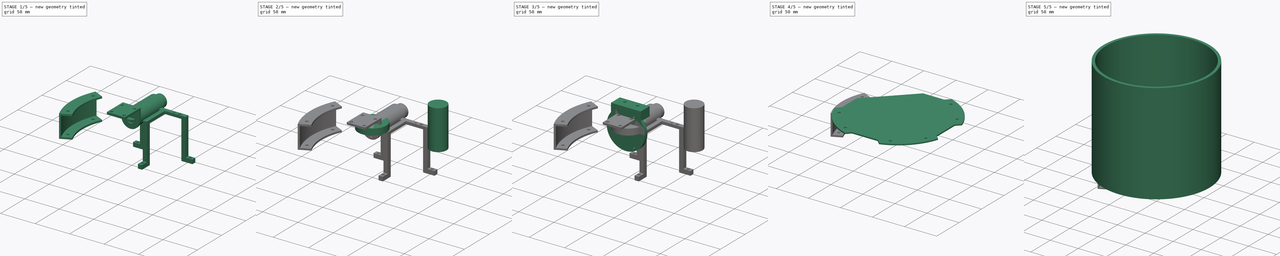
[diagram: build sequence overview — one tinted view per stage of 5, left to right]
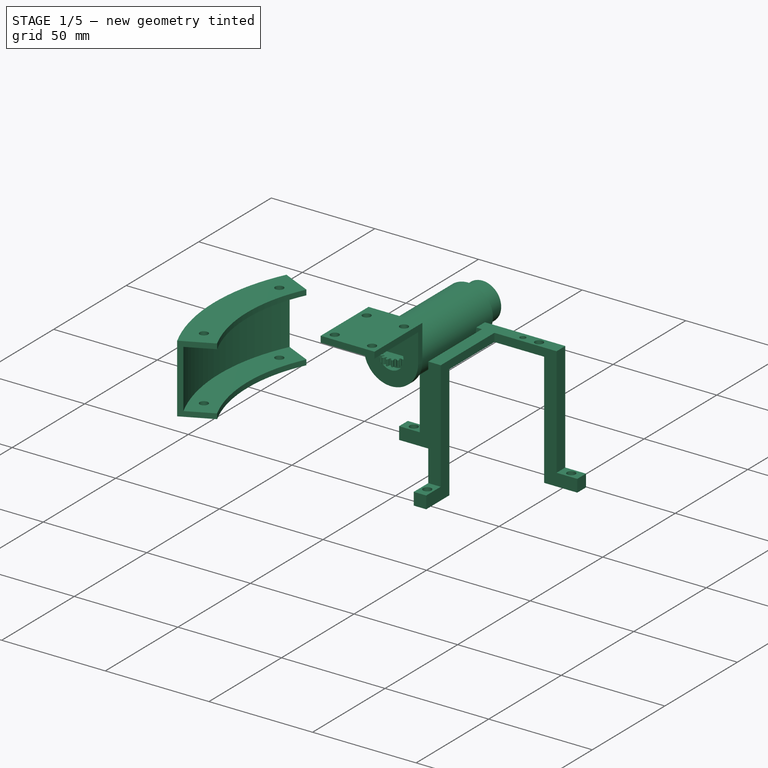
[diagram: stage 1 of 5 — iso view after this stage's code; geometry added in this stage tinted green]
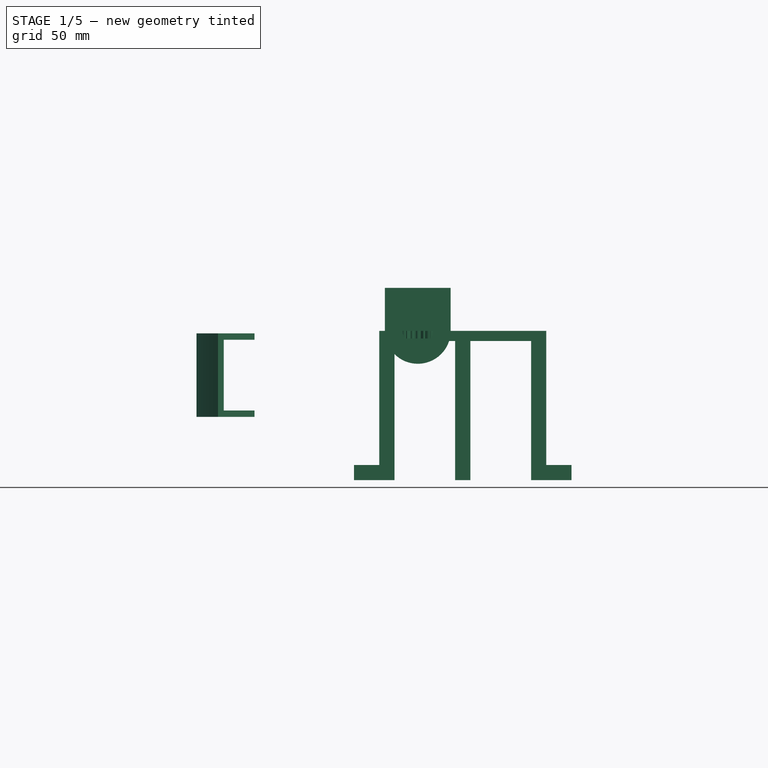
[diagram: stage 1 of 5 — front view after this stage's code; geometry added in this stage tinted green]
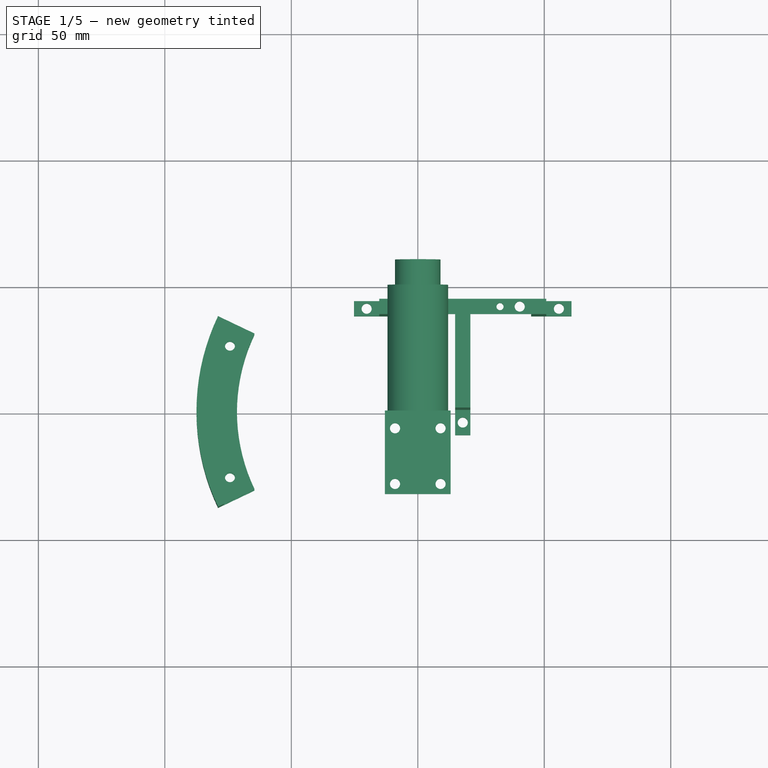
[diagram: stage 1 of 5 — top view after this stage's code; geometry added in this stage tinted green]
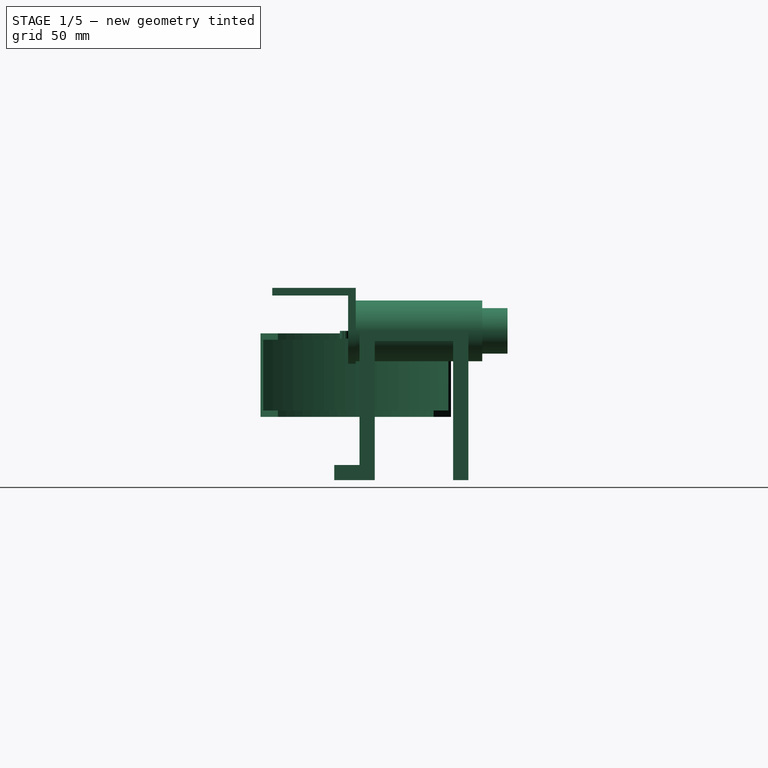
[diagram: stage 1 of 5 — right view after this stage's code; geometry added in this stage tinted green]
FCSTD DOCUMENT  (FreeCAD 0.21R33668 +7 (Git))
Label: SN6 model
License: All rights reserved
LicenseURL: https://en.wikipedia.org/wiki/All_rights_reserved
objects: Part::Feature×544, App::Part×139, Sketcher::SketchObject×92, PartDesign::Pad×68, PartDesign::Pocket×44, PartDesign::Body×41, PartDesign::SubShapeBinder×15, Part::Part2DObjectPython×11, PartDesign::PolarPattern×10, PartDesign::Fillet×5, PartDesign::Revolution×4, Part::Sphere×1, PartDesign::Mirrored×1, PartDesign::LinearPattern×1
note: 958 computed .brp shape members not serialized (recipe doc carries the construction recipe); baked Part::Feature solids carry a one-line shape summary decoded from their .brp

FEATURE [PartDesign::Revolution] Revolution
  Angle = 360
  Axis = (0,-2e-16,1)
  Base = (0,0,0)
  Placement = pos=(0,0,0) rot=(1,0,0;1.5708rad)
  Profile = -> Sketch005
  ReferenceAxis = -> Sketch005 [V_Axis]
FEATURE [Part::Feature] Part__Feature268  label="OmniBase_Predeterminado004"
  Placement = pos=(4.80373,-0.638646,40.5) rot=(0,0,1;0rad)
  shape: bbox 44 x 43.9 x 9 mm, 104 faces (baked)
FEATURE [Part::Feature] Part__Feature269  label="Roller_Predeterminado072"
  Placement = pos=(4.80373,20.3614,41.6192) rot=(0,0,1;0rad)
  shape: bbox 2.6 x 8.659 x 8.659 mm, 10 faces (baked)
FEATURE [Part::Feature] Part__Feature270  label="Roller_Predeterminado073"
  Placement = pos=(-2.3787,19.0949,41.6192) rot=(0,0,1;0.349066rad)
  shape: bbox 4.664 x 8.342 x 8.659 mm, 10 faces (baked)
FEATURE [Part::Feature] Part__Feature271  label="Roller_Predeterminado074"
  Placement = pos=(-8.69481,15.4483,41.6192) rot=(0,0,1;0.698132rad)
  shape: bbox 6.71 x 7.451 x 8.659 mm, 10 faces (baked)
FEATURE [Part::Feature] Part__Feature272  label="Roller_Predeterminado075"
  Placement = pos=(-13.3828,9.86135,41.6192) rot=(0,0,1;1.0472rad)
  shape: bbox 7.965 x 5.765 x 8.659 mm, 10 faces (baked)
FEATURE [Part::Feature] Part__Feature273  label="Roller_Predeterminado076"
  Placement = pos=(-15.8772,3.00797,41.6192) rot=(0,0,1;1.39626rad)
  shape: bbox 8.632 x 3.688 x 8.659 mm, 10 faces (baked)
FEATURE [Part::Feature] Part__Feature274  label="Roller_Predeterminado077"
  Placement = pos=(-15.8772,-4.28526,41.6192) rot=(0,0,1;1.74533rad)
  shape: bbox 8.632 x 3.688 x 8.659 mm, 10 faces (baked)
FEATURE [Part::Feature] Part__Feature275  label="Roller_Predeterminado078"
  Placement = pos=(-13.3828,-11.1386,41.6192) rot=(0,0,1;2.0944rad)
  shape: bbox 7.965 x 5.765 x 8.659 mm, 10 faces (baked)
FEATURE [Part::Feature] Part__Feature276  label="Roller_Predeterminado079"
  Placement = pos=(-8.69481,-16.7256,41.6192) rot=(0,0,1;2.44346rad)
  shape: bbox 6.71 x 7.451 x 8.659 mm, 10 faces (baked)
FEATURE [Part::Feature] Part__Feature277  label="Roller_Predeterminado080"
  Placement = pos=(-2.3787,-20.3722,41.6192) rot=(0,0,1;2.79253rad)
  shape: bbox 4.664 x 8.342 x 8.659 mm, 10 faces (baked)
FEATURE [Part::Feature] Part__Feature278  label="Roller_Predeterminado081"
  Placement = pos=(4.80373,-21.6386,41.6192) rot=(0,0,1;3.14159rad)
  shape: bbox 2.6 x 8.659 x 8.659 mm, 10 faces (baked)
FEATURE [Part::Feature] Part__Feature279  label="Roller_Predeterminado082"
  Placement = pos=(11.9862,-20.3722,41.6192) rot=(0,0,1;3.49066rad)
  shape: bbox 4.664 x 8.342 x 8.659 mm, 10 faces (baked)
FEATURE [Part::Feature] Part__Feature280  label="Roller_Predeterminado083"
  Placement = pos=(18.3023,-16.7256,41.6192) rot=(0,0,1;3.83972rad)
  shape: bbox 6.71 x 7.451 x 8.659 mm, 10 faces (baked)
FEATURE [Part::Feature] Part__Feature281  label="Roller_Predeterminado084"
  Placement = pos=(22.9903,-11.1386,41.6192) rot=(0,0,-1;2.0944rad)
  shape: bbox 7.965 x 5.765 x 8.659 mm, 10 faces (baked)
FEATURE [Part::Feature] Part__Feature282  label="Roller_Predeterminado085"
  Placement = pos=(25.4847,-4.28526,41.6192) rot=(0,0,-1;1.74533rad)
  shape: bbox 8.632 x 3.688 x 8.659 mm, 10 faces (baked)
FEATURE [Part::Feature] Part__Feature283  label="Roller_Predeterminado086"
  Placement = pos=(25.4847,3.00797,41.6192) rot=(0,0,-1;1.39626rad)
  shape: bbox 8.632 x 3.688 x 8.659 mm, 10 faces (baked)
FEATURE [Part::Feature] Part__Feature284  label="Roller_Predeterminado087"
  Placement = pos=(22.9903,9.86135,41.6192) rot=(0,0,-1;1.0472rad)
  shape: bbox 7.965 x 5.765 x 8.659 mm, 10 faces (baked)
FEATURE [Part::Feature] Part__Feature285  label="Roller_Predeterminado088"
  Placement = pos=(18.3023,15.4483,41.6192) rot=(0,0,-1;0.698132rad)
  shape: bbox 6.71 x 7.451 x 8.659 mm, 10 faces (baked)
FEATURE [Part::Feature] Part__Feature286  label="Roller_Predeterminado089"
  Placement = pos=(11.9862,19.0949,41.6192) rot=(0,0,-1;0.349066rad)
  shape: bbox 4.664 x 8.342 x 8.659 mm, 10 faces (baked)
FEATURE [Part::Feature] Part__Feature287  label="Nut_Predeterminado004"
  Placement = pos=(4.80373,-0.638646,43.5) rot=(0,0,1;1.0472rad)
  shape: bbox 13.86 x 12.93 x 2 mm, 24 faces (baked)
FEATURE [App::Part] OmniWheel054  label="OmniWheel 1"
  Group = -> [Part__Feature268,Part__Feature269,Part__Feature270,Part__Feature271,Part__Feature272,Part__Feature273,Part__Feature274,Part__Feature275,Part__Feature276,Part__Feature277,Part__Feature278,Part__Feature279,Part__Feature280,Part__Feature281,Part__Feature282,Part__Feature283,Part__Feature284,Part__Feature285,Part__Feature286,Part__Feature287]
  Origin = -> Origin019
  Placement = pos=(-27.2672,28.1897,-5.09081) rot=(0.357407,0.862856,0.357407;4.56541rad)
FEATURE [Part::Feature] Part__Feature288  label="OmniBase_Predeterminado005"
  Placement = pos=(4.80373,-0.638646,40.5) rot=(0,0,1;0rad)
  shape: bbox 44 x 43.9 x 9 mm, 104 faces (baked)
FEATURE [Part::Feature] Part__Feature289  label="Roller_Predeterminado090"
  Placement = pos=(4.80373,20.3614,41.6192) rot=(0,0,1;0rad)
  shape: bbox 2.6 x 8.659 x 8.659 mm, 10 faces (baked)
FEATURE [Part::Feature] Part__Feature290  label="Roller_Predeterminado091"
  Placement = pos=(-2.3787,19.0949,41.6192) rot=(0,0,1;0.349066rad)
  shape: bbox 4.664 x 8.342 x 8.659 mm, 10 faces (baked)
FEATURE [Part::Feature] Part__Feature291  label="Roller_Predeterminado092"
  Placement = pos=(-8.69481,15.4483,41.6192) rot=(0,0,1;0.698132rad)
  shape: bbox 6.71 x 7.451 x 8.659 mm, 10 faces (baked)
FEATURE [Part::Feature] Part__Feature292  label="Roller_Predeterminado093"
  Placement = pos=(-13.3828,9.86135,41.6192) rot=(0,0,1;1.0472rad)
  shape: bbox 7.965 x 5.765 x 8.659 mm, 10 faces (baked)
FEATURE [Part::Feature] Part__Feature293  label="Roller_Predeterminado094"
  Placement = pos=(-15.8772,3.00797,41.6192) rot=(0,0,1;1.39626rad)
  shape: bbox 8.632 x 3.688 x 8.659 mm, 10 faces (baked)
FEATURE [Part::Feature] Part__Feature294  label="Roller_Predeterminado095"
  Placement = pos=(-15.8772,-4.28526,41.6192) rot=(0,0,1;1.74533rad)
  shape: bbox 8.632 x 3.688 x 8.659 mm, 10 faces (baked)
FEATURE [Part::Feature] Part__Feature295  label="Roller_Predeterminado096"
  Placement = pos=(-13.3828,-11.1386,41.6192) rot=(0,0,1;2.0944rad)
  shape: bbox 7.965 x 5.765 x 8.659 mm, 10 faces (baked)
FEATURE [Part::Feature] Part__Feature296  label="Roller_Predeterminado097"
  Placement = pos=(-8.69481,-16.7256,41.6192) rot=(0,0,1;2.44346rad)
  shape: bbox 6.71 x 7.451 x 8.659 mm, 10 faces (baked)
FEATURE [Part::Feature] Part__Feature297  label="Roller_Predeterminado098"
  Placement = pos=(-2.3787,-20.3722,41.6192) rot=(0,0,1;2.79253rad)
  shape: bbox 4.664 x 8.342 x 8.659 mm, 10 faces (baked)
FEATURE [Part::Feature] Part__Feature298  label="Roller_Predeterminado099"
  Placement = pos=(4.80373,-21.6386,41.6192) rot=(0,0,1;3.14159rad)
  shape: bbox 2.6 x 8.659 x 8.659 mm, 10 faces (baked)
FEATURE [Part::Feature] Part__Feature299  label="Roller_Predeterminado100"
  Placement = pos=(11.9862,-20.3722,41.6192) rot=(0,0,1;3.49066rad)
  shape: bbox 4.664 x 8.342 x 8.659 mm, 10 faces (baked)
FEATURE [Part::Feature] Part__Feature300  label="Roller_Predeterminado101"
  Placement = pos=(18.3023,-16.7256,41.6192) rot=(0,0,1;3.83972rad)
  shape: bbox 6.71 x 7.451 x 8.659 mm, 10 faces (baked)
FEATURE [Part::Feature] Part__Feature301  label="Roller_Predeterminado102"
  Placement = pos=(22.9903,-11.1386,41.6192) rot=(0,0,-1;2.0944rad)
  shape: bbox 7.965 x 5.765 x 8.659 mm, 10 faces (baked)
FEATURE [Part::Feature] Part__Feature302  label="Roller_Predeterminado103"
  Placement = pos=(25.4847,-4.28526,41.6192) rot=(0,0,-1;1.74533rad)
  shape: bbox 8.632 x 3.688 x 8.659 mm, 10 faces (baked)
FEATURE [Part::Feature] Part__Feature303  label="Roller_Predeterminado104"
  Placement = pos=(25.4847,3.00797,41.6192) rot=(0,0,-1;1.39626rad)
  shape: bbox 8.632 x 3.688 x 8.659 mm, 10 faces (baked)
FEATURE [Part::Feature] Part__Feature304  label="Roller_Predeterminado105"
  Placement = pos=(22.9903,9.86135,41.6192) rot=(0,0,-1;1.0472rad)
  shape: bbox 7.965 x 5.765 x 8.659 mm, 10 faces (baked)
FEATURE [Part::Feature] Part__Feature305  label="Roller_Predeterminado106"
  Placement = pos=(18.3023,15.4483,41.6192) rot=(0,0,-1;0.698132rad)
  shape: bbox 6.71 x 7.451 x 8.659 mm, 10 faces (baked)
FEATURE [Part::Feature] Part__Feature306  label="Roller_Predeterminado107"
  Placement = pos=(11.9862,19.0949,41.6192) rot=(0,0,-1;0.349066rad)
  shape: bbox 4.664 x 8.342 x 8.659 mm, 10 faces (baked)
FEATURE [Part::Feature] Part__Feature307  label="Nut_Predeterminado005"
  Placement = pos=(4.80373,-0.638646,43.5) rot=(0,0,1;1.0472rad)
  shape: bbox 13.86 x 12.93 x 2 mm, 24 faces (baked)
FEATURE [App::Part] OmniWheel055  label="OmniWheel 3"
  Group = -> [Part__Feature288,Part__Feature289,Part__Feature290,Part__Feature291,Part__Feature292,Part__Feature293,Part__Feature294,Part__Feature295,Part__Feature296,Part__Feature297,Part__Feature298,Part__Feature299,Part__Feature300,Part__Feature301,Part__Feature302,Part__Feature303,Part__Feature304,Part__Feature305,Part__Feature306,Part__Feature307]
  Origin = -> Origin020
  Placement = pos=(23.8607,-27.9607,-2) rot=(1,1,0;1.5708rad)
FEATURE [Part::Feature] Part__Feature308  label="OmniBase_Predeterminado006"
  Placement = pos=(4.80373,-0.638646,40.5) rot=(0,0,1;0rad)
  shape: bbox 44 x 43.9 x 9 mm, 104 faces (baked)
FEATURE [Part::Feature] Part__Feature309  label="Roller_Predeterminado108"
  Placement = pos=(4.80373,20.3614,41.6192) rot=(0,0,1;0rad)
  shape: bbox 2.6 x 8.659 x 8.659 mm, 10 faces (baked)
FEATURE [Part::Feature] Part__Feature310  label="Roller_Predeterminado109"
  Placement = pos=(-2.3787,19.0949,41.6192) rot=(0,0,1;0.349066rad)
  shape: bbox 4.664 x 8.342 x 8.659 mm, 10 faces (baked)
FEATURE [Part::Feature] Part__Feature311  label="Roller_Predeterminado110"
  Placement = pos=(-8.69481,15.4483,41.6192) rot=(0,0,1;0.698132rad)
  shape: bbox 6.71 x 7.451 x 8.659 mm, 10 faces (baked)
FEATURE [Part::Feature] Part__Feature312  label="Roller_Predeterminado111"
  Placement = pos=(-13.3828,9.86135,41.6192) rot=(0,0,1;1.0472rad)
  shape: bbox 7.965 x 5.765 x 8.659 mm, 10 faces (baked)
FEATURE [Part::Feature] Part__Feature313  label="Roller_Predeterminado112"
  Placement = pos=(-15.8772,3.00797,41.6192) rot=(0,0,1;1.39626rad)
  shape: bbox 8.632 x 3.688 x 8.659 mm, 10 faces (baked)
FEATURE [Part::Feature] Part__Feature314  label="Roller_Predeterminado113"
  Placement = pos=(-15.8772,-4.28526,41.6192) rot=(0,0,1;1.74533rad)
  shape: bbox 8.632 x 3.688 x 8.659 mm, 10 faces (baked)
FEATURE [Part::Feature] Part__Feature315  label="Roller_Predeterminado114"
  Placement = pos=(-13.3828,-11.1386,41.6192) rot=(0,0,1;2.0944rad)
  shape: bbox 7.965 x 5.765 x 8.659 mm, 10 faces (baked)
FEATURE [Part::Feature] Part__Feature316  label="Roller_Predeterminado115"
  Placement = pos=(-8.69481,-16.7256,41.6192) rot=(0,0,1;2.44346rad)
  shape: bbox 6.71 x 7.451 x 8.659 mm, 10 faces (baked)
FEATURE [Part::Feature] Part__Feature317  label="Roller_Predeterminado116"
  Placement = pos=(-2.3787,-20.3722,41.6192) rot=(0,0,1;2.79253rad)
  shape: bbox 4.664 x 8.342 x 8.659 mm, 10 faces (baked)
FEATURE [Part::Feature] Part__Feature318  label="Roller_Predeterminado117"
  Placement = pos=(4.80373,-21.6386,41.6192) rot=(0,0,1;3.14159rad)
  shape: bbox 2.6 x 8.659 x 8.659 mm, 10 faces (baked)
FEATURE [Part::Feature] Part__Feature319  label="Roller_Predeterminado118"
  Placement = pos=(11.9862,-20.3722,41.6192) rot=(0,0,1;3.49066rad)
  shape: bbox 4.664 x 8.342 x 8.659 mm, 10 faces (baked)
FEATURE [Part::Feature] Part__Feature320  label="Roller_Predeterminado119"
  Placement = pos=(18.3023,-16.7256,41.6192) rot=(0,0,1;3.83972rad)
  shape: bbox 6.71 x 7.451 x 8.659 mm, 10 faces (baked)
FEATURE [Part::Feature] Part__Feature321  label="Roller_Predeterminado120"
  Placement = pos=(22.9903,-11.1386,41.6192) rot=(0,0,-1;2.0944rad)
  shape: bbox 7.965 x 5.765 x 8.659 mm, 10 faces (baked)
FEATURE [Part::Feature] Part__Feature322  label="Roller_Predeterminado121"
  Placement = pos=(25.4847,-4.28526,41.6192) rot=(0,0,-1;1.74533rad)
  shape: bbox 8.632 x 3.688 x 8.659 mm, 10 faces (baked)
FEATURE [Part::Feature] Part__Feature323  label="Roller_Predeterminado122"
  Placement = pos=(25.4847,3.00797,41.6192) rot=(0,0,-1;1.39626rad)
  shape: bbox 8.632 x 3.688 x 8.659 mm, 10 faces (baked)
FEATURE [Part::Feature] Part__Feature324  label="Roller_Predeterminado123"
  Placement = pos=(22.9903,9.86135,41.6192) rot=(0,0,-1;1.0472rad)
  shape: bbox 7.965 x 5.765 x 8.659 mm, 10 faces (baked)
FEATURE [Part::Feature] Part__Feature325  label="Roller_Predeterminado124"
  Placement = pos=(18.3023,15.4483,41.6192) rot=(0,0,-1;0.698132rad)
  shape: bbox 6.71 x 7.451 x 8.659 mm, 10 faces (baked)
FEATURE [Part::Feature] Part__Feature326  label="Roller_Predeterminado125"
  Placement = pos=(11.9862,19.0949,41.6192) rot=(0,0,-1;0.349066rad)
  shape: bbox 4.664 x 8.342 x 8.659 mm, 10 faces (baked)
FEATURE [Part::Feature] Part__Feature327  label="Nut_Predeterminado006"
  Placement = pos=(4.80373,-0.638646,43.5) rot=(0,0,1;1.0472rad)
  shape: bbox 13.86 x 12.93 x 2 mm, 24 faces (baked)
FEATURE [App::Part] OmniWheel056  label="OmniWheel 4"
  Group = -> [Part__Feature308,Part__Feature309,Part__Feature310,Part__Feature311,Part__Feature312,Part__Feature313,Part__Feature314,Part__Feature315,Part__Feature316,Part__Feature317,Part__Feature318,Part__Feature319,Part__Feature320,Part__Feature321,Part__Feature322,Part__Feature323,Part__Feature324,Part__Feature325,Part__Feature326,Part__Feature327]
  Origin = -> Origin021
  Placement = pos=(-30.4284,-25.0284,-9) rot=(1,-1,0;1.5708rad)
FEATURE [Sketcher::SketchObject] Sketch021
  FullyConstrained = true
  MapMode = 5
  Support = -> [XY_Plane023]
  sketch-geometry (2):
    g0: Circle CenterX=0 CenterY=0 CenterZ=0 NormalX=0 NormalY=0 NormalZ=1 AngleXU=0 Radius=22.5
    g1: Circle CenterX=0 CenterY=0 CenterZ=0 NormalX=0 NormalY=0 NormalZ=1 AngleXU=0 Radius=23.5
  constraints (4):
    c: Coincident(g0,g-1)
    c: Diameter(g0) = 45
    c: Coincident(g1,g0)
    c: Diameter(g1) = 47
FEATURE [Sketcher::SketchObject] Sketch022
  FullyConstrained = true
  MapMode = 5
  Placement = pos=(0,2.71e-14,122) rot=(0,0,1;3.14159rad)
  Support = -> [Revolution]
  sketch-geometry (1):
    g0: Circle CenterX=0 CenterY=0 CenterZ=0 NormalX=0 NormalY=0 NormalZ=1 AngleXU=0 Radius=50
  constraints (2):
    c: Coincident(g0,g-1)
    c: Diameter(g0) = 100
FEATURE [PartDesign::Pad] Pad005
  BaseFeature = -> Revolution
  Direction = (0,2e-16,1)
  Length = 1
  Length2 = 10
  Placement = pos=(0,0,0) rot=(1,0,0;1.5708rad)
  Profile = -> Sketch022
  ReferenceAxis = -> Sketch022 [N_Axis]
  Type = 0
FEATURE [PartDesign::Body] Body001  label="Mirror"
  Group = -> [Sketch005,Revolution,Sketch006,Sketch007,Sketch022,Pad005]
  Origin = -> Origin009
  Placement = pos=(0,0,1.7) rot=(0,0,1;0rad)
  Tip = -> Pad005
FEATURE [PartDesign::Pad] Pad006
  Direction = (0,0,1)
  Length = 57.4
  Length2 = 10
  Profile = -> Sketch021
  ReferenceAxis = -> Sketch021 [N_Axis]
  Reversed = true
  Type = 0
FEATURE [PartDesign::Body] Body006  label="Mirror protection"
  Group = -> [Sketch021,Pad006]
  Origin = -> Origin023
  Placement = pos=(0,0,123.5) rot=(0,0,1;0rad)
  Tip = -> Pad006
FEATURE [Sketcher::SketchObject] Sketch023
  FullyConstrained = true
  MapMode = 5
  Support = -> [XY_Plane024]
  sketch-geometry (2):
    g0: Circle CenterX=0 CenterY=0 CenterZ=0 NormalX=0 NormalY=0 NormalZ=1 AngleXU=0 Radius=19
    g1: Circle CenterX=0 CenterY=0 CenterZ=0 NormalX=0 NormalY=0 NormalZ=1 AngleXU=0 Radius=30
  constraints (4):
    c: Coincident(g0,g-1)
    c: Coincident(g1,g0)
    c: Diameter(g0) = 38
    c: Diameter(g1) = 60
FEATURE [PartDesign::Pad] Pad007
  Direction = (0,0,1)
  Length = 2
  Length2 = 10
  Profile = -> Sketch023
  ReferenceAxis = -> Sketch023 [N_Axis]
  Type = 0
FEATURE [Sketcher::SketchObject] Sketch065
  FullyConstrained = true
  MapMode = 5
  Support = -> [XY_Plane226]
  sketch-geometry (8):
    g0: LineSegment StartX=-15.22 StartY=44.5 StartZ=0 EndX=50.78 EndY=44.5 EndZ=0
    g1: LineSegment StartX=50.78 StartY=44.5 StartZ=0 EndX=50.78 EndY=38.5 EndZ=0
    g2: LineSegment StartX=-15.22 StartY=38.5 StartZ=0 EndX=-15.22 EndY=44.5 EndZ=0
    g3: LineSegment StartX=-15.22 StartY=38.5 StartZ=0 EndX=14.78 EndY=38.5 EndZ=0
    g4: LineSegment StartX=14.78 StartY=38.5 StartZ=0 EndX=14.78 EndY=1.5 EndZ=0
    g5: LineSegment StartX=14.78 StartY=1.5 StartZ=0 EndX=20.78 EndY=1.5 EndZ=0
    g6: LineSegment StartX=20.78 StartY=1.5 StartZ=0 EndX=20.78 EndY=38.5 EndZ=0
    g7: LineSegment StartX=20.78 StartY=38.5 StartZ=0 EndX=50.78 EndY=38.5 EndZ=0
  constraints (24):
    c: Coincident(g0,g1)
    c: Coincident(g2,g0)
    c: Horizontal(g0)
    c: Vertical(g1)
    c: Vertical(g2)
    c: DistanceX(g0,g0) = 66
    c: DistanceY(g1,g1) = 6
    c: DistanceX(g2,g-1) = 15.22
    c: DistanceY(g-1,g2) = 38.5
    c: Coincident(g3,g2)
    c: Horizontal(g3)
    c: Coincident(g4,g3)
    c: Vertical(g4)
    c: Coincident(g5,g4)
    c: Horizontal(g5)
    c: Coincident(g6,g5)
    c: Vertical(g6)
    c: Coincident(g7,g6)
    c: Coincident(g7,g1)
    c: Horizontal(g7)
    c: Equal(g3,g7)
    c: DistanceX(g5,g5) = 6
    c: DistanceY(g6,g6) = 37
    c: Horizontal(g3,g6)
FEATURE [PartDesign::Pad] Pad044
  Direction = (0,0,1)
  Length = 4
  Length2 = 10
  Profile = -> Sketch065
  ReferenceAxis = -> Sketch065 [N_Axis]
  Reversed = true
  Type = 0
FEATURE [PartDesign::Body] Body033  label="Moteur 3"
  Group = -> [Sketch081,Pad057]
  Origin = -> Origin235
  Placement = pos=(10.5208,-9.52083,86) rot=(0.357407,0.862856,-0.357407;1.71777rad)
  Tip = -> Pad057
FEATURE [Sketcher::SketchObject] Sketch082
  FullyConstrained = true
  MapMode = 5
  Placement = pos=(0,0,0) rot=(1,0,0;1.5708rad)
  Support = -> [XZ_Plane237]
  sketch-geometry (1):
    g0: Circle CenterX=0 CenterY=0 CenterZ=0 NormalX=0 NormalY=0 NormalZ=1 AngleXU=0 Radius=12
  constraints (2):
    c: Coincident(g0,g-1)
    c: Diameter(g0) = 24
FEATURE [PartDesign::Pad] Pad058
  Direction = (0,-1,-2e-16)
  Length = 50
  Length2 = 10
  Placement = pos=(0,0,0) rot=(1,0,0;1.5708rad)
  Profile = -> Sketch082
  ReferenceAxis = -> Sketch082 [N_Axis]
  Reversed = true
  Type = 0
FEATURE [PartDesign::Body] Body034  label="Dribbler motor"
  Group = -> [Sketch082,Pad058]
  Origin = -> Origin237
  Placement = pos=(-48.5,-34,17.9) rot=(0,-1,0;1.5708rad)
  Tip = -> Pad058
FEATURE [Sketcher::SketchObject] Sketch083
  FullyConstrained = true
  MapMode = 5
  Placement = pos=(0,0,0) rot=(1,0,0;1.5708rad)
  Support = -> [XZ_Plane238]
  sketch-geometry (1):
    g0: Circle CenterX=0 CenterY=0 CenterZ=0 NormalX=0 NormalY=0 NormalZ=1 AngleXU=0 Radius=9
  constraints (2):
    c: Coincident(g0,g-1)
    c: Diameter(g0) = 18
FEATURE [PartDesign::Pad] Pad059
  Direction = (0,-1,-2e-16)
  Length = 60
  Length2 = 10
  Placement = pos=(0,0,0) rot=(1,0,0;1.5708rad)
  Profile = -> Sketch083
  ReferenceAxis = -> Sketch083 [N_Axis]
  Reversed = true
  Type = 0
FEATURE [PartDesign::Body] Body035  label="Dribbler roll"
  Group = -> [Sketch083,Pad059]
  Origin = -> Origin238
  Placement = pos=(-75,-31.5,5) rot=(0,1,0;3.14159rad)
  Tip = -> Pad059
FEATURE [Part::Part2DObjectPython] InvoluteGear009  # Draft 2D object (typed FeaturePython)
  AddendumCoefficient = 1
  DedendumCoefficient = 1.25
  ExternalGear = true
  HighPrecision = true
  Modules = 0.6
  NumberOfTeeth = 16
  PressureAngle = 20
  ProfileShiftCoefficient = 0
  RootFilletCoefficient = 0.38
FEATURE [PartDesign::Pad] Pad060
  Direction = (0,0,1)
  Length = 3
  Length2 = 10
  Profile = -> InvoluteGear009
  ReferenceAxis = -> InvoluteGear009 [N_Axis]
  Reversed = true
  Type = 0
FEATURE [PartDesign::Body] Body036  label="Dribbler gear 1"
  Group = -> [InvoluteGear009,Pad060]
  Origin = -> Origin239
  Placement = pos=(-75,28.5,5) rot=(1,0,0;1.5708rad)
  Tip = -> Pad060
FEATURE [Part::Part2DObjectPython] InvoluteGear010  # Draft 2D object (typed FeaturePython)
  AddendumCoefficient = 1
  DedendumCoefficient = 1.25
  ExternalGear = true
  HighPrecision = true
  Modules = 0.7
  NumberOfTeeth = 16
  PressureAngle = 20
  ProfileShiftCoefficient = 0
  RootFilletCoefficient = 0.38
FEATURE [PartDesign::Pad] Pad061
  Direction = (0,0,1)
  Length = 3
  Length2 = 10
  Profile = -> InvoluteGear010
  ReferenceAxis = -> InvoluteGear010 [N_Axis]
  Reversed = true
  Type = 0
FEATURE [PartDesign::Body] Body040  label="Moteur support 3"
  Group = -> [Sketch092,Pad066,Sketch093,Pad067,Sketch094,Pocket034,Sketch095,Pocket035,PolarPattern014]
  Origin = -> Origin243
  Placement = pos=(52.2201,-51.2201,-7) rot=(0,0,1;3.92699rad)
  Tip = -> PolarPattern014
FEATURE [App::Part] Part007  label="Motor assembly 3"
  Group = -> [Part__Feature330,Body018,Body021,OmniWheel055,Body033,Body040]
  Origin = -> Origin040
  Placement = pos=(1.5,-2.5,0) rot=(0,0,1;6.19592rad)
FEATURE [Sketcher::SketchObject] Sketch096
  FullyConstrained = true
  MapMode = 5
  Placement = pos=(0,0,0) rot=(1,0,0;1.5708rad)
  Support = -> [XZ_Plane244]
  sketch-geometry (5):
    g0: Circle CenterX=0 CenterY=0 CenterZ=0 NormalX=0 NormalY=0 NormalZ=1 AngleXU=0 Radius=6
    g1: LineSegment StartX=-13 StartY=17 StartZ=0 EndX=13 EndY=17 EndZ=0
    g2: LineSegment StartX=-13 StartY=17 StartZ=0 EndX=-13 EndY=0 EndZ=0
    g3: LineSegment StartX=13 StartY=17 StartZ=0 EndX=13 EndY=-3.6e-15 EndZ=0
    g4: ArcOfCircle CenterX=0 CenterY=0 CenterZ=0 NormalX=0 NormalY=0 NormalZ=1 AngleXU=0 Radius=13 StartAngle=3.14159 EndAngle=6.28319
  constraints (13):
    c: Coincident(g0,g-1)
    c: Diameter(g0) = 12
    c: DistanceX(g1,g1) = 26
    c: Symmetric(g1,g1,g-2)
    c: DistanceY(g0,g1) = 17
    c: Coincident(g2,g1)
    c: PointOnObject(g2,g-1)
    c: Vertical(g2)
    c: Coincident(g3,g1)
    c: PointOnObject(g3,g-1)
    c: Coincident(g4,g0)
    c: Coincident(g4,g2)
    c: Coincident(g4,g3)
FEATURE [PartDesign::Pad] Pad068
  Direction = (0,-1,2e-16)
  Length = 3
  Length2 = 10
  Placement = pos=(0,0,0) rot=(1,0,0;1.5708rad)
  Profile = -> Sketch096
  ReferenceAxis = -> Sketch096 [N_Axis]
  Type = 0
FEATURE [PartDesign::Body] Body046  label="Kicker plate"
  Group = -> [Sketch109,Pad076]
  Origin = -> Origin251
  Placement = pos=(-69,0,-2) rot=(0,0,1;0rad)
  Tip = -> Pad076
FEATURE [Sketcher::SketchObject] Sketch114
  ExternalGeometry = -> [Pad044]
  FullyConstrained = true
  MapMode = 5
  Placement = pos=(0,0,-4) rot=(1,0,0;3.14159rad)
  Support = -> [Pad044]
  sketch-geometry (12):
    g0: LineSegment StartX=-15.22 StartY=-44.5 StartZ=0 EndX=-9.22 EndY=-44.5 EndZ=0
    g1: LineSegment StartX=-9.22 StartY=-44.5 StartZ=0 EndX=-9.22 EndY=-38.5 EndZ=0
    g2: LineSegment StartX=-9.22 StartY=-38.5 StartZ=0 EndX=-15.22 EndY=-38.5 EndZ=0
    g3: LineSegment StartX=-15.22 StartY=-38.5 StartZ=0 EndX=-15.22 EndY=-44.5 EndZ=0
    g4: LineSegment StartX=14.78 StartY=-1.5 StartZ=0 EndX=20.78 EndY=-1.5 EndZ=0
    g5: LineSegment StartX=20.78 StartY=-1.5 StartZ=0 EndX=20.78 EndY=-7.5 EndZ=0
    g6: LineSegment StartX=20.78 StartY=-7.5 StartZ=0 EndX=14.78 EndY=-7.5 EndZ=0
    g7: LineSegment StartX=14.78 StartY=-7.5 StartZ=0 EndX=14.78 EndY=-1.5 EndZ=0
    g8: LineSegment StartX=50.78 StartY=-38.5 StartZ=0 EndX=44.78 EndY=-38.5 EndZ=0
    g9: LineSegment StartX=44.78 StartY=-38.5 StartZ=0 EndX=44.78 EndY=-44.5 EndZ=0
    g10: LineSegment StartX=44.78 StartY=-44.5 StartZ=0 EndX=50.78 EndY=-44.5 EndZ=0
    g11: LineSegment StartX=50.78 StartY=-44.5 StartZ=0 EndX=50.78 EndY=-38.5 EndZ=0
  constraints (30):
    c: Coincident(g0,g1)
    c: Coincident(g1,g2)
    c: Coincident(g2,g3)
    c: Coincident(g3,g0)
    c: Horizontal(g0)
    c: Horizontal(g2)
    c: Vertical(g1)
    c: Coincident(g0,g-4)
    c: Coincident(g4,g5)
    c: Coincident(g5,g6)
    c: Coincident(g6,g7)
    c: Coincident(g7,g4)
    c: Horizontal(g6)
    c: Vertical(g5)
    c: Vertical(g7)
    c: Coincident(g4,g-3)
    c: Coincident(g8,g9)
    c: Coincident(g9,g10)
    c: Coincident(g10,g11)
    c: Coincident(g11,g8)
    c: Horizontal(g8)
    c: Horizontal(g10)
    c: Vertical(g9)
    c: Coincident(g8,g-5)
    c: Coincident(g2,g-4)
    c: Coincident(g4,g-3)
    c: Coincident(g10,g-5)
    c: Equal(g6,g7)
    c: Equal(g0,g3)
    c: Equal(g10,g11)
FEATURE [PartDesign::Pad] Pad079
  BaseFeature = -> Pad044
  Direction = (0,0,-1)
  Length = 55
  Length2 = 10
  Profile = -> Sketch114
  ReferenceAxis = -> Sketch114 [N_Axis]
  Type = 0
FEATURE [Sketcher::SketchObject] Sketch115
  ExternalGeometry = -> [Pad079]
  FullyConstrained = true
  MapMode = 5
  Placement = pos=(-15.22,0,0) rot=(0.57735,-0.57735,-0.57735;2.0944rad)
  Support = -> [Pad079]
  sketch-geometry (4):
    g0: LineSegment StartX=-44.5 StartY=-59 StartZ=0 EndX=-38.5 EndY=-59 EndZ=0
    g1: LineSegment StartX=-38.5 StartY=-59 StartZ=0 EndX=-38.5 EndY=-53 EndZ=0
    g2: LineSegment StartX=-38.5 StartY=-53 StartZ=0 EndX=-44.5 EndY=-53 EndZ=0
    g3: LineSegment StartX=-44.5 StartY=-53 StartZ=0 EndX=-44.5 EndY=-59 EndZ=0
  constraints (10):
    c: Coincident(g0,g1)
    c: Coincident(g1,g2)
    c: Coincident(g2,g3)
    c: Coincident(g3,g0)
    c: Horizontal(g2)
    c: Vertical(g1)
    c: Vertical(g3)
    c: Coincident(g0,g-3)
    c: Coincident(g0,g-3)
    c: Equal(g1,g0)
FEATURE [PartDesign::Pad] Pad080
  BaseFeature = -> Pad079
  Direction = (-1,0,0)
  Length = 10
  Length2 = 10
  Profile = -> Sketch115
  ReferenceAxis = -> Sketch115 [N_Axis]
  Type = 0
FEATURE [Sketcher::SketchObject] Sketch116
  ExternalGeometry = -> [Pad080]
  FullyConstrained = true
  MapMode = 5
  Placement = pos=(50.78,0,0) rot=(0.57735,0.57735,0.57735;2.0944rad)
  Support = -> [Pad080]
  sketch-geometry (4):
    g0: LineSegment StartX=38.5 StartY=-59 StartZ=0 EndX=44.5 EndY=-59 EndZ=0
    g1: LineSegment StartX=44.5 StartY=-59 StartZ=0 EndX=44.5 EndY=-53 EndZ=0
    g2: LineSegment StartX=44.5 StartY=-53 StartZ=0 EndX=38.5 EndY=-53 EndZ=0
    g3: LineSegment StartX=38.5 StartY=-53 StartZ=0 EndX=38.5 EndY=-59 EndZ=0
  constraints (10):
    c: Coincident(g0,g1)
    c: Coincident(g1,g2)
    c: Coincident(g2,g3)
    c: Coincident(g3,g0)
    c: Horizontal(g2)
    c: Vertical(g1)
    c: Vertical(g3)
    c: Coincident(g0,g-3)
    c: Coincident(g0,g-3)
    c: Equal(g0,g1)
FEATURE [PartDesign::Pad] Pad081
  BaseFeature = -> Pad080
  Direction = (1,0,0)
  Length = 10
  Length2 = 10
  Profile = -> Sketch116
  ReferenceAxis = -> Sketch116 [N_Axis]
  Type = 0
FEATURE [Sketcher::SketchObject] Sketch117
  ExternalGeometry = -> [Pad081]
  FullyConstrained = true
  MapMode = 5
  Placement = pos=(0,1.5,0) rot=(1,0,0;1.5708rad)
  Support = -> [Pad081]
  sketch-geometry (4):
    g0: LineSegment StartX=14.78 StartY=-59 StartZ=0 EndX=20.78 EndY=-59 EndZ=0
    g1: LineSegment StartX=20.78 StartY=-59 StartZ=0 EndX=20.78 EndY=-53 EndZ=0
    g2: LineSegment StartX=20.78 StartY=-53 StartZ=0 EndX=14.78 EndY=-53 EndZ=0
    g3: LineSegment StartX=14.78 StartY=-53 StartZ=0 EndX=14.78 EndY=-59 EndZ=0
  constraints (10):
    c: Coincident(g0,g1)
    c: Coincident(g1,g2)
    c: Coincident(g2,g3)
    c: Coincident(g3,g0)
    c: Horizontal(g2)
    c: Vertical(g1)
    c: Vertical(g3)
    c: Coincident(g0,g-3)
    c: Coincident(g0,g-3)
    c: Equal(g0,g1)
FEATURE [PartDesign::Pad] Pad082
  BaseFeature = -> Pad081
  Direction = (0,-1,2e-16)
  Length = 10
  Length2 = 10
  Profile = -> Sketch117
  ReferenceAxis = -> Sketch117 [N_Axis]
  Type = 0
FEATURE [Sketcher::SketchObject] Sketch118
  ExternalGeometry = -> [Pad082]
  FullyConstrained = true
  MapMode = 5
  Placement = pos=(0,-1.17e-14,-53) rot=(0,0,1;0rad)
  Support = -> [Pad082]
  sketch-geometry (3):
    g0: Circle CenterX=-20.22 CenterY=41.5 CenterZ=0 NormalX=0 NormalY=0 NormalZ=1 AngleXU=0 Radius=2
    g1: Circle CenterX=55.78 CenterY=41.5 CenterZ=0 NormalX=0 NormalY=0 NormalZ=1 AngleXU=0 Radius=2
    g2: Circle CenterX=17.78 CenterY=-3.5 CenterZ=0 NormalX=0 NormalY=0 NormalZ=1 AngleXU=0 Radius=2
  constraints (9):
    c: DistanceX(g-3,g0) = 5
    c: DistanceY(g-3,g0) = 3
    c: Diameter(g0) = 4
    c: Diameter(g1) = 4
    c: Diameter(g2) = 4
    c: DistanceX(g1,g-4) = 5
    c: DistanceY(g-4,g1) = 3
    c: DistanceY(g-5,g2) = 5
    c: DistanceX(g2,g-5) = 3
FEATURE [PartDesign::Pocket] Pocket046
  BaseFeature = -> Pad082
  Direction = (0,-2e-16,-1)
  Length = 5
  Length2 = 5
  Profile = -> Sketch118
  ReferenceAxis = -> Sketch118 [N_Axis]
  Type = 1
FEATURE [PartDesign::Body] Body049  label="Kicker OTS"
  Group = -> [Sketch119,Pad083,Sketch120,Pad084]
  Origin = -> Origin254
  Placement = pos=(-1,0,-15) rot=(0,0,1;0rad)
  Tip = -> Pad084
FEATURE [App::Part] Part013  label="Kicker"
  Group = -> [Body045,Body046,Body049]
  Origin = -> Origin249
  Placement = pos=(0,-2.9e-15,-23) rot=(1,0,0;3.14159rad)
FEATURE [Sketcher::SketchObject] Sketch121
  FullyConstrained = true
  MapMode = 5
  Placement = pos=(0,0,0) rot=(1,0,0;1.5708rad)
  Support = -> [XZ_Plane255]
  sketch-geometry (5):
    g0: Circle CenterX=0 CenterY=0 CenterZ=0 NormalX=0 NormalY=0 NormalZ=1 AngleXU=0 Radius=6
    g1: LineSegment StartX=-13 StartY=17 StartZ=0 EndX=13 EndY=17 EndZ=0
    g2: LineSegment StartX=-13 StartY=17 StartZ=0 EndX=-13 EndY=0 EndZ=0
    g3: LineSegment StartX=13 StartY=17 StartZ=0 EndX=13 EndY=-3.6e-15 EndZ=0
    g4: ArcOfCircle CenterX=0 CenterY=0 CenterZ=0 NormalX=0 NormalY=0 NormalZ=1 AngleXU=0 Radius=13 StartAngle=3.14159 EndAngle=6.28319
  constraints (13):
    c: Coincident(g0,g-1)
    c: Diameter(g0) = 12
    c: DistanceX(g1,g1) = 26
    c: Symmetric(g1,g1,g-2)
    c: DistanceY(g0,g1) = 17
    c: Coincident(g2,g1)
    c: PointOnObject(g2,g-1)
    c: Vertical(g2)
    c: Coincident(g3,g1)
    c: PointOnObject(g3,g-1)
    c: Coincident(g4,g0)
    c: Coincident(g4,g2)
    c: Coincident(g4,g3)
FEATURE [PartDesign::Pad] Pad085
  Direction = (0,-1,2e-16)
  Length = 3
  Length2 = 10
  Placement = pos=(0,0,0) rot=(1,0,0;1.5708rad)
  Profile = -> Sketch121
  ReferenceAxis = -> Sketch121 [N_Axis]
  Type = 0
FEATURE [Sketcher::SketchObject] Sketch122
  ExternalGeometry = -> [Pad085]
  FullyConstrained = true
  MapMode = 5
  Placement = pos=(0,-3,1.3e-15) rot=(1,0,0;1.5708rad)
  Support = -> [Pad085]
  sketch-geometry (4):
    g0: LineSegment StartX=-13 StartY=17 StartZ=0 EndX=-13 EndY=14 EndZ=0
    g1: LineSegment StartX=-13 StartY=14 StartZ=0 EndX=13 EndY=14 EndZ=0
    g2: LineSegment StartX=13 StartY=14 StartZ=0 EndX=13 EndY=17 EndZ=0
    g3: LineSegment StartX=13 StartY=17 StartZ=0 EndX=-13 EndY=17 EndZ=0
  constraints (10):
    c: Coincident(g0,g-3)
    c: Vertical(g0)
    c: Coincident(g1,g0)
    c: Horizontal(g1)
    c: Coincident(g2,g1)
    c: Coincident(g2,g-3)
    c: Vertical(g2)
    c: Coincident(g3,g2)
    c: Coincident(g3,g0)
    c: DistanceY(g0,g0) = 3
FEATURE [PartDesign::Pad] Pad086
  BaseFeature = -> Pad085
  Direction = (0,-1,2e-16)
  Length = 30
  Length2 = 10
  Placement = pos=(0,0,0) rot=(1,0,0;1.5708rad)
  Profile = -> Sketch122
  ReferenceAxis = -> Sketch122 [N_Axis]
  Type = 0
FEATURE [Sketcher::SketchObject] Sketch123
  ExternalGeometry = -> [Pad086]
  FullyConstrained = true
  MapMode = 5
  Placement = pos=(2.4e-15,1.13e-14,17) rot=(0,0,1;3.14159rad)
  Support = -> [Pad086]
  sketch-geometry (4):
    g0: Circle CenterX=-9 CenterY=7 CenterZ=0 NormalX=0 NormalY=0 NormalZ=1 AngleXU=0 Radius=2
    g1: Circle CenterX=9 CenterY=7 CenterZ=0 NormalX=0 NormalY=0 NormalZ=1 AngleXU=0 Radius=2
    g2: Circle CenterX=-9 CenterY=29 CenterZ=0 NormalX=0 NormalY=0 NormalZ=1 AngleXU=0 Radius=2
    g3: Circle CenterX=9 CenterY=29 CenterZ=0 NormalX=0 NormalY=0 NormalZ=1 AngleXU=0 Radius=2
  constraints (10):
    c: Diameter(g2) = 4
    c: Diameter(g3) = 4
    c: Diameter(g1) = 4
    c: Diameter(g0) = 4
    c: Symmetric(g2,g3,g-2)
    c: Symmetric(g0,g1,g-2)
    c: Vertical(g2,g0)
    c: DistanceX(g-4,g2) = 4
    c: DistanceY(g2,g-4) = 4
    c: DistanceY(g-4,g0) = 4
FEATURE [PartDesign::Pocket] Pocket048
  BaseFeature = -> Pad086
  Direction = (-1e-16,-2e-16,-1)
  Length = 5
  Length2 = 5
  Placement = pos=(0,0,0) rot=(1,0,0;1.5708rad)
  Profile = -> Sketch123
  ReferenceAxis = -> Sketch123 [N_Axis]
  Type = 1
FEATURE [Sketcher::SketchObject] Sketch124
  FullyConstrained = true
  MapMode = 5
  Placement = pos=(0,0,0) rot=(-1,0,0;1.5708rad)
  Support = -> [Pocket048]
  sketch-geometry (1):
    g0: Circle CenterX=0 CenterY=9.5 CenterZ=0 NormalX=0 NormalY=0 NormalZ=1 AngleXU=0 Radius=1
  constraints (3):
    c: PointOnObject(g0,g-2)
    c: Diameter(g0) = 2
    c: DistanceY(g-1,g0) = 9.5
FEATURE [PartDesign::Pocket] Pocket049
  BaseFeature = -> Pocket048
  Direction = (0,-1,2e-16)
  Length = 5
  Length2 = 5
  Placement = pos=(0,0,0) rot=(1,0,0;1.5708rad)
  Profile = -> Sketch124
  ReferenceAxis = -> Sketch124 [N_Axis]
  Type = 1
FEATURE [PartDesign::PolarPattern] PolarPattern018
  Angle = 360
  Axis = -> Sketch124 [N_Axis]
  BaseFeature = -> Pocket049
  Occurrences = 4
  Originals = -> [Pocket049]
  Placement = pos=(0,0,0) rot=(1,0,0;1.5708rad)
FEATURE [PartDesign::SubShapeBinder] Binder010
  BindCopyOnChange = 0
  BindMode = 0
  ClaimChildren = false
  Context = -> openmv4_h7 [Body025.Binder010.]
  Fuse = false
  MakeFace = true
  OffsetFill = false
  OffsetIntersection = false
  OffsetJoinType = 0
  OffsetOpenResult = false
  PartialLoad = false
  Relative = true
  Support = -> [openmv4_h7_base________________[Part__Feature.Edge64,Part__Feature.Edge872,Part__Feature.Edge120,Part__Feature.Edge886]]
  _Version = 2
FEATURE [PartDesign::Pocket] Pocket052
  BaseFeature = -> Pocket046
  Direction = (0,0,-1)
  Length = 5
  Length2 = 5
  Profile = -> Binder010
  Type = 1
FEATURE [Sketcher::SketchObject] Sketch125
  FullyConstrained = false
  MapMode = 5
  Placement = pos=(0,0,2) rot=(0,0,1;0rad)
  sketch-geometry (1):
    g0: Circle CenterX=-22.5 CenterY=-5.2 CenterZ=0 NormalX=0 NormalY=0 NormalZ=1 AngleXU=0 Radius=2
  constraints (1):
    c: Diameter(g0) = 4
FEATURE [PartDesign::Pocket] Pocket053
  BaseFeature = -> Pad007
  Direction = (0,0,-1)
  Length = 5
  Length2 = 5
  Profile = -> Sketch125
  ReferenceAxis = -> Sketch125 [N_Axis]
  Type = 1
FEATURE [PartDesign::Mirrored] Mirrored
  BaseFeature = -> Pocket053
  MirrorPlane = -> Sketch125 [V_Axis]
  Originals = -> [Pocket053]
FEATURE [PartDesign::Body] Body007  label="Mirror base"
  Group = -> [Sketch023,Pad007,Sketch125,Pocket053,Mirrored]
  Origin = -> Origin024
  Placement = pos=(0,0,64) rot=(0,0,1;0rad)
  Tip = -> Mirrored
FEATURE [App::Part] Part001  label="Mirror assembly"
  Group = -> [Body007,Body001,Body006]
  Origin = -> Origin025
  Placement = pos=(0,0,10) rot=(0,0,1;4.71239rad)
FEATURE [PartDesign::SubShapeBinder] Binder011
  BindCopyOnChange = 0
  BindMode = 0
  ClaimChildren = false
  Context = -> openmv4_h7 [Body025.Binder011.]
  Fuse = false
  MakeFace = true
  OffsetFill = false
  OffsetIntersection = false
  OffsetJoinType = 0
  OffsetOpenResult = false
  PartialLoad = false
  Relative = true
  Support = -> [Part001[Body007.Pocket053.Sketch125.]]
  _Version = 2
FEATURE [PartDesign::Pocket] Pocket054
  BaseFeature = -> Pocket052
  Direction = (0,0,-1)
  Length = 5
  Length2 = 5
  Profile = -> Binder011
  Type = 1
FEATURE [PartDesign::LinearPattern] LinearPattern
  BaseFeature = -> Pocket054
  Direction = -> X_Axis226
  Length = 45
  Occurrences = 2
  Originals = -> [Pocket054]
  Reversed = true
FEATURE [PartDesign::Body] Body044  label="Lower plate"
  Group = -> [Sketch102,Pad070,Sketch103,Pocket041,PolarPattern016,Sketch104,Pocket042,Binder013,Pocket094,PolarPattern020]
  Origin = -> Origin248
  Placement = pos=(0,0,-36) rot=(0,0,1;0.785398rad)
  Tip = -> PolarPattern020
FEATURE [PartDesign::SubShapeBinder] Binder026
  BindCopyOnChange = 0
  BindMode = 0
  ClaimChildren = false
  Context = -> Part012 [Body054.Binder026.]
  Fuse = false
  MakeFace = true
  OffsetFill = false
  OffsetIntersection = false
  OffsetJoinType = 0
  OffsetOpenResult = false
  PartialLoad = false
  Relative = true
  _Version = 2
FEATURE [Sketcher::SketchObject] Sketch134
  FullyConstrained = true
  MapMode = 5
  Placement = pos=(0,0,0) rot=(1,0,0;1.5708rad)
  Support = -> [XZ_Plane268]
  sketch-geometry (8):
    g0: LineSegment StartX=-87.5 StartY=-1 StartZ=0 EndX=-71.5 EndY=-1 EndZ=0
    g1: LineSegment StartX=-71.5 StartY=-34 StartZ=0 EndX=-87.5 EndY=-34 EndZ=0
    g2: LineSegment StartX=-87.5 StartY=-34 StartZ=0 EndX=-87.5 EndY=-1 EndZ=0
    g3: LineSegment StartX=-71.5 StartY=-1 StartZ=0 EndX=-71.5 EndY=-3.5 EndZ=0
    g4: LineSegment StartX=-71.5 StartY=-3.5 StartZ=0 EndX=-85 EndY=-3.5 EndZ=0
    g5: LineSegment StartX=-85 StartY=-3.5 StartZ=0 EndX=-85 EndY=-31.5 EndZ=0
    g6: LineSegment StartX=-85 StartY=-31.5 StartZ=0 EndX=-71.5 EndY=-31.5 EndZ=0
    g7: LineSegment StartX=-71.5 StartY=-31.5 StartZ=0 EndX=-71.5 EndY=-34 EndZ=0
  constraints (24):
    c: Coincident(g1,g2)
    c: Coincident(g2,g0)
    c: Horizontal(g0)
    c: Horizontal(g1)
    c: Vertical(g2)
    c: DistanceY(g1,g0) = 33
    c: DistanceX(g1,g1) = 16
    c: DistanceX(g0,g-1) = 87.5
    c: DistanceY(g1,g-1) = 34
    c: Equal(g1,g0)
    c: Coincident(g3,g0)
    c: Vertical(g3)
    c: Coincident(g4,g3)
    c: Horizontal(g4)
    c: Coincident(g5,g4)
    c: Vertical(g5)
    c: Coincident(g6,g5)
    c: Horizontal(g6)
    c: Coincident(g7,g6)
    c: Coincident(g7,g1)
    c: Vertical(g7)
    c: Equal(g3,g7)
    c: DistanceY(g3,g3) = 2.5
    c: DistanceX(g0,g4) = 2.5
FEATURE [PartDesign::Revolution] Revolution006
  Angle = 51
  Axis = (1e-16,1e-16,1)
  Base = (0,0,0)
  Midplane = true
  Placement = pos=(0,0,0) rot=(1,0,0;1.5708rad)
  Profile = -> Sketch134
  ReferenceAxis = -> Z_Axis268
  Reversed = true
FEATURE [PartDesign::Pocket] Pocket095
  BaseFeature = -> Revolution006
  Direction = (0,0,-1)
  Length = 5
  Length2 = 5
  Placement = pos=(0,0,0) rot=(1,0,0;1.5708rad)
  Profile = -> Binder026
  Type = 1
FEATURE [PartDesign::Body] Body054  label="Outer shielding 3"
  Group = -> [Sketch134,Revolution006,Binder026,Pocket095]
  Origin = -> Origin268
  Placement = pos=(-7e-16,-3,0) rot=(0,0,1;4.71239rad)
  Tip = -> Pocket095
FEATURE [App::Part] Part012  label="Shielding"
  Group = -> [Body003,Body053,Body054]
  Origin = -> Origin247
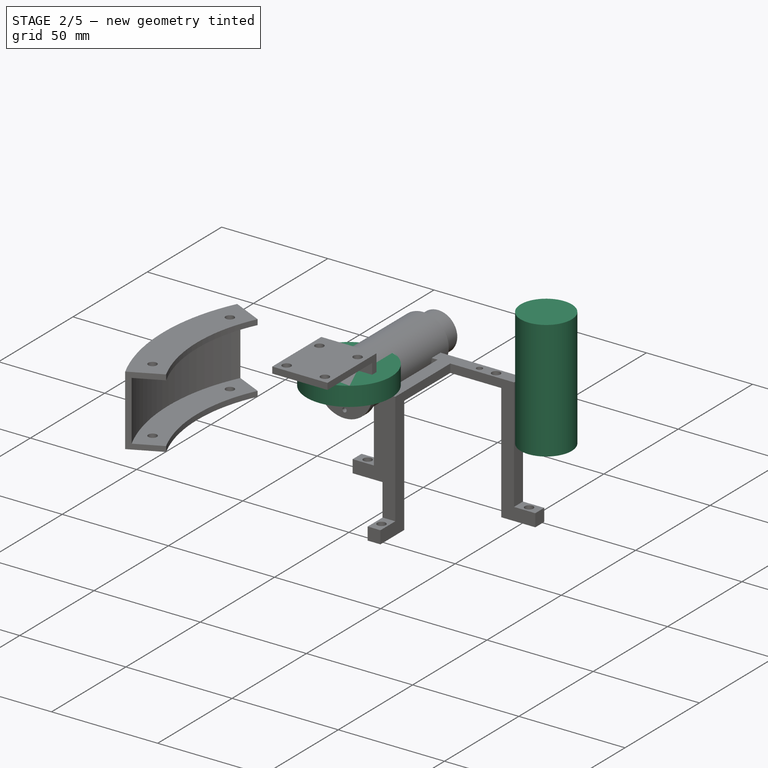
[diagram: stage 2 of 5 — iso view after this stage's code; geometry added in this stage tinted green]
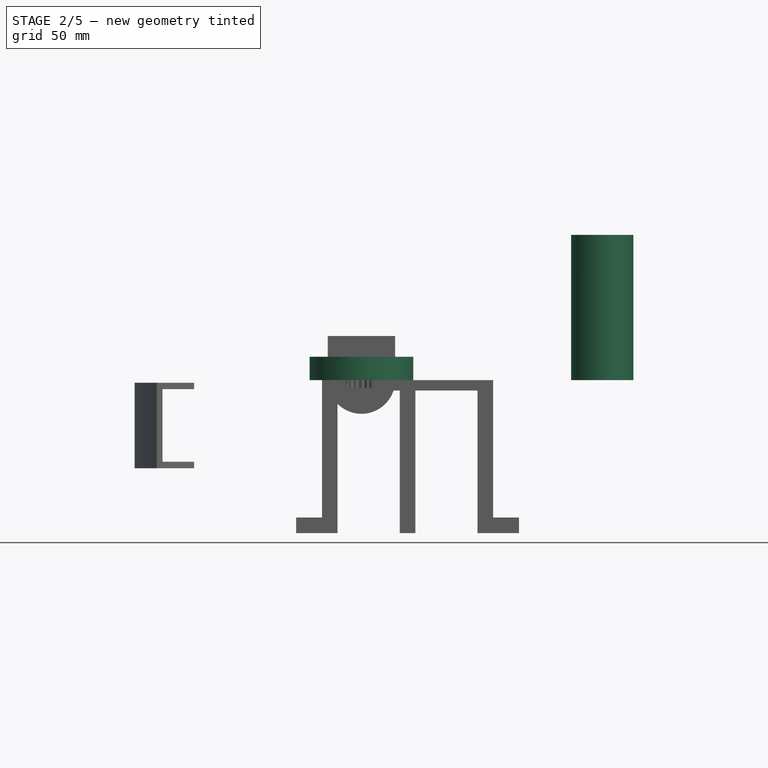
[diagram: stage 2 of 5 — front view after this stage's code; geometry added in this stage tinted green]
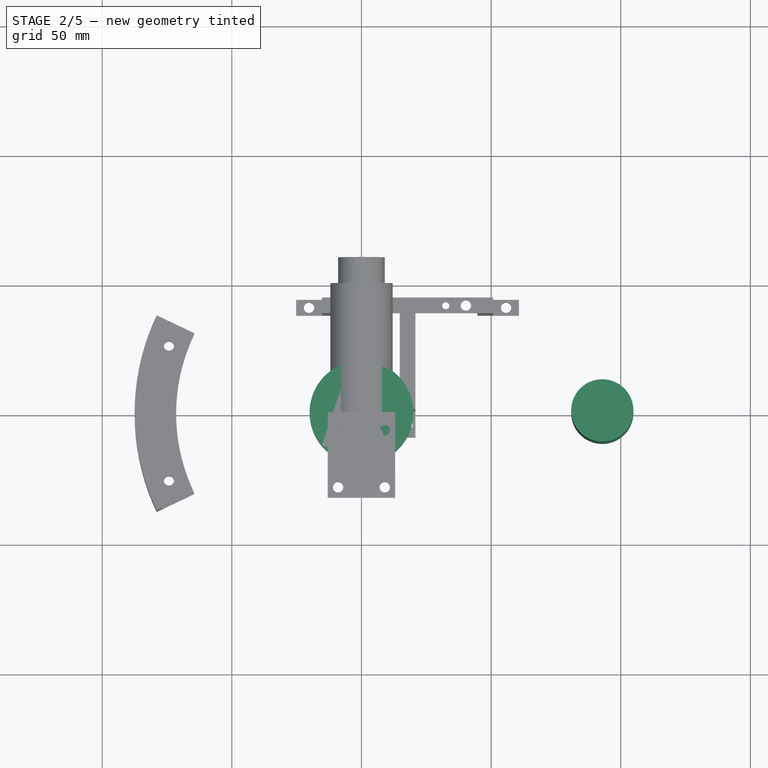
[diagram: stage 2 of 5 — top view after this stage's code; geometry added in this stage tinted green]
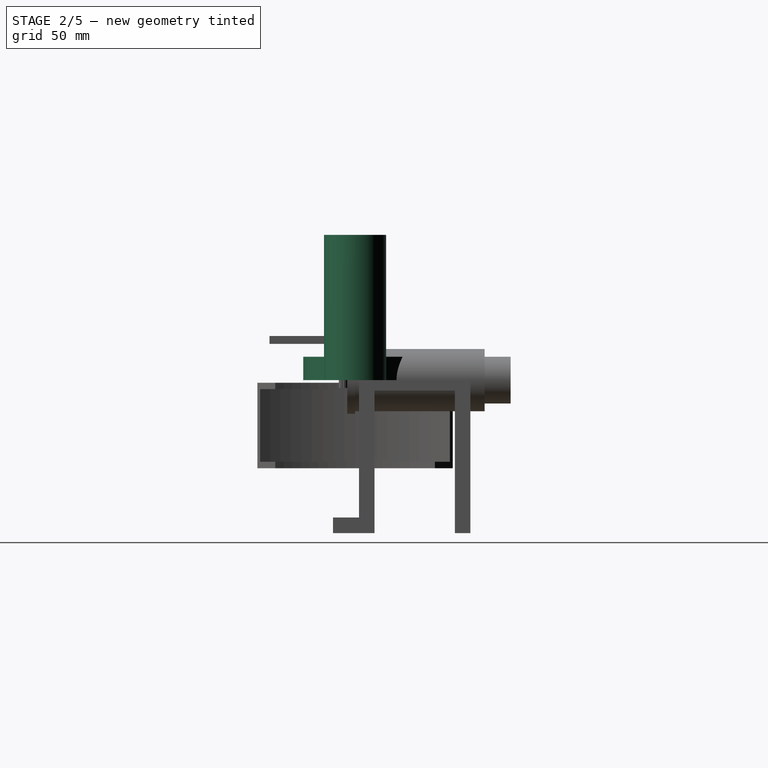
[diagram: stage 2 of 5 — right view after this stage's code; geometry added in this stage tinted green]
FEATURE [Sketcher::SketchObject] Sketch032
  FullyConstrained = true
  MapMode = 5
  Support = -> [XY_Plane035]
  sketch-geometry (1):
    g0: Circle CenterX=0 CenterY=0 CenterZ=0 NormalX=0 NormalY=0 NormalZ=1 AngleXU=0 Radius=20
  constraints (2):
    c: Coincident(g0,g-1)
    c: Diameter(g0) = 40
FEATURE [PartDesign::Pad] Pad018
  Direction = (0,0,1)
  Length = 6
  Length2 = 10
  Profile = -> Sketch032
  ReferenceAxis = -> Sketch032 [N_Axis]
  Type = 0
FEATURE [PartDesign::Pocket] Pocket010
  BaseFeature = -> Pad018
  Direction = (0,0,-1)
  Length = 5
  Length2 = 5
  Profile = -> InvoluteGear
  ReferenceAxis = -> InvoluteGear [N_Axis]
  Reversed = true
  Type = 1
FEATURE [App::Part] Part004  label="Powerpack"
  Group = -> [Body013,Body014]
  Origin = -> Origin037
  Placement = pos=(0,0,3) rot=(0,0,1;0rad)
FEATURE [Sketcher::SketchObject] Sketch034
  FullyConstrained = false
  MapMode = 5
  Placement = pos=(0,0,6) rot=(0,0,1;0rad)
  Support = -> [Pocket010]
  sketch-geometry (1):
    g0: Circle CenterX=0 CenterY=0 CenterZ=0 NormalX=0 NormalY=0 NormalZ=1 AngleXU=0 Radius=20
  constraints (1):
    c: Diameter(g0) = 40
FEATURE [PartDesign::Pad] Pad019
  BaseFeature = -> Pocket010
  Direction = (0,0,1)
  Length = 3
  Length2 = 10
  Profile = -> Sketch034
  ReferenceAxis = -> Sketch034 [N_Axis]
  Type = 0
FEATURE [PartDesign::Body] Body015  label="Wheel side gear 1"
  Group = -> [InvoluteGear,Sketch032,Pad018,Pocket010,Sketch034,Pad019,Sketch073,Pad049]
  Origin = -> Origin035
  Placement = pos=(-45.1211,37.9794,0) rot=(-0.862856,-0.357407,0.357407;1.71777rad)
  Tip = -> Pad049
FEATURE [Part::Part2DObjectPython] InvoluteGear008  # Draft 2D object (typed FeaturePython)
  AddendumCoefficient = 1
  DedendumCoefficient = 1.25
  ExternalGear = true
  HighPrecision = true
  Modules = 0.6
  NumberOfTeeth = 22
  PressureAngle = 20
  ProfileShiftCoefficient = 0
  RootFilletCoefficient = 0.38
FEATURE [PartDesign::Pad] Pad050
  Direction = (0,0,1)
  Length = 6
  Length2 = 10
  Profile = -> InvoluteGear008
  ReferenceAxis = -> InvoluteGear008 [N_Axis]
  Type = 0
FEATURE [PartDesign::Body] Body027  label="Planet gear 1.1"
  Group = -> [InvoluteGear008,Pad050]
  Origin = -> Origin228
  Placement = pos=(-44.7245,37.5827,9.7) rot=(-0.357407,-0.862856,-0.357407;1.71777rad)
  Tip = -> Pad050
FEATURE [Sketcher::SketchObject] Sketch074
  FullyConstrained = false
  MapMode = 5
  Support = -> [XY_Plane229]
  sketch-geometry (1):
    g0: Circle CenterX=92.8888 CenterY=0 CenterZ=0 NormalX=0 NormalY=0 NormalZ=1 AngleXU=0 Radius=12
  constraints (2):
    c: PointOnObject(g0,g-1)
    c: Diameter(g0) = 24
FEATURE [PartDesign::Pad] Pad051
  Direction = (0,0,1)
  Length = 56
  Length2 = 10
  Profile = -> Sketch074
  ReferenceAxis = -> Sketch074 [N_Axis]
  Type = 0
FEATURE [PartDesign::Body] Body028  label="Moteur 4"
  Group = -> [Sketch074,Pad051]
  Origin = -> Origin229
  Placement = pos=(-12.0208,-12.0208,86) rot=(-0.678598,-0.281085,0.678598;3.68962rad)
  Tip = -> Pad051
FEATURE [Sketcher::SketchObject] Sketch075
  FullyConstrained = false
  MapMode = 5
  Support = -> [XY_Plane230]
  sketch-geometry (1):
    g0: Circle CenterX=92.8888 CenterY=0 CenterZ=0 NormalX=0 NormalY=0 NormalZ=1 AngleXU=0 Radius=12
  constraints (2):
    c: PointOnObject(g0,g-1)
    c: Diameter(g0) = 24
FEATURE [PartDesign::Pad] Pad052
  Direction = (0,0,1)
  Length = 56
  Length2 = 10
  Profile = -> Sketch075
  ReferenceAxis = -> Sketch075 [N_Axis]
  Type = 0
FEATURE [PartDesign::Body] Body029  label="Moteur 1"
  Group = -> [Sketch075,Pad052]
  Origin = -> Origin230
  Placement = pos=(-12.0208,12.0208,92) rot=(-0.678598,0.281085,0.678598;2.59356rad)
  Tip = -> Pad052
FEATURE [Sketcher::SketchObject] Sketch077
  FullyConstrained = false
  MapMode = 5
  Support = -> [XY_Plane232]
  sketch-geometry (1):
    g0: Circle CenterX=92.8888 CenterY=0 CenterZ=0 NormalX=0 NormalY=0 NormalZ=1 AngleXU=0 Radius=12
  constraints (2):
    c: PointOnObject(g0,g-1)
    c: Diameter(g0) = 24
FEATURE [PartDesign::Pad] Pad054
  Direction = (0,0,1)
  Length = 56
  Length2 = 10
  Profile = -> Sketch077
  ReferenceAxis = -> Sketch077 [N_Axis]
  Type = 0
FEATURE [PartDesign::Body] Body032  label="Line board"
  Group = -> [Sketch079,Pad055,Sketch080,Pad056,PolarPattern011]
  Origin = -> Origin234
  Placement = pos=(0,0,2) rot=(0,0,1;0rad)
  Tip = -> PolarPattern011
FEATURE [App::Part] Part010  label="Line PCB"
  Group = -> [Body032]
  Origin = -> Origin233
  Placement = pos=(0,0,-38) rot=(0,0,1;0rad)
FEATURE [Sketcher::SketchObject] Sketch081
  FullyConstrained = false
  MapMode = 5
  Support = -> [XY_Plane235]
  sketch-geometry (1):
    g0: Circle CenterX=92.8888 CenterY=0 CenterZ=0 NormalX=0 NormalY=0 NormalZ=1 AngleXU=0 Radius=12
  constraints (2):
    c: PointOnObject(g0,g-1)
    c: Diameter(g0) = 24
FEATURE [PartDesign::Pad] Pad057
  Direction = (0,0,1)
  Length = 56
  Length2 = 10
  Profile = -> Sketch081
  ReferenceAxis = -> Sketch081 [N_Axis]
  Type = 0
FEATURE [PartDesign::Body] Body037  label="Dribbler gear 2"
  Group = -> [InvoluteGear010,Pad061]
  Origin = -> Origin240
  Placement = pos=(-48.5,28.5,17.9) rot=(1,0,0;1.5708rad)
  Tip = -> Pad061
FEATURE [Sketcher::SketchObject] Sketch084
  FullyConstrained = true
  MapMode = 5
  Placement = pos=(0,0,0) rot=(1,0,0;1.5708rad)
  Support = -> [XZ_Plane241]
  sketch-geometry (5):
    g0: Circle CenterX=0 CenterY=0 CenterZ=0 NormalX=0 NormalY=0 NormalZ=1 AngleXU=0 Radius=6
    g1: LineSegment StartX=-13 StartY=17 StartZ=0 EndX=13 EndY=17 EndZ=0
    g2: LineSegment StartX=-13 StartY=17 StartZ=0 EndX=-13 EndY=0 EndZ=0
    g3: LineSegment StartX=13 StartY=17 StartZ=0 EndX=13 EndY=-3.6e-15 EndZ=0
    g4: ArcOfCircle CenterX=0 CenterY=0 CenterZ=0 NormalX=0 NormalY=0 NormalZ=1 AngleXU=0 Radius=13 StartAngle=3.14159 EndAngle=6.28319
  constraints (13):
    c: Coincident(g0,g-1)
    c: Diameter(g0) = 12
    c: DistanceX(g1,g1) = 26
    c: Symmetric(g1,g1,g-2)
    c: DistanceY(g0,g1) = 17
    c: Coincident(g2,g1)
    c: PointOnObject(g2,g-1)
    c: Vertical(g2)
    c: Coincident(g3,g1)
    c: PointOnObject(g3,g-1)
    c: Coincident(g4,g0)
    c: Coincident(g4,g2)
    c: Coincident(g4,g3)
FEATURE [PartDesign::Pad] Pad062
  Direction = (0,-1,2e-16)
  Length = 3
  Length2 = 10
  Placement = pos=(0,0,0) rot=(1,0,0;1.5708rad)
  Profile = -> Sketch084
  ReferenceAxis = -> Sketch084 [N_Axis]
  Type = 0
FEATURE [Sketcher::SketchObject] Sketch085
  ExternalGeometry = -> [Pad062]
  FullyConstrained = true
  MapMode = 5
  Placement = pos=(0,-3,1.3e-15) rot=(1,0,0;1.5708rad)
  Support = -> [Pad062]
  sketch-geometry (4):
    g0: LineSegment StartX=-13 StartY=17 StartZ=0 EndX=-13 EndY=14 EndZ=0
    g1: LineSegment StartX=-13 StartY=14 StartZ=0 EndX=13 EndY=14 EndZ=0
    g2: LineSegment StartX=13 StartY=14 StartZ=0 EndX=13 EndY=17 EndZ=0
    g3: LineSegment StartX=13 StartY=17 StartZ=0 EndX=-13 EndY=17 EndZ=0
  constraints (10):
    c: Coincident(g0,g-3)
    c: Vertical(g0)
    c: Coincident(g1,g0)
    c: Horizontal(g1)
    c: Coincident(g2,g1)
    c: Coincident(g2,g-3)
    c: Vertical(g2)
    c: Coincident(g3,g2)
    c: Coincident(g3,g0)
    c: DistanceY(g0,g0) = 3
FEATURE [PartDesign::Pad] Pad063
  BaseFeature = -> Pad062
  Direction = (0,-1,2e-16)
  Length = 30
  Length2 = 10
  Placement = pos=(0,0,0) rot=(1,0,0;1.5708rad)
  Profile = -> Sketch085
  ReferenceAxis = -> Sketch085 [N_Axis]
  Type = 0
FEATURE [Sketcher::SketchObject] Sketch086
  ExternalGeometry = -> [Pad063]
  FullyConstrained = true
  MapMode = 5
  Placement = pos=(2.4e-15,1.13e-14,17) rot=(0,0,1;3.14159rad)
  Support = -> [Pad063]
  sketch-geometry (4):
    g0: Circle CenterX=-9 CenterY=7 CenterZ=0 NormalX=0 NormalY=0 NormalZ=1 AngleXU=0 Radius=2
    g1: Circle CenterX=9 CenterY=7 CenterZ=0 NormalX=0 NormalY=0 NormalZ=1 AngleXU=0 Radius=2
    g2: Circle CenterX=-9 CenterY=29 CenterZ=0 NormalX=0 NormalY=0 NormalZ=1 AngleXU=0 Radius=2
    g3: Circle CenterX=9 CenterY=29 CenterZ=0 NormalX=0 NormalY=0 NormalZ=1 AngleXU=0 Radius=2
  constraints (10):
    c: Diameter(g2) = 4
    c: Diameter(g3) = 4
    c: Diameter(g1) = 4
    c: Diameter(g0) = 4
    c: Symmetric(g2,g3,g-2)
    c: Symmetric(g0,g1,g-2)
    c: Vertical(g2,g0)
    c: DistanceX(g-4,g2) = 4
    c: DistanceY(g2,g-4) = 4
    c: DistanceY(g-4,g0) = 4
FEATURE [PartDesign::Pocket] Pocket029
  BaseFeature = -> Pad063
  Direction = (-1e-16,-2e-16,-1)
  Length = 5
  Length2 = 5
  Placement = pos=(0,0,0) rot=(1,0,0;1.5708rad)
  Profile = -> Sketch086
  ReferenceAxis = -> Sketch086 [N_Axis]
  Type = 1
FEATURE [Sketcher::SketchObject] Sketch087
  FullyConstrained = true
  MapMode = 5
  Placement = pos=(0,0,0) rot=(-1,0,0;1.5708rad)
  Support = -> [Pocket029]
  sketch-geometry (1):
    g0: Circle CenterX=0 CenterY=9.5 CenterZ=0 NormalX=0 NormalY=0 NormalZ=1 AngleXU=0 Radius=1
  constraints (3):
    c: PointOnObject(g0,g-2)
    c: Diameter(g0) = 2
    c: DistanceY(g-1,g0) = 9.5
FEATURE [PartDesign::Pocket] Pocket030
  BaseFeature = -> Pocket029
  Direction = (0,-1,2e-16)
  Length = 5
  Length2 = 5
  Placement = pos=(0,0,0) rot=(1,0,0;1.5708rad)
  Profile = -> Sketch087
  ReferenceAxis = -> Sketch087 [N_Axis]
  Type = 1
FEATURE [PartDesign::PolarPattern] PolarPattern012
  Angle = 360
  Axis = -> Sketch087 [N_Axis]
  BaseFeature = -> Pocket030
  Occurrences = 4
  Originals = -> [Pocket030]
  Placement = pos=(0,0,0) rot=(1,0,0;1.5708rad)
FEATURE [PartDesign::Body] Body038  label="Moteur support 1"
  Group = -> [Sketch084,Pad062,Sketch085,Pad063,Sketch086,Pocket029,Sketch087,Pocket030,PolarPattern012]
  Origin = -> Origin241
  Placement = pos=(-53.7401,53.7401,-1) rot=(0,0,1;0.785398rad)
  Tip = -> PolarPattern012
FEATURE [App::Part] Part005  label="Motor assembly 1"
  Group = -> [Part__Feature328,Body015,Body016,OmniWheel054,Body026,Body027,Body029,Body038]
  Origin = -> Origin038
  Placement = pos=(0,0,-6) rot=(0,0,1;6.19592rad)
FEATURE [PartDesign::SubShapeBinder] Binder
  BindCopyOnChange = 0
  BindMode = 0
  ClaimChildren = false
  Context = -> Body [Binder.]
  Fuse = false
  MakeFace = true
  OffsetFill = false
  OffsetIntersection = false
  OffsetJoinType = 0
  OffsetOpenResult = false
  PartialLoad = false
  Relative = true
  Support = -> [Part003[Part005.Body038.Pocket029.Sketch086.]]
  _Version = 2
FEATURE [Sketcher::SketchObject] Sketch088
  FullyConstrained = true
  MapMode = 5
  Placement = pos=(0,0,0) rot=(1,0,0;1.5708rad)
  Support = -> [XZ_Plane242]
  sketch-geometry (5):
    g0: Circle CenterX=0 CenterY=0 CenterZ=0 NormalX=0 NormalY=0 NormalZ=1 AngleXU=0 Radius=6
    g1: LineSegment StartX=-13 StartY=17 StartZ=0 EndX=13 EndY=17 EndZ=0
    g2: LineSegment StartX=-13 StartY=17 StartZ=0 EndX=-13 EndY=0 EndZ=0
    g3: LineSegment StartX=13 StartY=17 StartZ=0 EndX=13 EndY=-3.6e-15 EndZ=0
    g4: ArcOfCircle CenterX=0 CenterY=0 CenterZ=0 NormalX=0 NormalY=0 NormalZ=1 AngleXU=0 Radius=13 StartAngle=3.14159 EndAngle=6.28319
  constraints (13):
    c: Coincident(g0,g-1)
    c: Diameter(g0) = 12
    c: DistanceX(g1,g1) = 26
    c: Symmetric(g1,g1,g-2)
    c: DistanceY(g0,g1) = 17
    c: Coincident(g2,g1)
    c: PointOnObject(g2,g-1)
    c: Vertical(g2)
    c: Coincident(g3,g1)
    c: PointOnObject(g3,g-1)
    c: Coincident(g4,g0)
    c: Coincident(g4,g2)
    c: Coincident(g4,g3)
FEATURE [PartDesign::Pad] Pad064
  Direction = (0,-1,2e-16)
  Length = 3
  Length2 = 10
  Placement = pos=(0,0,0) rot=(1,0,0;1.5708rad)
  Profile = -> Sketch088
  ReferenceAxis = -> Sketch088 [N_Axis]
  Type = 0
FEATURE [Sketcher::SketchObject] Sketch089
  ExternalGeometry = -> [Pad064]
  FullyConstrained = true
  MapMode = 5
  Placement = pos=(0,-3,1.3e-15) rot=(1,0,0;1.5708rad)
  Support = -> [Pad064]
  sketch-geometry (4):
    g0: LineSegment StartX=-13 StartY=17 StartZ=0 EndX=-13 EndY=14 EndZ=0
    g1: LineSegment StartX=-13 StartY=14 StartZ=0 EndX=13 EndY=14 EndZ=0
    g2: LineSegment StartX=13 StartY=14 StartZ=0 EndX=13 EndY=17 EndZ=0
    g3: LineSegment StartX=13 StartY=17 StartZ=0 EndX=-13 EndY=17 EndZ=0
  constraints (10):
    c: Coincident(g0,g-3)
    c: Vertical(g0)
    c: Coincident(g1,g0)
    c: Horizontal(g1)
    c: Coincident(g2,g1)
    c: Coincident(g2,g-3)
    c: Vertical(g2)
    c: Coincident(g3,g2)
    c: Coincident(g3,g0)
    c: DistanceY(g0,g0) = 3
FEATURE [PartDesign::Pad] Pad065
  BaseFeature = -> Pad064
  Direction = (0,-1,2e-16)
  Length = 30
  Length2 = 10
  Placement = pos=(0,0,0) rot=(1,0,0;1.5708rad)
  Profile = -> Sketch089
  ReferenceAxis = -> Sketch089 [N_Axis]
  Type = 0
FEATURE [Sketcher::SketchObject] Sketch090
  ExternalGeometry = -> [Pad065]
  FullyConstrained = true
  MapMode = 5
  Placement = pos=(2.4e-15,1.13e-14,17) rot=(0,0,1;3.14159rad)
  Support = -> [Pad065]
  sketch-geometry (4):
    g0: Circle CenterX=-9 CenterY=7 CenterZ=0 NormalX=0 NormalY=0 NormalZ=1 AngleXU=0 Radius=2
    g1: Circle CenterX=9 CenterY=7 CenterZ=0 NormalX=0 NormalY=0 NormalZ=1 AngleXU=0 Radius=2
    g2: Circle CenterX=-9 CenterY=29 CenterZ=0 NormalX=0 NormalY=0 NormalZ=1 AngleXU=0 Radius=2
    g3: Circle CenterX=9 CenterY=29 CenterZ=0 NormalX=0 NormalY=0 NormalZ=1 AngleXU=0 Radius=2
  constraints (10):
    c: Diameter(g2) = 4
    c: Diameter(g3) = 4
    c: Diameter(g1) = 4
    c: Diameter(g0) = 4
    c: Symmetric(g2,g3,g-2)
    c: Symmetric(g0,g1,g-2)
    c: Vertical(g2,g0)
    c: DistanceX(g-4,g2) = 4
    c: DistanceY(g2,g-4) = 4
    c: DistanceY(g-4,g0) = 4
FEATURE [PartDesign::Pocket] Pocket032
  BaseFeature = -> Pad065
  Direction = (-1e-16,-2e-16,-1)
  Length = 5
  Length2 = 5
  Placement = pos=(0,0,0) rot=(1,0,0;1.5708rad)
  Profile = -> Sketch090
  ReferenceAxis = -> Sketch090 [N_Axis]
  Type = 1
FEATURE [Sketcher::SketchObject] Sketch091
  FullyConstrained = true
  MapMode = 5
  Placement = pos=(0,0,0) rot=(-1,0,0;1.5708rad)
  Support = -> [Pocket032]
  sketch-geometry (1):
    g0: Circle CenterX=0 CenterY=9.5 CenterZ=0 NormalX=0 NormalY=0 NormalZ=1 AngleXU=0 Radius=1
  constraints (3):
    c: PointOnObject(g0,g-2)
    c: Diameter(g0) = 2
    c: DistanceY(g-1,g0) = 9.5
FEATURE [PartDesign::Pocket] Pocket033
  BaseFeature = -> Pocket032
  Direction = (0,-1,2e-16)
  Length = 5
  Length2 = 5
  Placement = pos=(0,0,0) rot=(1,0,0;1.5708rad)
  Profile = -> Sketch091
  ReferenceAxis = -> Sketch091 [N_Axis]
  Type = 1
FEATURE [PartDesign::PolarPattern] PolarPattern013
  Angle = 360
  Axis = -> Sketch091 [N_Axis]
  BaseFeature = -> Pocket033
  Occurrences = 4
  Originals = -> [Pocket033]
  Placement = pos=(0,0,0) rot=(1,0,0;1.5708rad)
FEATURE [PartDesign::Body] Body039  label="Moteur support 2"
  Group = -> [Sketch088,Pad064,Sketch089,Pad065,Sketch090,Pocket032,Sketch091,Pocket033,PolarPattern013]
  Origin = -> Origin242
  Placement = pos=(53.7198,53.7203,-7) rot=(0,0,1;5.49779rad)
  Tip = -> PolarPattern013
FEATURE [App::Part] Part006  label="Motor assembly 2"
  Group = -> [Part__Feature329,Body017,Body020,OmniWheel053,Body031,Body039]
  Origin = -> Origin039
  Placement = pos=(0,0,0) rot=(0,0,1;0.087266rad)
FEATURE [Sketcher::SketchObject] Sketch092
  FullyConstrained = true
  MapMode = 5
  Placement = pos=(0,0,0) rot=(1,0,0;1.5708rad)
  Support = -> [XZ_Plane243]
  sketch-geometry (5):
    g0: Circle CenterX=0 CenterY=0 CenterZ=0 NormalX=0 NormalY=0 NormalZ=1 AngleXU=0 Radius=6
    g1: LineSegment StartX=-13 StartY=17 StartZ=0 EndX=13 EndY=17 EndZ=0
    g2: LineSegment StartX=-13 StartY=17 StartZ=0 EndX=-13 EndY=0 EndZ=0
    g3: LineSegment StartX=13 StartY=17 StartZ=0 EndX=13 EndY=-3.6e-15 EndZ=0
    g4: ArcOfCircle CenterX=0 CenterY=0 CenterZ=0 NormalX=0 NormalY=0 NormalZ=1 AngleXU=0 Radius=13 StartAngle=3.14159 EndAngle=6.28319
  constraints (13):
    c: Coincident(g0,g-1)
    c: Diameter(g0) = 12
    c: DistanceX(g1,g1) = 26
    c: Symmetric(g1,g1,g-2)
    c: DistanceY(g0,g1) = 17
    c: Coincident(g2,g1)
    c: PointOnObject(g2,g-1)
    c: Vertical(g2)
    c: Coincident(g3,g1)
    c: PointOnObject(g3,g-1)
    c: Coincident(g4,g0)
    c: Coincident(g4,g2)
    c: Coincident(g4,g3)
FEATURE [PartDesign::Pad] Pad066
  Direction = (0,-1,2e-16)
  Length = 3
  Length2 = 10
  Placement = pos=(0,0,0) rot=(1,0,0;1.5708rad)
  Profile = -> Sketch092
  ReferenceAxis = -> Sketch092 [N_Axis]
  Type = 0
FEATURE [Sketcher::SketchObject] Sketch093
  ExternalGeometry = -> [Pad066]
  FullyConstrained = true
  MapMode = 5
  Placement = pos=(0,-3,1.3e-15) rot=(1,0,0;1.5708rad)
  Support = -> [Pad066]
  sketch-geometry (4):
    g0: LineSegment StartX=-13 StartY=17 StartZ=0 EndX=-13 EndY=14 EndZ=0
    g1: LineSegment StartX=-13 StartY=14 StartZ=0 EndX=13 EndY=14 EndZ=0
    g2: LineSegment StartX=13 StartY=14 StartZ=0 EndX=13 EndY=17 EndZ=0
    g3: LineSegment StartX=13 StartY=17 StartZ=0 EndX=-13 EndY=17 EndZ=0
  constraints (10):
    c: Coincident(g0,g-3)
    c: Vertical(g0)
    c: Coincident(g1,g0)
    c: Horizontal(g1)
    c: Coincident(g2,g1)
    c: Coincident(g2,g-3)
    c: Vertical(g2)
    c: Coincident(g3,g2)
    c: Coincident(g3,g0)
    c: DistanceY(g0,g0) = 3
FEATURE [PartDesign::Pad] Pad067
  BaseFeature = -> Pad066
  Direction = (0,-1,2e-16)
  Length = 30
  Length2 = 10
  Placement = pos=(0,0,0) rot=(1,0,0;1.5708rad)
  Profile = -> Sketch093
  ReferenceAxis = -> Sketch093 [N_Axis]
  Type = 0
FEATURE [Sketcher::SketchObject] Sketch094
  ExternalGeometry = -> [Pad067]
  FullyConstrained = true
  MapMode = 5
  Placement = pos=(2.4e-15,1.13e-14,17) rot=(0,0,1;3.14159rad)
  Support = -> [Pad067]
  sketch-geometry (4):
    g0: Circle CenterX=-9 CenterY=7 CenterZ=0 NormalX=0 NormalY=0 NormalZ=1 AngleXU=0 Radius=2
    g1: Circle CenterX=9 CenterY=7 CenterZ=0 NormalX=0 NormalY=0 NormalZ=1 AngleXU=0 Radius=2
    g2: Circle CenterX=-9 CenterY=29 CenterZ=0 NormalX=0 NormalY=0 NormalZ=1 AngleXU=0 Radius=2
    g3: Circle CenterX=9 CenterY=29 CenterZ=0 NormalX=0 NormalY=0 NormalZ=1 AngleXU=0 Radius=2
  constraints (10):
    c: Diameter(g2) = 4
    c: Diameter(g3) = 4
    c: Diameter(g1) = 4
    c: Diameter(g0) = 4
    c: Symmetric(g2,g3,g-2)
    c: Symmetric(g0,g1,g-2)
    c: Vertical(g2,g0)
    c: DistanceX(g-4,g2) = 4
    c: DistanceY(g2,g-4) = 4
    c: DistanceY(g-4,g0) = 4
FEATURE [PartDesign::Pocket] Pocket034
  BaseFeature = -> Pad067
  Direction = (-1e-16,-2e-16,-1)
  Length = 5
  Length2 = 5
  Placement = pos=(0,0,0) rot=(1,0,0;1.5708rad)
  Profile = -> Sketch094
  ReferenceAxis = -> Sketch094 [N_Axis]
  Type = 1
FEATURE [Sketcher::SketchObject] Sketch095
  FullyConstrained = true
  MapMode = 5
  Placement = pos=(0,0,0) rot=(-1,0,0;1.5708rad)
  Support = -> [Pocket034]
  sketch-geometry (1):
    g0: Circle CenterX=0 CenterY=9.5 CenterZ=0 NormalX=0 NormalY=0 NormalZ=1 AngleXU=0 Radius=1
  constraints (3):
    c: PointOnObject(g0,g-2)
    c: Diameter(g0) = 2
    c: DistanceY(g-1,g0) = 9.5
FEATURE [PartDesign::Pocket] Pocket035
  BaseFeature = -> Pocket034
  Direction = (0,-1,2e-16)
  Length = 5
  Length2 = 5
  Placement = pos=(0,0,0) rot=(1,0,0;1.5708rad)
  Profile = -> Sketch095
  ReferenceAxis = -> Sketch095 [N_Axis]
  Type = 1
FEATURE [PartDesign::PolarPattern] PolarPattern014
  Angle = 360
  Axis = -> Sketch095 [N_Axis]
  BaseFeature = -> Pocket035
  Occurrences = 4
  Originals = -> [Pocket035]
  Placement = pos=(0,0,0) rot=(1,0,0;1.5708rad)
FEATURE [Sketcher::SketchObject] Sketch097
  ExternalGeometry = -> [Pad068]
  FullyConstrained = true
  MapMode = 5
  Placement = pos=(0,-3,1.3e-15) rot=(1,0,0;1.5708rad)
  Support = -> [Pad068]
  sketch-geometry (4):
    g0: LineSegment StartX=-13 StartY=17 StartZ=0 EndX=-13 EndY=14 EndZ=0
    g1: LineSegment StartX=-13 StartY=14 StartZ=0 EndX=13 EndY=14 EndZ=0
    g2: LineSegment StartX=13 StartY=14 StartZ=0 EndX=13 EndY=17 EndZ=0
    g3: LineSegment StartX=13 StartY=17 StartZ=0 EndX=-13 EndY=17 EndZ=0
  constraints (10):
    c: Coincident(g0,g-3)
    c: Vertical(g0)
    c: Coincident(g1,g0)
    c: Horizontal(g1)
    c: Coincident(g2,g1)
    c: Coincident(g2,g-3)
    c: Vertical(g2)
    c: Coincident(g3,g2)
    c: Coincident(g3,g0)
    c: DistanceY(g0,g0) = 3
FEATURE [PartDesign::Pad] Pad069
  BaseFeature = -> Pad068
  Direction = (0,-1,2e-16)
  Length = 30
  Length2 = 10
  Placement = pos=(0,0,0) rot=(1,0,0;1.5708rad)
  Profile = -> Sketch097
  ReferenceAxis = -> Sketch097 [N_Axis]
  Type = 0
FEATURE [Sketcher::SketchObject] Sketch098
  ExternalGeometry = -> [Pad069]
  FullyConstrained = true
  MapMode = 5
  Placement = pos=(2.4e-15,1.13e-14,17) rot=(0,0,1;3.14159rad)
  Support = -> [Pad069]
  sketch-geometry (4):
    g0: Circle CenterX=-9 CenterY=7 CenterZ=0 NormalX=0 NormalY=0 NormalZ=1 AngleXU=0 Radius=2
    g1: Circle CenterX=9 CenterY=7 CenterZ=0 NormalX=0 NormalY=0 NormalZ=1 AngleXU=0 Radius=2
    g2: Circle CenterX=-9 CenterY=29 CenterZ=0 NormalX=0 NormalY=0 NormalZ=1 AngleXU=0 Radius=2
    g3: Circle CenterX=9 CenterY=29 CenterZ=0 NormalX=0 NormalY=0 NormalZ=1 AngleXU=0 Radius=2
  constraints (10):
    c: Diameter(g2) = 4
    c: Diameter(g3) = 4
    c: Diameter(g1) = 4
    c: Diameter(g0) = 4
    c: Symmetric(g2,g3,g-2)
    c: Symmetric(g0,g1,g-2)
    c: Vertical(g2,g0)
    c: DistanceX(g-4,g2) = 4
    c: DistanceY(g2,g-4) = 4
    c: DistanceY(g-4,g0) = 4
FEATURE [PartDesign::Pocket] Pocket036
  BaseFeature = -> Pad069
  Direction = (-1e-16,-2e-16,-1)
  Length = 5
  Length2 = 5
  Placement = pos=(0,0,0) rot=(1,0,0;1.5708rad)
  Profile = -> Sketch098
  ReferenceAxis = -> Sketch098 [N_Axis]
  Type = 1
FEATURE [Sketcher::SketchObject] Sketch099
  FullyConstrained = true
  MapMode = 5
  Placement = pos=(0,0,0) rot=(-1,0,0;1.5708rad)
  Support = -> [Pocket036]
  sketch-geometry (1):
    g0: Circle CenterX=0 CenterY=9.5 CenterZ=0 NormalX=0 NormalY=0 NormalZ=1 AngleXU=0 Radius=1
  constraints (3):
    c: PointOnObject(g0,g-2)
    c: Diameter(g0) = 2
    c: DistanceY(g-1,g0) = 9.5
FEATURE [PartDesign::Pocket] Pocket037
  BaseFeature = -> Pocket036
  Direction = (0,-1,2e-16)
  Length = 5
  Length2 = 5
  Placement = pos=(0,0,0) rot=(1,0,0;1.5708rad)
  Profile = -> Sketch099
  ReferenceAxis = -> Sketch099 [N_Axis]
  Type = 1
FEATURE [PartDesign::PolarPattern] PolarPattern015
  Angle = 360
  Axis = -> Sketch099 [N_Axis]
  BaseFeature = -> Pocket037
  Occurrences = 4
  Originals = -> [Pocket037]
  Placement = pos=(0,0,0) rot=(1,0,0;1.5708rad)
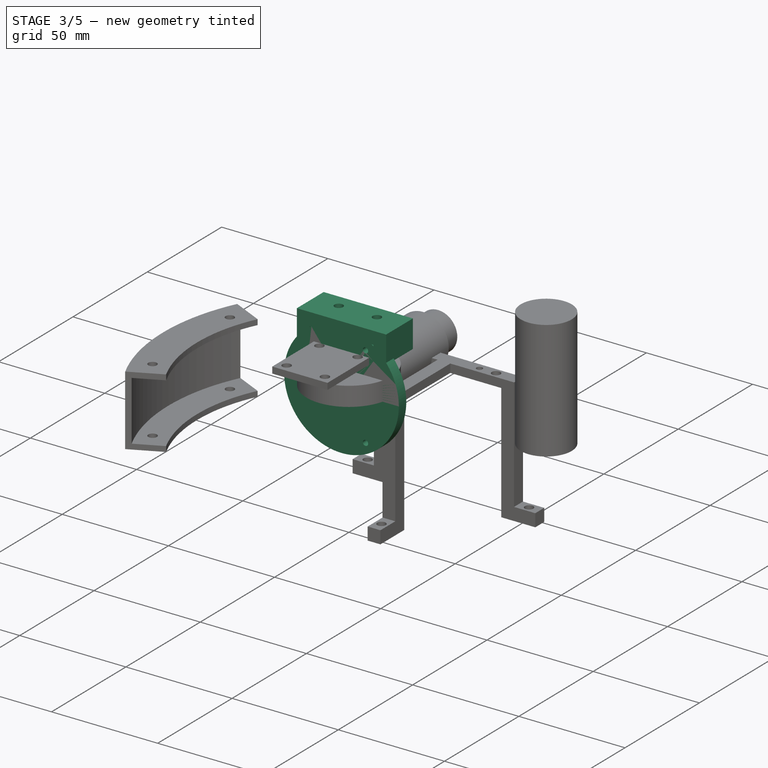
[diagram: stage 3 of 5 — iso view after this stage's code; geometry added in this stage tinted green]
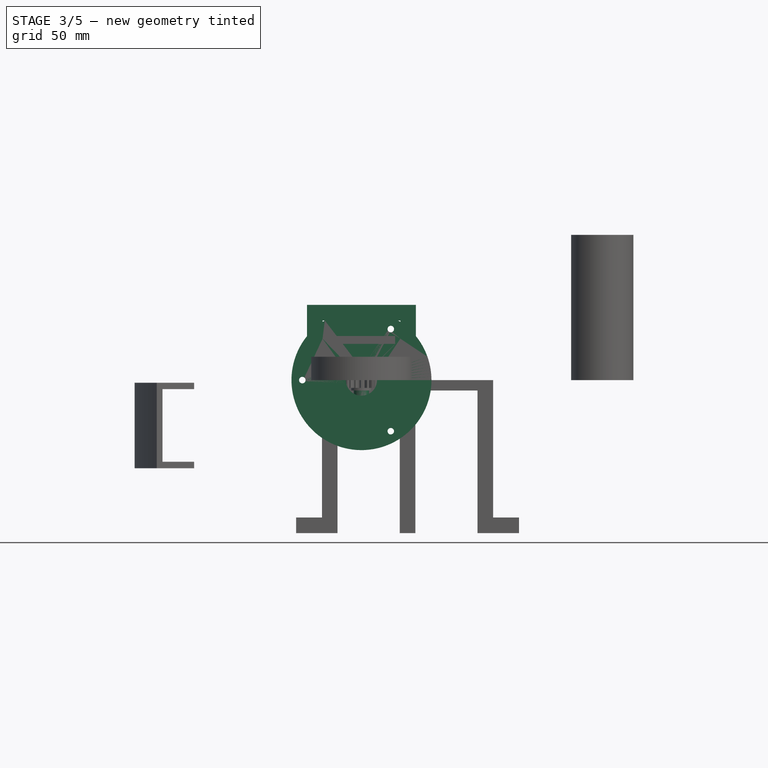
[diagram: stage 3 of 5 — front view after this stage's code; geometry added in this stage tinted green]
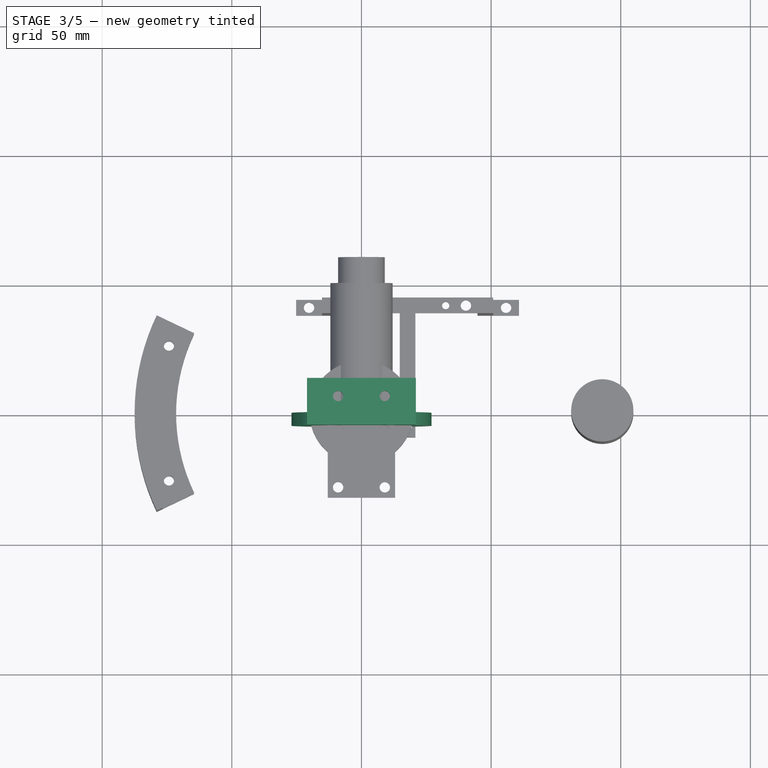
[diagram: stage 3 of 5 — top view after this stage's code; geometry added in this stage tinted green]
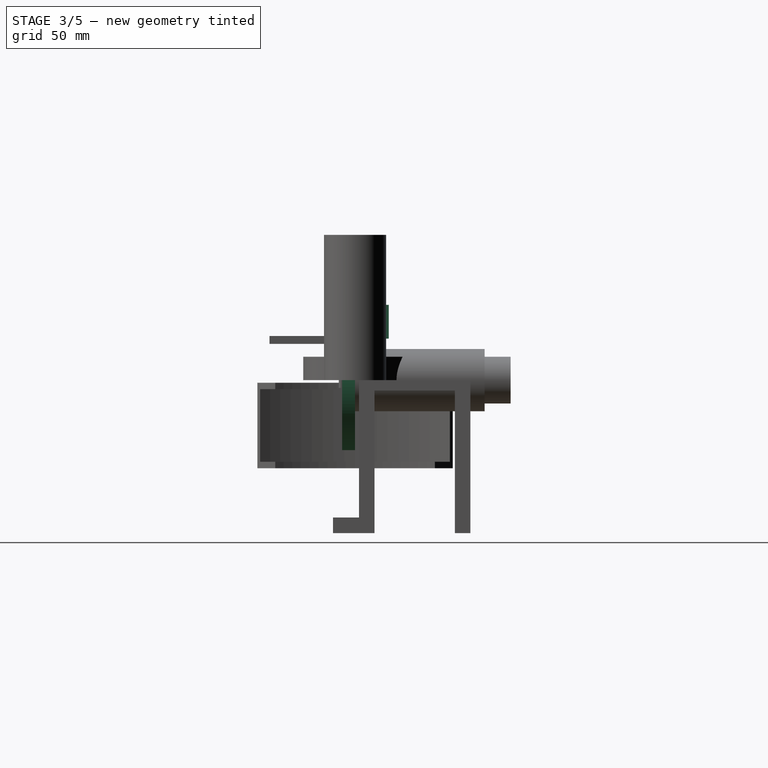
[diagram: stage 3 of 5 — right view after this stage's code; geometry added in this stage tinted green]
FEATURE [PartDesign::Body] Body014  label="Battery 2"
  Group = -> [Sketch031,Pad014,Fillet002]
  Origin = -> Origin033
  Placement = pos=(0,-2,-36) rot=(0,0,1;0rad)
  Tip = -> Fillet002
FEATURE [Part::Feature] Part__Feature328  label="Motor 1"
  Placement = pos=(-34.5858,27.4243,0) rot=(-0.862856,0.357407,-0.357407;1.71777rad)
  shape: bbox 39.39 x 39.39 x 127.5 mm, 74 faces (baked)
FEATURE [Part::Feature] Part__Feature329  label="Motor 2"
  Placement = pos=(34.6,27.4,0) rot=(-0.281085,0.678598,-0.678598;2.59356rad)
  shape: bbox 39.39 x 39.39 x 127.5 mm, 74 faces (baked)
FEATURE [Part::Feature] Part__Feature331  label="Motor 4"
  Placement = pos=(-34.6,-27.4,0) rot=(-0.862856,-0.357407,0.357407;1.71777rad)
  shape: bbox 39.39 x 39.39 x 127.5 mm, 74 faces (baked)
FEATURE [Part::Part2DObjectPython] InvoluteGear  # Draft 2D object (typed FeaturePython)
  AddendumCoefficient = 1
  DedendumCoefficient = 1.25
  ExternalGear = true
  HighPrecision = false
  Modules = 0.6
  NumberOfTeeth = 56
  PressureAngle = 20
  ProfileShiftCoefficient = 0
  RootFilletCoefficient = 0.38
FEATURE [Part::Part2DObjectPython] InvoluteGear001  # Draft 2D object (typed FeaturePython)
  AddendumCoefficient = 1
  DedendumCoefficient = 1.25
  ExternalGear = true
  HighPrecision = false
  Modules = 0.6
  NumberOfTeeth = 10
  PressureAngle = 20
  ProfileShiftCoefficient = 0
  RootFilletCoefficient = 0.38
FEATURE [PartDesign::Pad] Pad017
  Direction = (0,0,1)
  Length = 6
  Length2 = 10
  Profile = -> InvoluteGear001
  ReferenceAxis = -> InvoluteGear001 [N_Axis]
  Type = 0
FEATURE [PartDesign::Body] Body017  label="Wheel side gear 2"
  Group = -> [InvoluteGear002,Sketch040,Pad023,Pocket012,Sketch041,Pad024,Sketch042,Pocket013,Sketch043,Pad025]
  Origin = -> Origin042
  Placement = pos=(46.5,46.5,-6) rot=(-0.862856,0.357407,-0.357407;1.71777rad)
  Tip = -> Pad025
FEATURE [Part::Part2DObjectPython] InvoluteGear003  # Draft 2D object (typed FeaturePython)
  AddendumCoefficient = 1
  DedendumCoefficient = 1.25
  ExternalGear = true
  HighPrecision = false
  Modules = 0.72
  NumberOfTeeth = 28
  PressureAngle = 20
  ProfileShiftCoefficient = 0
  RootFilletCoefficient = 0.38
FEATURE [Sketcher::SketchObject] Sketch044
  FullyConstrained = true
  MapMode = 5
  Support = -> [XY_Plane043]
  sketch-geometry (1):
    g0: Circle CenterX=0 CenterY=0 CenterZ=0 NormalX=0 NormalY=0 NormalZ=1 AngleXU=0 Radius=12.5
  constraints (2):
    c: Coincident(g0,g-1)
    c: Diameter(g0) = 25
FEATURE [PartDesign::Pad] Pad026
  Direction = (0,0,1)
  Length = 2
  Length2 = 10
  Profile = -> Sketch044
  ReferenceAxis = -> Sketch044 [N_Axis]
  Type = 0
FEATURE [PartDesign::Pocket] Pocket014
  BaseFeature = -> Pad026
  Direction = (0,0,-1)
  Length = 5
  Length2 = 5
  Profile = -> InvoluteGear003
  ReferenceAxis = -> InvoluteGear003 [N_Axis]
  Reversed = true
  Type = 1
FEATURE [PartDesign::Body] Body018  label="Wheel side gear 3"
  Group = -> [InvoluteGear003,Sketch044,Pad026,Pocket014,Sketch045,Pad027,Sketch046,Pocket015,Sketch047,Pad028]
  Origin = -> Origin043
  Placement = pos=(46.5,-46.5,-6) rot=(-0.281085,0.678598,-0.678598;2.59356rad)
  Tip = -> Pad028
FEATURE [Part::Part2DObjectPython] InvoluteGear004  # Draft 2D object (typed FeaturePython)
  AddendumCoefficient = 1
  DedendumCoefficient = 1.25
  ExternalGear = true
  HighPrecision = false
  Modules = 0.72
  NumberOfTeeth = 28
  PressureAngle = 20
  ProfileShiftCoefficient = 0
  RootFilletCoefficient = 0.38
FEATURE [Sketcher::SketchObject] Sketch048
  FullyConstrained = true
  MapMode = 5
  Support = -> [XY_Plane044]
  sketch-geometry (1):
    g0: Circle CenterX=0 CenterY=0 CenterZ=0 NormalX=0 NormalY=0 NormalZ=1 AngleXU=0 Radius=12.5
  constraints (2):
    c: Coincident(g0,g-1)
    c: Diameter(g0) = 25
FEATURE [PartDesign::Pad] Pad029
  Direction = (0,0,1)
  Length = 2
  Length2 = 10
  Profile = -> Sketch048
  ReferenceAxis = -> Sketch048 [N_Axis]
  Type = 0
FEATURE [PartDesign::Pocket] Pocket016
  BaseFeature = -> Pad029
  Direction = (0,0,-1)
  Length = 5
  Length2 = 5
  Profile = -> InvoluteGear004
  ReferenceAxis = -> InvoluteGear004 [N_Axis]
  Reversed = true
  Type = 1
FEATURE [Sketcher::SketchObject] Sketch049
  FullyConstrained = false
  MapMode = 5
  Placement = pos=(0,0,2) rot=(0,0,1;0rad)
  Support = -> [Pocket016]
  sketch-geometry (1):
    g0: Circle CenterX=0 CenterY=0 CenterZ=0 NormalX=0 NormalY=0 NormalZ=1 AngleXU=0 Radius=12.5
  constraints (1):
    c: Diameter(g0) = 25
FEATURE [PartDesign::Pad] Pad030
  BaseFeature = -> Pocket016
  Direction = (0,0,1)
  Length = 1.5
  Length2 = 10
  Profile = -> Sketch049
  ReferenceAxis = -> Sketch049 [N_Axis]
  Type = 0
FEATURE [Sketcher::SketchObject] Sketch050
  FullyConstrained = true
  MapMode = 5
  Placement = pos=(0,0,3.5) rot=(0,0,1;0rad)
  Support = -> [Pad030]
  sketch-geometry (12):
    g0: LineSegment StartX=-8.77496 StartY=-2 StartZ=0 EndX=-2 EndY=-2 EndZ=0
    g1: LineSegment StartX=-8.77496 StartY=2 StartZ=0 EndX=-2 EndY=2 EndZ=0
    g2: LineSegment StartX=-2 StartY=2 StartZ=0 EndX=-2 EndY=8.77496 EndZ=0
    g3: LineSegment StartX=-2 StartY=-2 StartZ=0 EndX=-2 EndY=-8.77496 EndZ=0
    g4: LineSegment StartX=2 StartY=-8.77496 StartZ=0 EndX=2 EndY=-2 EndZ=0
    g5: LineSegment StartX=2 StartY=-2 StartZ=0 EndX=8.77496 EndY=-2 EndZ=0
    g6: LineSegment StartX=2 StartY=2 StartZ=0 EndX=8.77496 EndY=2 EndZ=0
    g7: LineSegment StartX=2 StartY=2 StartZ=0 EndX=2 EndY=8.77496 EndZ=0
    g8: ArcOfCircle CenterX=0 CenterY=0 CenterZ=0 NormalX=0 NormalY=0 NormalZ=1 AngleXU=0 Radius=9 StartAngle=1.79489 EndAngle=2.9175
    g9: ArcOfCircle CenterX=0 CenterY=0 CenterZ=0 NormalX=0 NormalY=0 NormalZ=1 AngleXU=0 Radius=9 StartAngle=0.224093 EndAngle=1.3467
    g10: ArcOfCircle CenterX=0 CenterY=0 CenterZ=0 NormalX=0 NormalY=0 NormalZ=1 AngleXU=0 Radius=9 StartAngle=3.36569 EndAngle=4.4883
    g11: ArcOfCircle CenterX=0 CenterY=0 CenterZ=0 NormalX=0 NormalY=0 NormalZ=1 AngleXU=0 Radius=9 StartAngle=4.93648 EndAngle=6.05909
  constraints (33):
    c: Horizontal(g0)
    c: Horizontal(g1)
    c: Coincident(g2,g1)
    c: Vertical(g2)
    c: Coincident(g3,g0)
    c: Vertical(g3)
    c: Vertical(g4)
    c: Coincident(g5,g4)
    c: Horizontal(g5)
    c: Horizontal(g6)
    c: Coincident(g7,g6)
    c: Vertical(g7)
    c: Symmetric(g2,g7,g-2)
    c: Symmetric(g1,g0,g-1)
    c: Symmetric(g5,g6,g-1)
    c: Symmetric(g3,g4,g-2)
    c: Coincident(g8,g-1)
    c: Coincident(g8,g1)
    c: Coincident(g8,g2)
    c: Coincident(g9,g8)
    c: Coincident(g9,g7)
    c: Coincident(g9,g6)
    c: Coincident(g10,g8)
    c: Coincident(g10,g0)
    c: Coincident(g10,g3)
    c: DistanceX(g1,g6) = 4
    c: DistanceX(g0,g4) = 4
    c: DistanceY(g4,g6) = 4
    c: DistanceY(g0,g1) = 4
    c: Coincident(g11,g8)
    c: Coincident(g11,g5)
    c: Radius(g11) = 9
    c: DistanceX(g4,g11) = 0
FEATURE [PartDesign::Pocket] Pocket017
  BaseFeature = -> Pad030
  Direction = (0,0,-1)
  Length = 5
  Length2 = 5
  Profile = -> Sketch050
  ReferenceAxis = -> Sketch050 [N_Axis]
  Type = 1
FEATURE [Sketcher::SketchObject] Sketch051
  ExternalGeometry = -> [Pocket017]
  FullyConstrained = true
  MapMode = 5
  Placement = pos=(0,0,3.5) rot=(0,0,1;0rad)
  Support = -> [Pocket017]
  sketch-geometry (1):
    g0: Circle CenterX=0 CenterY=0 CenterZ=0 NormalX=0 NormalY=0 NormalZ=1 AngleXU=0 Radius=2
  constraints (2):
    c: Coincident(g0,g-1)
    c: Diameter(g0) = 4
FEATURE [PartDesign::Pad] Pad031
  BaseFeature = -> Pocket017
  Direction = (0,0,1)
  Length = 12
  Length2 = 10
  Profile = -> Sketch051
  ReferenceAxis = -> Sketch051 [N_Axis]
  Type = 0
FEATURE [PartDesign::Body] Body019  label="Wheel side gear 4"
  Group = -> [InvoluteGear004,Sketch048,Pad029,Pocket016,Sketch049,Pad030,Sketch050,Pocket017,Sketch051,Pad031]
  Origin = -> Origin044
  Placement = pos=(-46.5,-46.5,-6) rot=(0.281085,0.678598,-0.678598;3.68962rad)
  Tip = -> Pad031
FEATURE [Part::Part2DObjectPython] InvoluteGear005  # Draft 2D object (typed FeaturePython)
  AddendumCoefficient = 1
  DedendumCoefficient = 1.25
  ExternalGear = true
  HighPrecision = false
  Modules = 0.72
  NumberOfTeeth = 5
  PressureAngle = 20
  ProfileShiftCoefficient = 0
  RootFilletCoefficient = 0.38
FEATURE [PartDesign::Pad] Pad032
  Direction = (0,0,1)
  Length = 1.5
  Length2 = 10
  Profile = -> InvoluteGear005
  ReferenceAxis = -> InvoluteGear005 [N_Axis]
  Type = 0
FEATURE [Sketcher::SketchObject] Sketch052
  FullyConstrained = true
  MapMode = 5
  Placement = pos=(0,0,0) rot=(1,0,0;3.14159rad)
  Support = -> [Pad032]
  sketch-geometry (1):
    g0: Circle CenterX=0 CenterY=0 CenterZ=0 NormalX=0 NormalY=0 NormalZ=1 AngleXU=0 Radius=3
  constraints (2):
    c: Coincident(g0,g-1)
    c: Radius(g0) = 3
FEATURE [PartDesign::Pad] Pad033
  BaseFeature = -> Pad032
  Direction = (0,0,-1)
  Length = 1.5
  Length2 = 10
  Profile = -> Sketch052
  ReferenceAxis = -> Sketch052 [N_Axis]
  Type = 0
FEATURE [Sketcher::SketchObject] Sketch053
  FullyConstrained = true
  MapMode = 5
  Placement = pos=(0,0,-1.5) rot=(1,0,0;3.14159rad)
  Support = -> [Pad033]
  sketch-geometry (2):
    g0: Circle CenterX=0 CenterY=0 CenterZ=0 NormalX=0 NormalY=0 NormalZ=1 AngleXU=0 Radius=2.1
    g1: Circle CenterX=0 CenterY=0 CenterZ=0 NormalX=0 NormalY=0 NormalZ=1 AngleXU=0 Radius=3
  constraints (4):
    c: Coincident(g0,g-1)
    c: Coincident(g1,g0)
    c: Diameter(g1) = 6
    c: Diameter(g0) = 4.2
FEATURE [PartDesign::Pad] Pad034
  BaseFeature = -> Pad033
  Direction = (0,0,-1)
  Length = 8
  Length2 = 10
  Profile = -> Sketch053
  ReferenceAxis = -> Sketch053 [N_Axis]
  Type = 0
FEATURE [PartDesign::Body] Body020  label="Motor side gear 2"
  Group = -> [InvoluteGear005,Pad032,Sketch052,Pad033,Sketch053,Pad034]
  Origin = -> Origin045
  Placement = pos=(50,42.9902,0) rot=(-0.357407,0.862856,0.357407;1.71777rad)
  Tip = -> Pad034
FEATURE [Part::Feature] Part__Feature248  label="OmniBase_Predeterminado003"
  Placement = pos=(4.80373,-0.638646,40.5) rot=(0,0,1;0rad)
  shape: bbox 44 x 43.9 x 9 mm, 104 faces (baked)
FEATURE [Part::Feature] Part__Feature249  label="Roller_Predeterminado054"
  Placement = pos=(4.80373,20.3614,41.6192) rot=(0,0,1;0rad)
  shape: bbox 2.6 x 8.659 x 8.659 mm, 10 faces (baked)
FEATURE [Part::Feature] Part__Feature250  label="Roller_Predeterminado055"
  Placement = pos=(-2.3787,19.0949,41.6192) rot=(0,0,1;0.349066rad)
  shape: bbox 4.664 x 8.342 x 8.659 mm, 10 faces (baked)
FEATURE [Part::Feature] Part__Feature251  label="Roller_Predeterminado056"
  Placement = pos=(-8.69481,15.4483,41.6192) rot=(0,0,1;0.698132rad)
  shape: bbox 6.71 x 7.451 x 8.659 mm, 10 faces (baked)
FEATURE [Part::Feature] Part__Feature252  label="Roller_Predeterminado057"
  Placement = pos=(-13.3828,9.86135,41.6192) rot=(0,0,1;1.0472rad)
  shape: bbox 7.965 x 5.765 x 8.659 mm, 10 faces (baked)
FEATURE [Part::Feature] Part__Feature253  label="Roller_Predeterminado058"
  Placement = pos=(-15.8772,3.00797,41.6192) rot=(0,0,1;1.39626rad)
  shape: bbox 8.632 x 3.688 x 8.659 mm, 10 faces (baked)
FEATURE [Part::Feature] Part__Feature254  label="Roller_Predeterminado059"
  Placement = pos=(-15.8772,-4.28526,41.6192) rot=(0,0,1;1.74533rad)
  shape: bbox 8.632 x 3.688 x 8.659 mm, 10 faces (baked)
FEATURE [Part::Feature] Part__Feature255  label="Roller_Predeterminado060"
  Placement = pos=(-13.3828,-11.1386,41.6192) rot=(0,0,1;2.0944rad)
  shape: bbox 7.965 x 5.765 x 8.659 mm, 10 faces (baked)
FEATURE [Part::Feature] Part__Feature256  label="Roller_Predeterminado061"
  Placement = pos=(-8.69481,-16.7256,41.6192) rot=(0,0,1;2.44346rad)
  shape: bbox 6.71 x 7.451 x 8.659 mm, 10 faces (baked)
FEATURE [Part::Feature] Part__Feature257  label="Roller_Predeterminado062"
  Placement = pos=(-2.3787,-20.3722,41.6192) rot=(0,0,1;2.79253rad)
  shape: bbox 4.664 x 8.342 x 8.659 mm, 10 faces (baked)
FEATURE [Part::Feature] Part__Feature258  label="Roller_Predeterminado063"
  Placement = pos=(4.80373,-21.6386,41.6192) rot=(0,0,1;3.14159rad)
  shape: bbox 2.6 x 8.659 x 8.659 mm, 10 faces (baked)
FEATURE [Part::Feature] Part__Feature259  label="Roller_Predeterminado064"
  Placement = pos=(11.9862,-20.3722,41.6192) rot=(0,0,1;3.49066rad)
  shape: bbox 4.664 x 8.342 x 8.659 mm, 10 faces (baked)
FEATURE [Part::Feature] Part__Feature260  label="Roller_Predeterminado065"
  Placement = pos=(18.3023,-16.7256,41.6192) rot=(0,0,1;3.83972rad)
  shape: bbox 6.71 x 7.451 x 8.659 mm, 10 faces (baked)
FEATURE [Part::Feature] Part__Feature261  label="Roller_Predeterminado066"
  Placement = pos=(22.9903,-11.1386,41.6192) rot=(0,0,-1;2.0944rad)
  shape: bbox 7.965 x 5.765 x 8.659 mm, 10 faces (baked)
FEATURE [Part::Feature] Part__Feature262  label="Roller_Predeterminado067"
  Placement = pos=(25.4847,-4.28526,41.6192) rot=(0,0,-1;1.74533rad)
  shape: bbox 8.632 x 3.688 x 8.659 mm, 10 faces (baked)
FEATURE [Part::Feature] Part__Feature263  label="Roller_Predeterminado068"
  Placement = pos=(25.4847,3.00797,41.6192) rot=(0,0,-1;1.39626rad)
  shape: bbox 8.632 x 3.688 x 8.659 mm, 10 faces (baked)
FEATURE [Part::Feature] Part__Feature264  label="Roller_Predeterminado069"
  Placement = pos=(22.9903,9.86135,41.6192) rot=(0,0,-1;1.0472rad)
  shape: bbox 7.965 x 5.765 x 8.659 mm, 10 faces (baked)
FEATURE [Part::Feature] Part__Feature265  label="Roller_Predeterminado070"
  Placement = pos=(18.3023,15.4483,41.6192) rot=(0,0,-1;0.698132rad)
  shape: bbox 6.71 x 7.451 x 8.659 mm, 10 faces (baked)
FEATURE [Part::Feature] Part__Feature266  label="Roller_Predeterminado071"
  Placement = pos=(11.9862,19.0949,41.6192) rot=(0,0,-1;0.349066rad)
  shape: bbox 4.664 x 8.342 x 8.659 mm, 10 faces (baked)
FEATURE [Part::Feature] Part__Feature267  label="Nut_Predeterminado003"
  Placement = pos=(4.80373,-0.638646,43.5) rot=(0,0,1;1.0472rad)
  shape: bbox 13.86 x 12.93 x 2 mm, 24 faces (baked)
FEATURE [App::Part] OmniWheel053  label="OmniWheel 2"
  Group = -> [Part__Feature248,Part__Feature249,Part__Feature250,Part__Feature251,Part__Feature252,Part__Feature253,Part__Feature254,Part__Feature255,Part__Feature256,Part__Feature257,Part__Feature258,Part__Feature259,Part__Feature260,Part__Feature261,Part__Feature262,Part__Feature263,Part__Feature264,Part__Feature265,Part__Feature266,Part__Feature267]
  Origin = -> Origin015
  Placement = pos=(24.9284,30.4284,-3) rot=(-1,1,0;1.5708rad)
FEATURE [Part::Part2DObjectPython] InvoluteGear006  # Draft 2D object (typed FeaturePython)
  AddendumCoefficient = 1
  DedendumCoefficient = 1.25
  ExternalGear = true
  HighPrecision = false
  Modules = 0.72
  NumberOfTeeth = 5
  PressureAngle = 20
  ProfileShiftCoefficient = 0
  RootFilletCoefficient = 0.38
FEATURE [PartDesign::Pad] Pad035
  Direction = (0,0,1)
  Length = 1.5
  Length2 = 10
  Profile = -> InvoluteGear006
  ReferenceAxis = -> InvoluteGear006 [N_Axis]
  Type = 0
FEATURE [Sketcher::SketchObject] Sketch054
  FullyConstrained = true
  MapMode = 5
  Placement = pos=(0,0,0) rot=(1,0,0;3.14159rad)
  Support = -> [Pad035]
  sketch-geometry (1):
    g0: Circle CenterX=0 CenterY=0 CenterZ=0 NormalX=0 NormalY=0 NormalZ=1 AngleXU=0 Radius=3
  constraints (2):
    c: Coincident(g0,g-1)
    c: Radius(g0) = 3
FEATURE [PartDesign::Pad] Pad036
  BaseFeature = -> Pad035
  Direction = (0,0,-1)
  Length = 1.5
  Length2 = 10
  Profile = -> Sketch054
  ReferenceAxis = -> Sketch054 [N_Axis]
  Type = 0
FEATURE [Sketcher::SketchObject] Sketch055
  FullyConstrained = true
  MapMode = 5
  Placement = pos=(0,0,-1.5) rot=(1,0,0;3.14159rad)
  Support = -> [Pad036]
  sketch-geometry (2):
    g0: Circle CenterX=0 CenterY=0 CenterZ=0 NormalX=0 NormalY=0 NormalZ=1 AngleXU=0 Radius=2.1
    g1: Circle CenterX=0 CenterY=0 CenterZ=0 NormalX=0 NormalY=0 NormalZ=1 AngleXU=0 Radius=3
  constraints (4):
    c: Coincident(g0,g-1)
    c: Coincident(g1,g0)
    c: Diameter(g1) = 6
    c: Diameter(g0) = 4.2
FEATURE [PartDesign::Pad] Pad037
  BaseFeature = -> Pad036
  Direction = (0,0,-1)
  Length = 8
  Length2 = 10
  Profile = -> Sketch055
  ReferenceAxis = -> Sketch055 [N_Axis]
  Type = 0
FEATURE [PartDesign::Body] Body021  label="Motor side gear 3"
  Group = -> [InvoluteGear006,Pad035,Sketch054,Pad036,Sketch055,Pad037]
  Origin = -> Origin046
  Placement = pos=(50,-43,0) rot=(0.357407,0.862856,-0.357407;1.71777rad)
  Tip = -> Pad037
FEATURE [Part::Part2DObjectPython] InvoluteGear007  # Draft 2D object (typed FeaturePython)
  AddendumCoefficient = 1
  DedendumCoefficient = 1.25
  ExternalGear = true
  HighPrecision = false
  Modules = 0.72
  NumberOfTeeth = 5
  PressureAngle = 20
  ProfileShiftCoefficient = 0
  RootFilletCoefficient = 0.38
FEATURE [PartDesign::Pad] Pad038
  Direction = (0,0,1)
  Length = 1.5
  Length2 = 10
  Profile = -> InvoluteGear007
  ReferenceAxis = -> InvoluteGear007 [N_Axis]
  Type = 0
FEATURE [Sketcher::SketchObject] Sketch056
  FullyConstrained = true
  MapMode = 5
  Placement = pos=(0,0,0) rot=(1,0,0;3.14159rad)
  Support = -> [Pad038]
  sketch-geometry (1):
    g0: Circle CenterX=0 CenterY=0 CenterZ=0 NormalX=0 NormalY=0 NormalZ=1 AngleXU=0 Radius=3
  constraints (2):
    c: Coincident(g0,g-1)
    c: Radius(g0) = 3
FEATURE [PartDesign::Pad] Pad039
  BaseFeature = -> Pad038
  Direction = (0,0,-1)
  Length = 1.5
  Length2 = 10
  Profile = -> Sketch056
  ReferenceAxis = -> Sketch056 [N_Axis]
  Type = 0
FEATURE [Sketcher::SketchObject] Sketch057
  FullyConstrained = true
  MapMode = 5
  Placement = pos=(0,0,-1.5) rot=(1,0,0;3.14159rad)
  Support = -> [Pad039]
  sketch-geometry (2):
    g0: Circle CenterX=0 CenterY=0 CenterZ=0 NormalX=0 NormalY=0 NormalZ=1 AngleXU=0 Radius=2.1
    g1: Circle CenterX=0 CenterY=0 CenterZ=0 NormalX=0 NormalY=0 NormalZ=1 AngleXU=0 Radius=3
  constraints (4):
    c: Coincident(g0,g-1)
    c: Coincident(g1,g0)
    c: Diameter(g1) = 6
    c: Diameter(g0) = 4.2
FEATURE [PartDesign::Pad] Pad040
  BaseFeature = -> Pad039
  Direction = (0,0,-1)
  Length = 8
  Length2 = 10
  Profile = -> Sketch057
  ReferenceAxis = -> Sketch057 [N_Axis]
  Type = 0
FEATURE [Sketcher::SketchObject] Sketch067
  FullyConstrained = true
  MapMode = 5
  Placement = pos=(0,0,0) rot=(1,0,0;1.5708rad)
  Support = -> [XZ_Plane227]
  sketch-geometry (2):
    g0: Circle CenterX=0 CenterY=0 CenterZ=0 NormalX=0 NormalY=0 NormalZ=1 AngleXU=0 Radius=27
    g1: Circle CenterX=0 CenterY=0 CenterZ=0 NormalX=0 NormalY=0 NormalZ=1 AngleXU=0 Radius=6
  constraints (4):
    c: Coincident(g0,g-1)
    c: Diameter(g0) = 54
    c: Coincident(g1,g0)
    c: Diameter(g1) = 12
FEATURE [PartDesign::Pad] Pad046
  Direction = (0,-1,-2e-16)
  Length = 5
  Length2 = 10
  Placement = pos=(0,0,0) rot=(1,0,0;1.5708rad)
  Profile = -> Sketch067
  ReferenceAxis = -> Sketch067 [N_Axis]
  Type = 0
FEATURE [PartDesign::SubShapeBinder] Binder002
  BindCopyOnChange = 0
  BindMode = 0
  ClaimChildren = false
  Context = -> Part003 [Part005.Body026.Binder002.]
  Fuse = false
  MakeFace = true
  OffsetFill = false
  OffsetIntersection = false
  OffsetJoinType = 0
  OffsetOpenResult = false
  PartialLoad = false
  Relative = true
  Support = -> [Part__Feature328[Edge53,Edge52]]
  _Version = 2
FEATURE [PartDesign::Pocket] Pocket023
  BaseFeature = -> Pad046
  Direction = (-1.2e-15,-1,0)
  Length = 5
  Length2 = 5
  Placement = pos=(0,0,0) rot=(1,0,0;1.5708rad)
  Profile = -> Binder002
  Reversed = true
  Type = 1
FEATURE [PartDesign::SubShapeBinder] Binder003
  BindCopyOnChange = 0
  BindMode = 0
  ClaimChildren = false
  Context = -> Part003 [Part005.Body026.Binder003.]
  Fuse = false
  MakeFace = true
  OffsetFill = false
  OffsetIntersection = false
  OffsetJoinType = 0
  OffsetOpenResult = false
  PartialLoad = false
  Relative = true
  Support = -> [Part__Feature328[Edge51,Edge50]]
  _Version = 2
FEATURE [PartDesign::Pocket] Pocket024
  BaseFeature = -> Pocket023
  Direction = (-1.2e-15,-1,0)
  Length = 5
  Length2 = 5
  Placement = pos=(0,0,0) rot=(1,0,0;1.5708rad)
  Profile = -> Binder003
  Reversed = true
  Type = 1
FEATURE [PartDesign::SubShapeBinder] Binder004
  BindCopyOnChange = 0
  BindMode = 0
  ClaimChildren = false
  Context = -> Part003 [Part005.Body026.Binder004.]
  Fuse = false
  MakeFace = true
  OffsetFill = false
  OffsetIntersection = false
  OffsetJoinType = 0
  OffsetOpenResult = false
  PartialLoad = false
  Relative = true
  Support = -> [Part__Feature328[Edge48,Edge49]]
  _Version = 2
FEATURE [PartDesign::Pocket] Pocket025
  BaseFeature = -> Pocket024
  Direction = (-1.2e-15,-1,0)
  Length = 5
  Length2 = 5
  Placement = pos=(0,0,0) rot=(1,0,0;1.5708rad)
  Profile = -> Binder004
  Reversed = true
  Type = 1
FEATURE [Sketcher::SketchObject] Sketch069
  FullyConstrained = true
  MapMode = 5
  Placement = pos=(0,-5,-1e-15) rot=(1,0,0;1.5708rad)
  sketch-geometry (10):
    g0: LineSegment StartX=-21 StartY=29 StartZ=0 EndX=21 EndY=29 EndZ=0
    g1: LineSegment StartX=21 StartY=29 StartZ=0 EndX=21 EndY=24 EndZ=0
    g2: LineSegment StartX=-21 StartY=24 StartZ=0 EndX=-21 EndY=29 EndZ=0
    g3: LineSegment StartX=-21 StartY=24 StartZ=0 EndX=-21 EndY=16 EndZ=0
    g4: LineSegment StartX=-21 StartY=16 StartZ=0 EndX=-15 EndY=16 EndZ=0
    g5: LineSegment StartX=-15 StartY=16 StartZ=0 EndX=-15 EndY=23 EndZ=0
    g6: LineSegment StartX=-15 StartY=23 StartZ=0 EndX=15 EndY=23 EndZ=0
    g7: LineSegment StartX=15 StartY=23 StartZ=0 EndX=15 EndY=16 EndZ=0
    g8: LineSegment StartX=15 StartY=16 StartZ=0 EndX=21 EndY=16 EndZ=0
    g9: LineSegment StartX=21 StartY=24 StartZ=0 EndX=21 EndY=16 EndZ=0
  constraints (29):
    c: Coincident(g0,g1)
    c: Coincident(g2,g0)
    c: Horizontal(g0)
    c: Vertical(g1)
    c: Vertical(g2)
    c: Symmetric(g2,g1,g-2)
    c: DistanceY(g-1,g2) = 24
    c: DistanceY(g2,g2) = 5
    c: DistanceX(g0,g0) = 42
    c: Coincident(g3,g2)
    c: Vertical(g3)
    c: Coincident(g4,g3)
    c: Horizontal(g4)
    c: Coincident(g5,g4)
    c: Vertical(g5)
    c: Coincident(g6,g5)
    c: Horizontal(g6)
    c: Coincident(g7,g6)
    c: Vertical(g7)
    c: Coincident(g8,g7)
    c: Horizontal(g8)
    c: Coincident(g9,g1)
    c: Coincident(g9,g8)
    c: Vertical(g9)
    c: Equal(g3,g9)
    c: Equal(g4,g8)
    c: DistanceX(g4,g4) = 6
    c: DistanceY(g5,g5) = 7
    c: DistanceY(g3,g3) = 8
FEATURE [PartDesign::Pad] Pad047
  BaseFeature = -> Pocket025
  Direction = (0,-1,2e-16)
  Length = 18
  Length2 = 10
  Placement = pos=(0,0,0) rot=(1,0,0;1.5708rad)
  Profile = -> Sketch069
  ReferenceAxis = -> Sketch069 [N_Axis]
  Reversed = true
  Type = 0
FEATURE [Sketcher::SketchObject] Sketch070
  FullyConstrained = true
  MapMode = 5
  Placement = pos=(0,9.6e-15,29) rot=(0,0,1;3.14159rad)
  Support = -> [Pad047]
  sketch-geometry (2):
    g0: Circle CenterX=-9 CenterY=-6 CenterZ=0 NormalX=0 NormalY=0 NormalZ=1 AngleXU=0 Radius=2
    g1: Circle CenterX=9 CenterY=-6 CenterZ=0 NormalX=0 NormalY=0 NormalZ=1 AngleXU=0 Radius=2
  constraints (5):
    c: Diameter(g0) = 4
    c: Diameter(g1) = 4
    c: DistanceY(g0,g-1) = 6
    c: Symmetric(g1,g0,g-2)
    c: DistanceX(g0,g1) = 18
FEATURE [PartDesign::Pocket] Pocket026
  BaseFeature = -> Pad047
  Direction = (0,-3e-16,-1)
  Length = 5
  Length2 = 5
  Placement = pos=(0,0,0) rot=(1,0,0;1.5708rad)
  Profile = -> Sketch070
  ReferenceAxis = -> Sketch070 [N_Axis]
  Type = 1
FEATURE [PartDesign::Body] Body026  label="Motor support 1"
  Group = -> [Sketch067,Pad046,Binder002,Pocket023,Binder003,Pocket024,Binder004,Pocket025,Sketch069,Pad047,Sketch070,Pocket026]
  Origin = -> Origin227
  Placement = pos=(-38.1838,31.1127,0) rot=(0,0,1;0.785398rad)
  Tip = -> Pocket026
FEATURE [Sketcher::SketchObject] Sketch071
  FullyConstrained = true
  MapMode = 5
  Placement = pos=(0,0,0) rot=(1,0,0;3.14159rad)
  Support = -> [Pad017]
  sketch-geometry (1):
    g0: Circle CenterX=0 CenterY=0 CenterZ=0 NormalX=0 NormalY=0 NormalZ=1 AngleXU=0 Radius=4
  constraints (2):
    c: Coincident(g0,g-1)
    c: Diameter(g0) = 8
FEATURE [PartDesign::Pad] Pad048
  BaseFeature = -> Pad017
  Direction = (0,0,-1)
  Length = 4
  Length2 = 10
  Profile = -> Sketch071
  ReferenceAxis = -> Sketch071 [N_Axis]
  Type = 0
FEATURE [Sketcher::SketchObject] Sketch072
  FullyConstrained = true
  MapMode = 5
  Placement = pos=(0,0,-4) rot=(1,0,0;3.14159rad)
  Support = -> [Pad048]
  sketch-geometry (1):
    g0: Circle CenterX=0 CenterY=0 CenterZ=0 NormalX=0 NormalY=0 NormalZ=1 AngleXU=0 Radius=2.1
  constraints (2):
    c: Coincident(g0,g-1)
    c: Diameter(g0) = 4.2
FEATURE [PartDesign::Pocket] Pocket027
  BaseFeature = -> Pad048
  Direction = (0,0,1)
  Length = 5
  Length2 = 5
  Profile = -> Sketch072
  ReferenceAxis = -> Sketch072 [N_Axis]
  Type = 1
FEATURE [PartDesign::Body] Body016  label="Motor side gear 1"
  Group = -> [InvoluteGear001,Pad017,Sketch071,Pad048,Sketch072,Pocket027]
  Origin = -> Origin036
  Placement = pos=(-44.6945,37.5455,-1.1e-14) rot=(-0.611294,0.374601,0.697133;2.80993rad)
  Tip = -> Pocket027
FEATURE [Sketcher::SketchObject] Sketch073
  FullyConstrained = true
  MapMode = 5
  Placement = pos=(0,0,9) rot=(0,0,1;0rad)
  Support = -> [Pad019]
  sketch-geometry (1):
    g0: Circle CenterX=0 CenterY=0 CenterZ=0 NormalX=0 NormalY=0 NormalZ=1 AngleXU=0 Radius=1.95
  constraints (2):
    c: Coincident(g0,g-1)
    c: Diameter(g0) = 3.9
FEATURE [PartDesign::Pad] Pad049
  BaseFeature = -> Pad019
  Direction = (0,0,1)
  Length = 12
  Length2 = 10
  Profile = -> Sketch073
  ReferenceAxis = -> Sketch073 [N_Axis]
  Type = 0
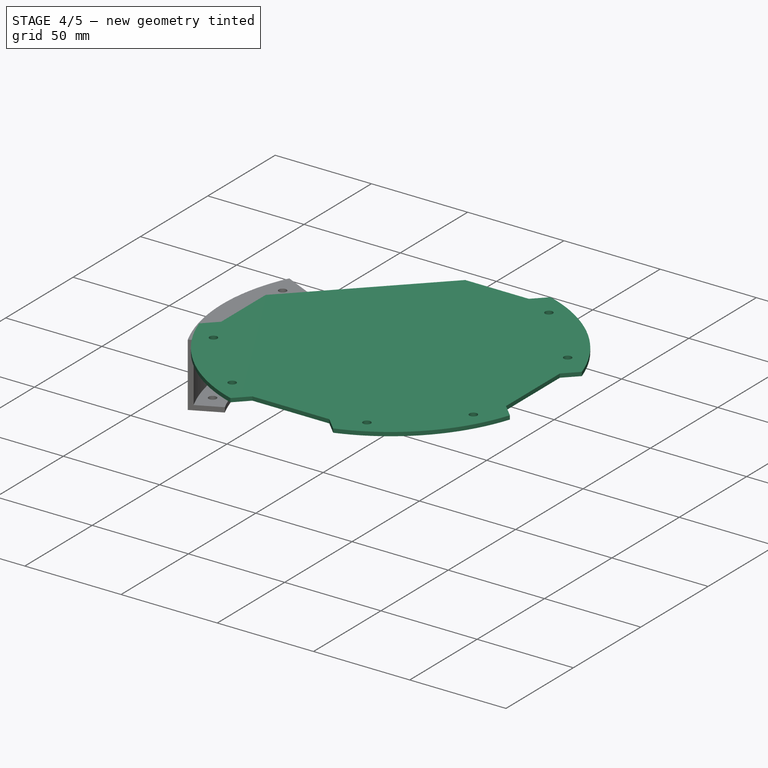
[diagram: stage 4 of 5 — iso view after this stage's code; geometry added in this stage tinted green]
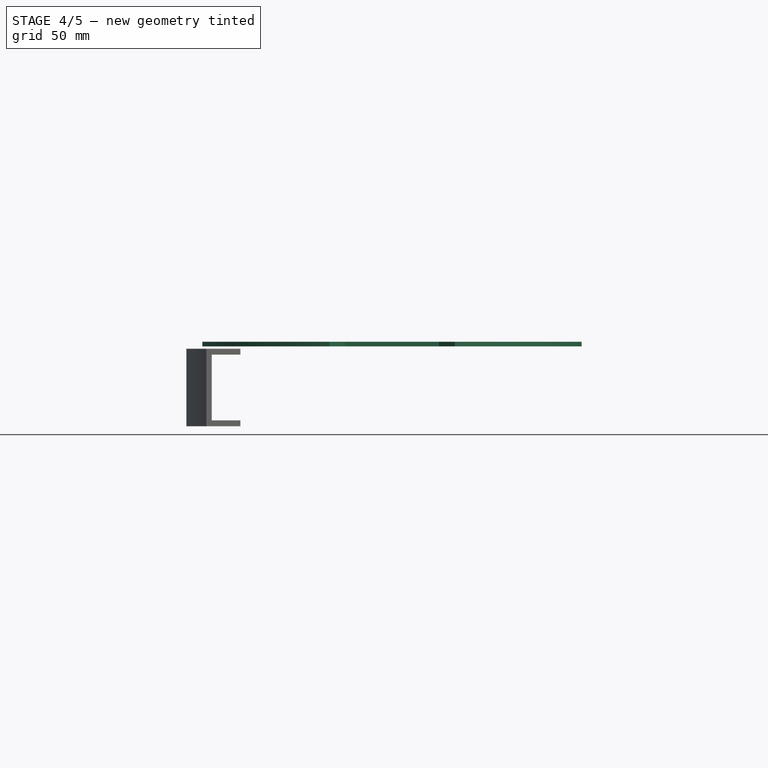
[diagram: stage 4 of 5 — front view after this stage's code; geometry added in this stage tinted green]
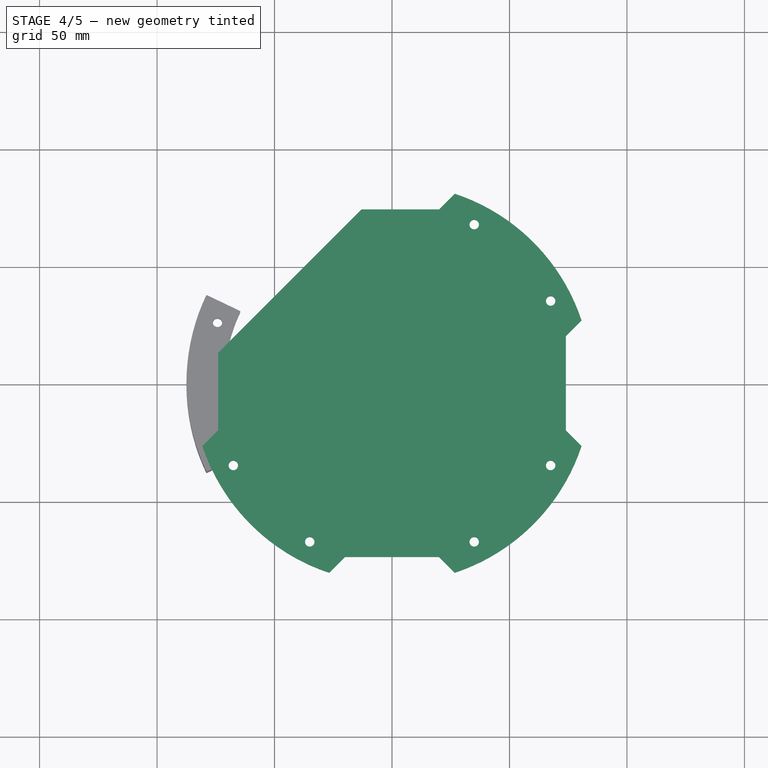
[diagram: stage 4 of 5 — top view after this stage's code; geometry added in this stage tinted green]
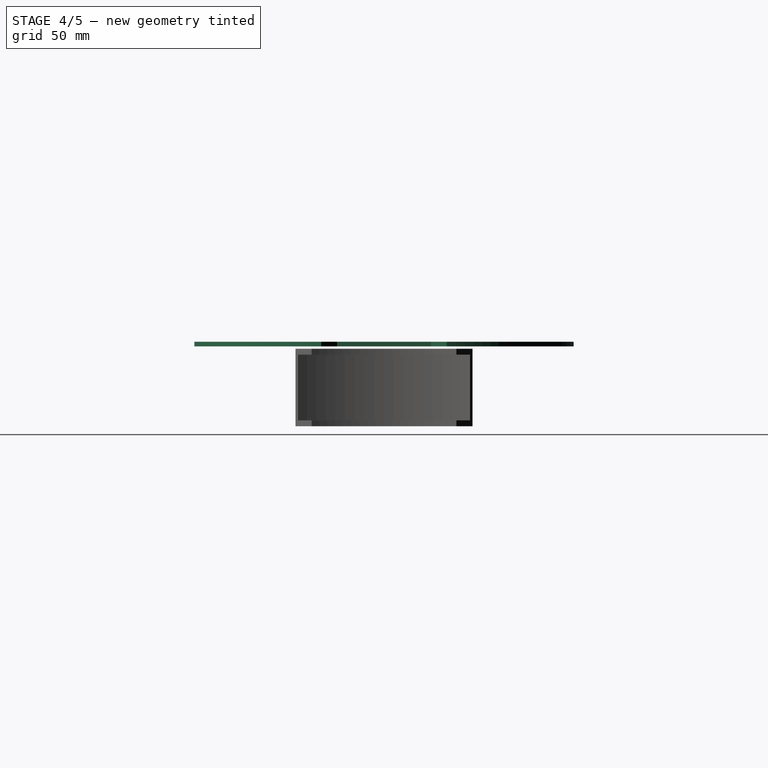
[diagram: stage 4 of 5 — right view after this stage's code; geometry added in this stage tinted green]
FEATURE [Part::Feature] Part__Feature  label="base_® 㬮«砭¨"
  shape: bbox 35.56 x 44.45 x 1.6 mm, 428 faces (baked)
FEATURE [Part::Feature] Part__Feature022  label="960240-6202-AR Body8"
  Placement = pos=(10.16,-1.27,8.5) rot=(0,0,1;0rad)
  shape: bbox 20.32 x 2.54 x 8.5 mm, 114 faces (baked)
FEATURE [Part::Feature] Part__Feature023  label="960240-6202-AR Pin Long"
  Placement = pos=(8.89,0.039993,-0.757199) rot=(1,0,0;1.5708rad)
  shape: bbox 2 x 0.4 x 16.99 mm, 25 faces (baked)
FEATURE [Part::Feature] Part__Feature024  label="960240-6202-AR Pin Long001"
  Placement = pos=(6.35,0.039993,-0.757199) rot=(1,0,0;1.5708rad)
  shape: bbox 2 x 0.4 x 16.99 mm, 25 faces (baked)
FEATURE [Part::Feature] Part__Feature025  label="960240-6202-AR Pin Long002"
  Placement = pos=(3.81,0.039993,-0.757199) rot=(1,0,0;1.5708rad)
  shape: bbox 2 x 0.4 x 16.99 mm, 25 faces (baked)
FEATURE [Part::Feature] Part__Feature026  label="960240-6202-AR Pin Long003"
  Placement = pos=(1.27,0.039993,-0.757199) rot=(1,0,0;1.5708rad)
  shape: bbox 2 x 0.4 x 16.99 mm, 25 faces (baked)
FEATURE [Part::Feature] Part__Feature027  label="960240-6202-AR Pin Long004"
  Placement = pos=(-1.27,0.039993,-0.757199) rot=(1,0,0;1.5708rad)
  shape: bbox 2 x 0.4 x 16.99 mm, 25 faces (baked)
FEATURE [Part::Feature] Part__Feature028  label="960240-6202-AR Pin Long005"
  Placement = pos=(-3.81,0.039993,-0.757199) rot=(1,0,0;1.5708rad)
  shape: bbox 2 x 0.4 x 16.99 mm, 25 faces (baked)
FEATURE [Part::Feature] Part__Feature029  label="960240-6202-AR Pin Long006"
  Placement = pos=(-6.35,0.039993,-0.757199) rot=(1,0,0;1.5708rad)
  shape: bbox 2 x 0.4 x 16.99 mm, 25 faces (baked)
FEATURE [Part::Feature] Part__Feature030  label="960240-6202-AR Pin Long007"
  Placement = pos=(-8.89,0.039993,-0.757199) rot=(1,0,0;1.5708rad)
  shape: bbox 2 x 0.4 x 16.99 mm, 25 faces (baked)
FEATURE [App::Part] _60240_6202_AR_1x8_long  label="Right side I/O pins long"
  Group = -> [Part__Feature022,Part__Feature023,Part__Feature024,Part__Feature025,Part__Feature026,Part__Feature027,Part__Feature028,Part__Feature029,Part__Feature030]
  Origin = -> Origin
  Placement = pos=(33.909,10.414,1.6) rot=(0,0,1;1.5708rad)
FEATURE [Part::Feature] Part__Feature031  label="960240-6202-AR Body009"
  Placement = pos=(10.16,-1.27,8.5) rot=(0,0,1;0rad)
  shape: bbox 20.32 x 2.54 x 8.5 mm, 114 faces (baked)
FEATURE [Part::Feature] Part__Feature032  label="960240-6202-AR Pin Long008"
  Placement = pos=(8.89,0.039993,-0.757199) rot=(1,0,0;1.5708rad)
  shape: bbox 2 x 0.4 x 16.99 mm, 25 faces (baked)
FEATURE [Part::Feature] Part__Feature033  label="960240-6202-AR Pin Long009"
  Placement = pos=(6.35,0.039993,-0.757199) rot=(1,0,0;1.5708rad)
  shape: bbox 2 x 0.4 x 16.99 mm, 25 faces (baked)
FEATURE [Part::Feature] Part__Feature034  label="960240-6202-AR Pin Long010"
  Placement = pos=(3.81,0.039993,-0.757199) rot=(1,0,0;1.5708rad)
  shape: bbox 2 x 0.4 x 16.99 mm, 25 faces (baked)
FEATURE [Part::Feature] Part__Feature035  label="960240-6202-AR Pin Long011"
  Placement = pos=(1.27,0.039993,-0.757199) rot=(1,0,0;1.5708rad)
  shape: bbox 2 x 0.4 x 16.99 mm, 25 faces (baked)
FEATURE [Part::Feature] Part__Feature036  label="960240-6202-AR Pin Long012"
  Placement = pos=(-1.27,0.039993,-0.757199) rot=(1,0,0;1.5708rad)
  shape: bbox 2 x 0.4 x 16.99 mm, 25 faces (baked)
FEATURE [Part::Feature] Part__Feature037  label="960240-6202-AR Pin Long013"
  Placement = pos=(-3.81,0.039993,-0.757199) rot=(1,0,0;1.5708rad)
  shape: bbox 2 x 0.4 x 16.99 mm, 25 faces (baked)
FEATURE [Part::Feature] Part__Feature038  label="960240-6202-AR Pin Long014"
  Placement = pos=(-6.35,0.039993,-0.757199) rot=(1,0,0;1.5708rad)
  shape: bbox 2 x 0.4 x 16.99 mm, 25 faces (baked)
FEATURE [Part::Feature] Part__Feature039  label="960240-6202-AR Pin Long015"
  Placement = pos=(-8.89,0.039993,-0.757199) rot=(1,0,0;1.5708rad)
  shape: bbox 2 x 0.4 x 16.99 mm, 25 faces (baked)
FEATURE [App::Part] _60240_6202_AR_1x8_long001  label="Left side I/O pins"
  Group = -> [Part__Feature031,Part__Feature032,Part__Feature033,Part__Feature034,Part__Feature035,Part__Feature036,Part__Feature037,Part__Feature038,Part__Feature039]
  Origin = -> Origin001
  Placement = pos=(1.651,10.414,1.6) rot=(0,0,1;1.5708rad)
FEATURE [Part::Feature] Part__Feature040  label="960240-6202-AR Body6"
  Placement = pos=(7.62,-1.27,8.5) rot=(0,0,1;0rad)
  shape: bbox 15.24 x 2.54 x 8.5 mm, 88 faces (baked)
FEATURE [Part::Feature] Part__Feature041  label="960240-6202-AR Pin Long016"
  Placement = pos=(6.35,0.039993,-0.757199) rot=(1,0,0;1.5708rad)
  shape: bbox 2 x 0.4 x 16.99 mm, 25 faces (baked)
FEATURE [Part::Feature] Part__Feature042  label="960240-6202-AR Pin Long017"
  Placement = pos=(3.81,0.039993,-0.757199) rot=(1,0,0;1.5708rad)
  shape: bbox 2 x 0.4 x 16.99 mm, 25 faces (baked)
FEATURE [Part::Feature] Part__Feature043  label="960240-6202-AR Pin Long018"
  Placement = pos=(1.27,0.039993,-0.757199) rot=(1,0,0;1.5708rad)
  shape: bbox 2 x 0.4 x 16.99 mm, 25 faces (baked)
FEATURE [Part::Feature] Part__Feature044  label="960240-6202-AR Pin Long019"
  Placement = pos=(-1.27,0.039993,-0.757199) rot=(1,0,0;1.5708rad)
  shape: bbox 2 x 0.4 x 16.99 mm, 25 faces (baked)
FEATURE [Part::Feature] Part__Feature045  label="960240-6202-AR Pin Long020"
  Placement = pos=(-3.81,0.039993,-0.757199) rot=(1,0,0;1.5708rad)
  shape: bbox 2 x 0.4 x 16.99 mm, 25 faces (baked)
FEATURE [Part::Feature] Part__Feature046  label="960240-6202-AR Pin Long021"
  Placement = pos=(-6.35,0.039993,-0.757199) rot=(1,0,0;1.5708rad)
  shape: bbox 2 x 0.4 x 16.99 mm, 25 faces (baked)
FEATURE [App::Part] _60240_6202_AR_1x6_long  label="Right side I/O pins short"
  Group = -> [Part__Feature040,Part__Feature041,Part__Feature042,Part__Feature043,Part__Feature044,Part__Feature045,Part__Feature046]
  Origin = -> Origin002
  Placement = pos=(30.099,12.954,1.6) rot=(0,0,-1;1.5708rad)
FEATURE [Part::Feature] Part__Feature050  label="LED SMD RGB"
  Placement = pos=(3.559,28.499,1.75) rot=(0.57735,0.57735,0.57735;2.0944rad)
  shape: bbox 2.8 x 3.5 x 1.9 mm, 85 faces (baked)
FEATURE [Part::Feature] Part__Feature051  label="LED 1206 IR"
  Placement = pos=(28.321,41.91,1.6) rot=(0,0.707107,0.707107;3.14159rad)
  shape: bbox 1.6 x 3.2 x 1.095 mm, 42 faces, 2 solids (baked)
FEATURE [Part::Feature] Part__Feature052  label="LED 1206 IR001"
  Placement = pos=(7.239,41.91,1.6) rot=(1,0,0;1.5708rad)
  shape: bbox 1.6 x 3.2 x 1.095 mm, 42 faces, 2 solids (baked)
FEATURE [Part::Feature] Part__Feature053  label="SOT 23"
  Placement = pos=(3.429,25.019,2.15) rot=(0,0.707107,0.707107;3.14159rad)
  shape: bbox 3 x 2.5 x 1.1 mm, 49 faces (baked)
FEATURE [Part::Feature] Part__Feature054  label="SOT 024"
  Placement = pos=(20.193,4.064,2.15) rot=(0,0.707107,0.707107;3.14159rad)
  shape: bbox 3 x 2.5 x 1.1 mm, 49 faces (baked)
FEATURE [Part::Feature] Part__Feature062  label="EXBV8V"
  Placement = pos=(6.4748,30.1505,1.59) rot=(0,0,1;1.5708rad)
  shape: bbox 1.6 x 3.2 x 0.52 mm, 170 faces (baked)
FEATURE [Part::Feature] Part__Feature063  label="EXBV8V001"
  Placement = pos=(28.448,31.496,1.6) rot=(0,0,1;0rad)
  shape: bbox 3.2 x 1.6 x 0.52 mm, 170 faces (baked)
FEATURE [Part::Feature] Part__Feature064  label="EXBV8V002"
  Placement = pos=(28.448,25.019,1.6) rot=(0,0,1;0rad)
  shape: bbox 3.2 x 1.6 x 0.52 mm, 170 faces (baked)
FEATURE [Part::Feature] Part__Feature065  label="User Library-LQFP100-3_case"
  Placement = pos=(0,0.92,0) rot=(0,0,1;0rad)
  shape: bbox 13.97 x 1.4 x 13.97 mm, 31 faces (baked)
FEATURE [App::Part] User_Library_LQFP100_3  label="Microprocessor"
  Group = -> [Part__Feature065]
  Origin = -> Origin003
  Placement = pos=(17.78,16.383,1.6) rot=(1,0,0;1.5708rad)
FEATURE [Part::Feature] Part__Feature167  label="SOT 23-5"
  Placement = pos=(26.67,36.83,2.15) rot=(0.57735,-0.57735,-0.57735;2.0944rad)
  shape: bbox 2.5 x 3 x 1.1 mm, 75 faces (baked)
FEATURE [Part::Feature] Part__Feature168  label="SOT 23-006"
  Placement = pos=(15.113,4.572,2.15) rot=(0,0.707107,0.707107;3.14159rad)
  shape: bbox 3 x 2.5 x 1.1 mm, 75 faces (baked)
FEATURE [Part::Feature] Part__Feature169  label="UJ2-MIBH2-4-SMT_01_Defaut"
  shape: bbox 5.297 x 7.502 x 3.412 mm, 268 faces (baked)
FEATURE [App::Part] UJ2_MIBH2_4_SMT_Defaut  label="USB port"
  Group = -> [Part__Feature169]
  Origin = -> Origin004
  Placement = pos=(30.42,-1.4925,3.54996) rot=(0,0,1;1.5708rad)
FEATURE [Part::Feature] Part__Feature171  label="1040310811_USD1040310811_® 㬮«砭¨쥀
«?"
  Placement = pos=(27.5125,71.8621,-0.6) rot=(0.707107,-0.707107,0;3.14159rad)
  shape: bbox 11.43 x 11.98 x 1.48 mm, 410 faces (baked)
FEATURE [Part::Feature] Part__Feature172  label="DF12-36DS-0.5V_® 㬮«砭¨"
  Placement = pos=(15.63,42.14,1.6) rot=(0,0,1;3.14159rad)
  shape: bbox 12.11 x 4.614 x 3.314 mm, 836 faces (baked)
FEATURE [Part::Feature] Part__Feature173  label="S2B-PH-K-S(LF)(SN)_® 㬮«砭¨"
  Placement = pos=(7.112,7.7,1.6) rot=(1,0,0;1.5708rad)
  shape: bbox 5.9 x 7.6 x 8.183 mm, 100 faces, 3 solids (baked)
FEATURE [Part::Feature] Part__Feature174  label="Crystal-SM2520-4"
  Placement = pos=(5.969,16.764,1.6) rot=(0,0,1;0rad)
  shape: bbox 2.5 x 2 x 0.825 mm, 72 faces, 5 solids (baked)
FEATURE [Part::Feature] Part__Feature175  label="Standoff metal 5x2.5mm_® 㬮«砭¨"
  Placement = pos=(33.02,36.2,1.6) rot=(1,0,0;1.5708rad)
  shape: bbox 5 x 5 x 5 mm, 6 faces (baked)
FEATURE [Part::Feature] Part__Feature176  label="Standoff metal 5x2.5mm_® 㬮«砭¨001"
  Placement = pos=(2.54,36.2,6.6) rot=(-1,0,0;1.5708rad)
  shape: bbox 5 x 5 x 5 mm, 6 faces (baked)
FEATURE [App::Part] openmv4_h7_base________________  label="PCB "
  Group = -> [Part__Feature,_60240_6202_AR_1x8_long,_60240_6202_AR_1x8_long001,_60240_6202_AR_1x6_long,Part__Feature050,Part__Feature051,Part__Feature052,Part__Feature053,Part__Feature054,Part__Feature062,Part__Feature063,Part__Feature064,User_Library_LQFP100_3,Part__Feature167,Part__Feature168,UJ2_MIBH2_4_SMT_Defaut,Part__Feature171,Part__Feature172,Part__Feature173,Part__Feature174,Part__Feature175,+1 more]
  Origin = -> Origin005
FEATURE [Part::Feature] Part__Feature177  label="ov7725_® 㬮«砭¨"
  shape: bbox 35.56 x 16.51 x 1.6 mm, 134 faces (baked)
FEATURE [Part::Feature] Part__Feature178  label="mount_lens"
  Placement = pos=(8.255,8.255,1.6) rot=(0,0,1;0rad)
  shape: bbox 23.8 x 17 x 14.3 mm, 58 faces (baked)
FEATURE [Part::Feature] Part__Feature179  label="DF1236"
  Placement = pos=(37.855,-65.4,0) rot=(0,1,0;3.14159rad)
  shape: bbox 12.1 x 4.6 x 4.9 mm, 1562 faces (baked)
FEATURE [App::Part] openmv4_ov7725________________  label="Lens mount"
  Group = -> [Part__Feature177,Part__Feature178,Part__Feature179]
  Origin = -> Origin006
  Placement = pos=(9.525,27.945,6.6) rot=(0,0,1;0rad)
FEATURE [Part::Feature] Part__Feature181  label="pan head cross recess screw_iso_ISO 7045 - M2.5 x 5 - Z - 5N"
  Placement = pos=(33.02,36.2,12.1) rot=(0,1,0;1.5708rad)
  shape: bbox 5.412 x 5.412 x 7.1 mm, 43 faces (baked)
FEATURE [Part::Feature] Part__Feature182  label="pan head cross recess screw_iso_ISO 7045 - M2.5 x 5 - Z - 5N001"
  Placement = pos=(2.54,36.2,12.1) rot=(0,1,0;1.5708rad)
  shape: bbox 5.412 x 5.412 x 7.1 mm, 43 faces (baked)
FEATURE [Part::Feature] Part__Feature183  label="microsd card"
  Placement = pos=(48.2048,51.1529,-0.388376) rot=(-0.707107,0.707107,0;3.14159rad)
  shape: bbox 15 x 11.07 x 1 mm, 19 faces (baked)
FEATURE [Part::Feature] Part__Feature184  label="LENS_Standard_® 㬮«砭¨"
  Placement = pos=(17.78,36.2,16.7534) rot=(1,0,0;1.5708rad)
  shape: bbox 14 x 14 x 16.7 mm, 16 faces (baked)
FEATURE [Part::Feature] Part__Feature186  label="Micro USB connector"
  Placement = pos=(26.6352,-11.6075,-1.10004) rot=(0.57735,0.57735,0.57735;4.18879rad)
  shape: bbox 12.26 x 29.6 x 16 mm, 326 faces (baked)
FEATURE [Part::Feature] Part__Feature187  label="pan head cross recess screw_iso_ISO 7045 - M1 x 4 - Z - 4S"
  Placement = pos=(17.78,47.3586,20.3) rot=(0.004126,-0.004126,-0.999983;1.57081rad)
  shape: bbox 2.165 x 5 x 2.165 mm, 92 faces (baked)
FEATURE [Sketcher::SketchObject] Sketch
  FullyConstrained = true
  MapMode = 5
  Support = -> [XY_Plane008]
  sketch-geometry (1):
    g0: Circle CenterX=0 CenterY=0 CenterZ=0 NormalX=0 NormalY=0 NormalZ=1 AngleXU=0 Radius=85
  constraints (2):
    c: Coincident(g0,g-1)
    c: Diameter(g0) = 170
FEATURE [Sketcher::SketchObject] Sketch005
  FullyConstrained = true
  MapMode = 5
  Placement = pos=(0,0,0) rot=(1,0,0;1.5708rad)
  Support = -> [XZ_Plane009]
  sketch-geometry (6):
    g0: ArcOfHyperbola CenterX=0 CenterY=104.5 CenterZ=0 NormalX=0 NormalY=0 NormalZ=1 MajorRadius=7.5 MinorRadius=9.48683 AngleXU=1.5708 StartAngle=3e-16 EndAngle=1.491
    g1: LineSegment StartX=3.1e-15 StartY=112 StartZ=0 EndX=-3.1e-15 EndY=97 EndZ=0
    g2: LineSegment StartX=-9.48683 StartY=112 StartZ=0 EndX=9.48683 EndY=112 EndZ=0
    g3: GeomPoint X=5e-15 Y=116.593 Z=0
    g4: LineSegment StartX=-20 StartY=122 StartZ=0 EndX=0 EndY=122 EndZ=0
    g5: LineSegment StartX=0 StartY=112 StartZ=0 EndX=0 EndY=122 EndZ=0
  constraints (15):
    c: InternalAlignment(g1,g0)
    c: InternalAlignment(g2,g0)
    c: InternalAlignment(g3,g0)
    c: Horizontal(g2)
    c: PointOnObject(g0,g-2)
    c: PointOnObject(g0,g-2)
    c: DistanceY(g0,g0) = 10
    c: DistanceX(g0,g0) = 20
    c: DistanceY(g1,g0) = 15
    c: Coincident(g4,g0)
    c: Coincident(g5,g0)
    c: Coincident(g5,g4)
    c: Vertical(g5)
    c: Horizontal(g4)
    c: DistanceY(g-1,g0) = 112
FEATURE [PartDesign::Pad] Pad  label="Structural layer"
  Direction = (0,0,1)
  Length = 2
  Length2 = 10
  Profile = -> Sketch
  ReferenceAxis = -> Sketch [N_Axis]
  Type = 0
FEATURE [Sketcher::SketchObject] Sketch001
  ExternalGeometry = -> [Pad]
  FullyConstrained = false
  MapMode = 5
  Placement = pos=(0,0,2) rot=(0,0,1;0rad)
  Support = -> [Pad]
  sketch-geometry (8):
    g0: LineSegment StartX=-21.9277 StartY=94.8912 StartZ=0 EndX=38.0723 EndY=89.6419 EndZ=0
    g1: LineSegment StartX=38.0723 StartY=89.6419 StartZ=0 EndX=36.9277 EndY=76.5594 EndZ=0
    g2: LineSegment StartX=25.0102 StartY=66.5594 StartZ=0 EndX=-13.0723 EndY=69.8912 EndZ=0
    g3: LineSegment StartX=-23.0723 StartY=81.8087 StartZ=0 EndX=-21.9277 EndY=94.8912 EndZ=0
    g4: GeomPoint X=8.07228 Y=84.6158 Z=0
    g5: LineSegment StartX=25.0102 StartY=66.5594 StartZ=0 EndX=36.9277 EndY=76.5594 EndZ=0
    g6: LineSegment StartX=-23.0723 StartY=81.8087 StartZ=0 EndX=-13.0723 EndY=69.8912 EndZ=0
    g7: LineSegment StartX=-98.5158 StartY=73.9906 StartZ=0 EndX=89.0577 EndY=57.58 EndZ=0
  constraints (21):
    c: Coincident(g0,g1)
    c: Coincident(g3,g0)
    c: DistanceX(g0,g0) = 60
    c: DistanceX(g0,g4) = 30
    c: PointOnObject(g4,g-3)
    c: Coincident(g5,g2)
    c: Coincident(g5,g1)
    c: Coincident(g6,g3)
    c: Coincident(g6,g2)
    c: Angle(g5,g2) = 2.35619
    c: Angle(g2,g6) = 2.35619
    c: DistanceY(g2,g0) = 25
    c: DistanceX(g3,g2) = 10
    c: Angle(g7,g-1) = 0.0872665
    c: Parallel(g2,g7)
    c: Parallel(g0,g2)
    c: Perpendicular(g7,g1)
    c: Equal(g1,g3)
    c: Parallel(g1,g3)
    c: PointOnObject(g3,g-3)
    c: PointOnObject(g1,g-3)
FEATURE [PartDesign::Pocket] Pocket
  BaseFeature = -> Pad
  Direction = (0,0,-1)
  Length = 5
  Length2 = 5
  Profile = -> Sketch001
  ReferenceAxis = -> Sketch001 [N_Axis]
  Type = 1
FEATURE [PartDesign::PolarPattern] PolarPattern
  Angle = 360
  Axis = -> Sketch001 [N_Axis]
  BaseFeature = -> Pocket
  Occurrences = 4
  Originals = -> [Pocket]
FEATURE [Sketcher::SketchObject] Sketch006  label="Angle de vision 1"
  FullyConstrained = false
  MapMode = 5
  Placement = pos=(0,0,0) rot=(0.57735,0.57735,0.57735;2.0944rad)
  Support = -> [YZ_Plane009]
  sketch-geometry (2):
    g0: LineSegment StartX=0 StartY=83.2694 StartZ=0 EndX=33.5917 EndY=131.243 EndZ=0
    g1: LineSegment StartX=0 StartY=83.2694 StartZ=0 EndX=-33.5917 EndY=131.243 EndZ=0
  constraints (4):
    c: PointOnObject(g0,g-2)
    c: Coincident(g1,g0)
    c: Angle(g0,g1) = 1.22173
    c: Symmetric(g1,g0,g-2)
FEATURE [Sketcher::SketchObject] Sketch007  label="Angle de vision 2"
  ExternalGeometry = -> [Sketch006]
  FullyConstrained = false
  MapMode = 5
  Placement = pos=(0,0,0) rot=(1,0,0;1.5708rad)
  Support = -> [XZ_Plane009]
  sketch-geometry (2):
    g0: LineSegment StartX=-26.0986 StartY=133.404 StartZ=0 EndX=-1.78e-14 EndY=83.2694 EndZ=0
    g1: LineSegment StartX=-1.78e-14 StartY=83.2694 StartZ=0 EndX=26.0986 EndY=133.404 EndZ=0
  constraints (4):
    c: Coincident(g1,g0)
    c: Angle(g1,g0) = 0.959931
    c: Symmetric(g1,g0,g-2)
    c: Coincident(g0,g-3)
FEATURE [Sketcher::SketchObject] Sketch015
  ExternalGeometry = -> [PolarPattern]
  FullyConstrained = true
  MapMode = 5
  Placement = pos=(0,0,2) rot=(0,0,1;0rad)
  Support = -> [PolarPattern]
  sketch-geometry (4):
    g0: LineSegment StartX=-105 StartY=42 StartZ=0 EndX=-42 EndY=105 EndZ=0
    g1: LineSegment StartX=-42 StartY=105 StartZ=0 EndX=-12 EndY=75 EndZ=0
    g2: LineSegment StartX=-12 StartY=75 StartZ=0 EndX=-75 EndY=12 EndZ=0
    g3: LineSegment StartX=-75 StartY=12 StartZ=0 EndX=-105 EndY=42 EndZ=0
  constraints (12):
    c: Coincident(g0,g1)
    c: Coincident(g1,g2)
    c: Coincident(g2,g3)
    c: Coincident(g3,g0)
    c: Equal(g3,g1)
    c: Equal(g0,g2)
    c: Angle(g3,g0) = 1.5708
    c: DistanceX(g2,g-1) = 75
    c: DistanceY(g-1,g1) = 75
    c: DistanceX(g0,g1) = 30
    c: DistanceX(g2,g1) = 63
    c: Angle(g-1,g2) = 0.785398
FEATURE [PartDesign::Pocket] Pocket004
  BaseFeature = -> PolarPattern
  Direction = (0,0,-1)
  Length = 5
  Length2 = 5
  Profile = -> Sketch015
  ReferenceAxis = -> Sketch015 [N_Axis]
  Type = 1
FEATURE [Part::Part2DObjectPython] InvoluteGear002  # Draft 2D object (typed FeaturePython)
  AddendumCoefficient = 1
  DedendumCoefficient = 1.25
  ExternalGear = true
  HighPrecision = false
  Modules = 0.72
  NumberOfTeeth = 28
  PressureAngle = 20
  ProfileShiftCoefficient = 0
  RootFilletCoefficient = 0.38
FEATURE [Sketcher::SketchObject] Sketch040
  FullyConstrained = true
  MapMode = 5
  Support = -> [XY_Plane042]
  sketch-geometry (1):
    g0: Circle CenterX=0 CenterY=0 CenterZ=0 NormalX=0 NormalY=0 NormalZ=1 AngleXU=0 Radius=12.5
  constraints (2):
    c: Coincident(g0,g-1)
    c: Diameter(g0) = 25
FEATURE [PartDesign::Pad] Pad023
  Direction = (0,0,1)
  Length = 2
  Length2 = 10
  Profile = -> Sketch040
  ReferenceAxis = -> Sketch040 [N_Axis]
  Type = 0
FEATURE [PartDesign::Pocket] Pocket012
  BaseFeature = -> Pad023
  Direction = (0,0,-1)
  Length = 5
  Length2 = 5
  Profile = -> InvoluteGear002
  ReferenceAxis = -> InvoluteGear002 [N_Axis]
  Reversed = true
  Type = 1
FEATURE [Sketcher::SketchObject] Sketch041
  FullyConstrained = false
  MapMode = 5
  Placement = pos=(0,0,2) rot=(0,0,1;0rad)
  Support = -> [Pocket012]
  sketch-geometry (1):
    g0: Circle CenterX=0 CenterY=0 CenterZ=0 NormalX=0 NormalY=0 NormalZ=1 AngleXU=0 Radius=12.5
  constraints (1):
    c: Diameter(g0) = 25
FEATURE [PartDesign::Pad] Pad024
  BaseFeature = -> Pocket012
  Direction = (0,0,1)
  Length = 1.5
  Length2 = 10
  Profile = -> Sketch041
  ReferenceAxis = -> Sketch041 [N_Axis]
  Type = 0
FEATURE [Sketcher::SketchObject] Sketch042
  FullyConstrained = true
  MapMode = 5
  Placement = pos=(0,0,3.5) rot=(0,0,1;0rad)
  Support = -> [Pad024]
  sketch-geometry (12):
    g0: LineSegment StartX=-8.77496 StartY=-2 StartZ=0 EndX=-2 EndY=-2 EndZ=0
    g1: LineSegment StartX=-8.77496 StartY=2 StartZ=0 EndX=-2 EndY=2 EndZ=0
    g2: LineSegment StartX=-2 StartY=2 StartZ=0 EndX=-2 EndY=8.77496 EndZ=0
    g3: LineSegment StartX=-2 StartY=-2 StartZ=0 EndX=-2 EndY=-8.77496 EndZ=0
    g4: LineSegment StartX=2 StartY=-8.77496 StartZ=0 EndX=2 EndY=-2 EndZ=0
    g5: LineSegment StartX=2 StartY=-2 StartZ=0 EndX=8.77496 EndY=-2 EndZ=0
    g6: LineSegment StartX=2 StartY=2 StartZ=0 EndX=8.77496 EndY=2 EndZ=0
    g7: LineSegment StartX=2 StartY=2 StartZ=0 EndX=2 EndY=8.77496 EndZ=0
    g8: ArcOfCircle CenterX=0 CenterY=0 CenterZ=0 NormalX=0 NormalY=0 NormalZ=1 AngleXU=0 Radius=9 StartAngle=1.79489 EndAngle=2.9175
    g9: ArcOfCircle CenterX=0 CenterY=0 CenterZ=0 NormalX=0 NormalY=0 NormalZ=1 AngleXU=0 Radius=9 StartAngle=0.224093 EndAngle=1.3467
    g10: ArcOfCircle CenterX=0 CenterY=0 CenterZ=0 NormalX=0 NormalY=0 NormalZ=1 AngleXU=0 Radius=9 StartAngle=3.36569 EndAngle=4.4883
    g11: ArcOfCircle CenterX=0 CenterY=0 CenterZ=0 NormalX=0 NormalY=0 NormalZ=1 AngleXU=0 Radius=9 StartAngle=4.93648 EndAngle=6.05909
  constraints (33):
    c: Horizontal(g0)
    c: Horizontal(g1)
    c: Coincident(g2,g1)
    c: Vertical(g2)
    c: Coincident(g3,g0)
    c: Vertical(g3)
    c: Vertical(g4)
    c: Coincident(g5,g4)
    c: Horizontal(g5)
    c: Horizontal(g6)
    c: Coincident(g7,g6)
    c: Vertical(g7)
    c: Symmetric(g2,g7,g-2)
    c: Symmetric(g1,g0,g-1)
    c: Symmetric(g5,g6,g-1)
    c: Symmetric(g3,g4,g-2)
    c: Coincident(g8,g-1)
    c: Coincident(g8,g1)
    c: Coincident(g8,g2)
    c: Coincident(g9,g8)
    c: Coincident(g9,g7)
    c: Coincident(g9,g6)
    c: Coincident(g10,g8)
    c: Coincident(g10,g0)
    c: Coincident(g10,g3)
    c: DistanceX(g1,g6) = 4
    c: DistanceX(g0,g4) = 4
    c: DistanceY(g4,g6) = 4
    c: DistanceY(g0,g1) = 4
    c: Coincident(g11,g8)
    c: Coincident(g11,g5)
    c: Radius(g11) = 9
    c: DistanceX(g4,g11) = 0
FEATURE [PartDesign::Pocket] Pocket013
  BaseFeature = -> Pad024
  Direction = (0,0,-1)
  Length = 5
  Length2 = 5
  Profile = -> Sketch042
  ReferenceAxis = -> Sketch042 [N_Axis]
  Type = 1
FEATURE [Sketcher::SketchObject] Sketch043
  ExternalGeometry = -> [Pocket013]
  FullyConstrained = true
  MapMode = 5
  Placement = pos=(0,0,3.5) rot=(0,0,1;0rad)
  Support = -> [Pocket013]
  sketch-geometry (1):
    g0: Circle CenterX=0 CenterY=0 CenterZ=0 NormalX=0 NormalY=0 NormalZ=1 AngleXU=0 Radius=2
  constraints (2):
    c: Coincident(g0,g-1)
    c: Diameter(g0) = 4
FEATURE [PartDesign::Pad] Pad025
  BaseFeature = -> Pocket013
  Direction = (0,0,1)
  Length = 12
  Length2 = 10
  Profile = -> Sketch043
  ReferenceAxis = -> Sketch043 [N_Axis]
  Type = 0
FEATURE [Sketcher::SketchObject] Sketch045
  FullyConstrained = false
  MapMode = 5
  Placement = pos=(0,0,2) rot=(0,0,1;0rad)
  Support = -> [Pocket014]
  sketch-geometry (1):
    g0: Circle CenterX=0 CenterY=0 CenterZ=0 NormalX=0 NormalY=0 NormalZ=1 AngleXU=0 Radius=12.5
  constraints (1):
    c: Diameter(g0) = 25
FEATURE [PartDesign::Pad] Pad027
  BaseFeature = -> Pocket014
  Direction = (0,0,1)
  Length = 1.5
  Length2 = 10
  Profile = -> Sketch045
  ReferenceAxis = -> Sketch045 [N_Axis]
  Type = 0
FEATURE [Sketcher::SketchObject] Sketch046
  FullyConstrained = true
  MapMode = 5
  Placement = pos=(0,0,3.5) rot=(0,0,1;0rad)
  Support = -> [Pad027]
  sketch-geometry (12):
    g0: LineSegment StartX=-8.77496 StartY=-2 StartZ=0 EndX=-2 EndY=-2 EndZ=0
    g1: LineSegment StartX=-8.77496 StartY=2 StartZ=0 EndX=-2 EndY=2 EndZ=0
    g2: LineSegment StartX=-2 StartY=2 StartZ=0 EndX=-2 EndY=8.77496 EndZ=0
    g3: LineSegment StartX=-2 StartY=-2 StartZ=0 EndX=-2 EndY=-8.77496 EndZ=0
    g4: LineSegment StartX=2 StartY=-8.77496 StartZ=0 EndX=2 EndY=-2 EndZ=0
    g5: LineSegment StartX=2 StartY=-2 StartZ=0 EndX=8.77496 EndY=-2 EndZ=0
    g6: LineSegment StartX=2 StartY=2 StartZ=0 EndX=8.77496 EndY=2 EndZ=0
    g7: LineSegment StartX=2 StartY=2 StartZ=0 EndX=2 EndY=8.77496 EndZ=0
    g8: ArcOfCircle CenterX=0 CenterY=0 CenterZ=0 NormalX=0 NormalY=0 NormalZ=1 AngleXU=0 Radius=9 StartAngle=1.79489 EndAngle=2.9175
    g9: ArcOfCircle CenterX=0 CenterY=0 CenterZ=0 NormalX=0 NormalY=0 NormalZ=1 AngleXU=0 Radius=9 StartAngle=0.224093 EndAngle=1.3467
    g10: ArcOfCircle CenterX=0 CenterY=0 CenterZ=0 NormalX=0 NormalY=0 NormalZ=1 AngleXU=0 Radius=9 StartAngle=3.36569 EndAngle=4.4883
    g11: ArcOfCircle CenterX=0 CenterY=0 CenterZ=0 NormalX=0 NormalY=0 NormalZ=1 AngleXU=0 Radius=9 StartAngle=4.93648 EndAngle=6.05909
  constraints (33):
    c: Horizontal(g0)
    c: Horizontal(g1)
    c: Coincident(g2,g1)
    c: Vertical(g2)
    c: Coincident(g3,g0)
    c: Vertical(g3)
    c: Vertical(g4)
    c: Coincident(g5,g4)
    c: Horizontal(g5)
    c: Horizontal(g6)
    c: Coincident(g7,g6)
    c: Vertical(g7)
    c: Symmetric(g2,g7,g-2)
    c: Symmetric(g1,g0,g-1)
    c: Symmetric(g5,g6,g-1)
    c: Symmetric(g3,g4,g-2)
    c: Coincident(g8,g-1)
    c: Coincident(g8,g1)
    c: Coincident(g8,g2)
    c: Coincident(g9,g8)
    c: Coincident(g9,g7)
    c: Coincident(g9,g6)
    c: Coincident(g10,g8)
    c: Coincident(g10,g0)
    c: Coincident(g10,g3)
    c: DistanceX(g1,g6) = 4
    c: DistanceX(g0,g4) = 4
    c: DistanceY(g4,g6) = 4
    c: DistanceY(g0,g1) = 4
    c: Coincident(g11,g8)
    c: Coincident(g11,g5)
    c: Radius(g11) = 9
    c: DistanceX(g4,g11) = 0
FEATURE [PartDesign::Pocket] Pocket015
  BaseFeature = -> Pad027
  Direction = (0,0,-1)
  Length = 5
  Length2 = 5
  Profile = -> Sketch046
  ReferenceAxis = -> Sketch046 [N_Axis]
  Type = 1
FEATURE [Sketcher::SketchObject] Sketch047
  ExternalGeometry = -> [Pocket015]
  FullyConstrained = true
  MapMode = 5
  Placement = pos=(0,0,3.5) rot=(0,0,1;0rad)
  Support = -> [Pocket015]
  sketch-geometry (1):
    g0: Circle CenterX=0 CenterY=0 CenterZ=0 NormalX=0 NormalY=0 NormalZ=1 AngleXU=0 Radius=2
  constraints (2):
    c: Coincident(g0,g-1)
    c: Diameter(g0) = 4
FEATURE [PartDesign::Pad] Pad028
  BaseFeature = -> Pocket015
  Direction = (0,0,1)
  Length = 12
  Length2 = 10
  Profile = -> Sketch047
  ReferenceAxis = -> Sketch047 [N_Axis]
  Type = 0
FEATURE [PartDesign::Body] Body023  label="LiDAR"
  Group = -> [Sketch058,Pad041,Sketch059,Pad042,Fillet,Fillet003,Fillet004]
  Origin = -> Origin048
  Placement = pos=(0,0,11) rot=(0,0,1;0rad)
  Tip = -> Fillet004
FEATURE [Part::Feature] Part__Feature330  label="Motor 3"
  Placement = pos=(34.6,-27.4,0) rot=(0.281085,0.678598,-0.678598;3.68962rad)
  shape: bbox 39.39 x 39.39 x 127.5 mm, 74 faces (baked)
FEATURE [Sketcher::SketchObject] Sketch061
  FullyConstrained = true
  MapMode = 5
  Placement = pos=(0,0,2) rot=(0,0,1;0rad)
  sketch-geometry (1):
    g0: Circle CenterX=0 CenterY=0 CenterZ=0 NormalX=0 NormalY=0 NormalZ=1 AngleXU=0 Radius=12.5
  constraints (2):
    c: Coincident(g0,g-1)
    c: Diameter(g0) = 25
FEATURE [PartDesign::Pocket] Pocket019
  BaseFeature = -> Pocket004
  Direction = (0,0,-1)
  Length = 5
  Length2 = 5
  Profile = -> Sketch061
  ReferenceAxis = -> Sketch061 [N_Axis]
  Type = 1
FEATURE [PartDesign::Body] Body041  label="Moteur support 4"
  Group = -> [Sketch096,Pad068,Sketch097,Pad069,Sketch098,Pocket036,Sketch099,Pocket037,PolarPattern015]
  Origin = -> Origin244
  Placement = pos=(-53.7201,-53.7201,-7) rot=(0,0,1;2.35619rad)
  Tip = -> PolarPattern015
FEATURE [App::Part] Part008  label="Motor assembly 4"
  Group = -> [Part__Feature331,Body019,Body022,OmniWheel056,Body028,Body041]
  Origin = -> Origin041
  Placement = pos=(0,0,0) rot=(0,0,1;0.087266rad)
FEATURE [App::Part] Part003  label="Powertrain"
  Group = -> [Part005,Part006,Part007,Part008]
  Origin = -> Origin034
  Placement = pos=(0,0,-11) rot=(0,0,1;0rad)
FEATURE [PartDesign::SubShapeBinder] Binder005
  BindCopyOnChange = 0
  BindMode = 0
  ClaimChildren = false
  Context = -> Body [Binder005.]
  Fuse = false
  MakeFace = true
  OffsetFill = false
  OffsetIntersection = false
  OffsetJoinType = 0
  OffsetOpenResult = false
  PartialLoad = false
  Relative = true
  Support = -> [Part003[Part006.Body039.Pocket032.Sketch090.]]
  _Version = 2
FEATURE [PartDesign::Pocket] Pocket031
  BaseFeature = -> Pocket019
  Direction = (-2e-16,-6e-16,-1)
  Length = 5
  Length2 = 5
  Profile = -> Binder
  Reversed = true
  Type = 1
FEATURE [PartDesign::Pocket] Pocket038
  BaseFeature = -> Pocket031
  Direction = (-7e-16,1e-16,-1)
  Length = 5
  Length2 = 5
  Profile = -> Binder005
  Reversed = true
  Type = 1
FEATURE [PartDesign::SubShapeBinder] Binder006
  BindCopyOnChange = 0
  BindMode = 0
  ClaimChildren = false
  Context = -> Body [Binder006.]
  Fuse = false
  MakeFace = true
  OffsetFill = false
  OffsetIntersection = false
  OffsetJoinType = 0
  OffsetOpenResult = false
  PartialLoad = false
  Relative = true
  Support = -> [Part003[Part007.Body040.Pocket034.Sketch094.]]
  _Version = 2
FEATURE [PartDesign::Pocket] Pocket039
  BaseFeature = -> Pocket038
  Direction = (2e-16,6e-16,-1)
  Length = 5
  Length2 = 5
  Profile = -> Binder006
  Reversed = true
  Type = 1
FEATURE [PartDesign::SubShapeBinder] Binder007
  BindCopyOnChange = 0
  BindMode = 0
  ClaimChildren = false
  Context = -> Body [Binder007.]
  Fuse = false
  MakeFace = true
  OffsetFill = false
  OffsetIntersection = false
  OffsetJoinType = 0
  OffsetOpenResult = false
  PartialLoad = false
  Relative = true
  Support = -> [Part003[Part008.Body041.Pocket036.Sketch098.]]
  _Version = 2
FEATURE [PartDesign::Pocket] Pocket040
  BaseFeature = -> Pocket039
  Direction = (7e-16,-1e-16,-1)
  Length = 5
  Length2 = 5
  Profile = -> Binder007
  Reversed = true
  Type = 1
FEATURE [Sketcher::SketchObject] Sketch102
  FullyConstrained = true
  MapMode = 5
  Support = -> [XY_Plane248]
  sketch-geometry (1):
    g0: Circle CenterX=0 CenterY=0 CenterZ=0 NormalX=0 NormalY=0 NormalZ=1 AngleXU=0 Radius=85
  constraints (2):
    c: Coincident(g0,g-1)
    c: Diameter(g0) = 170
FEATURE [PartDesign::Pad] Pad070  label="Structural layer001"
  Direction = (0,0,1)
  Length = 2
  Length2 = 10
  Profile = -> Sketch102
  ReferenceAxis = -> Sketch102 [N_Axis]
  Type = 0
FEATURE [Sketcher::SketchObject] Sketch103
  ExternalGeometry = -> [Pad070]
  FullyConstrained = true
  MapMode = 5
  Placement = pos=(0,0,2) rot=(0,0,1;0rad)
  Support = -> [Pad070]
  sketch-geometry (7):
    g0: LineSegment StartX=-30 StartY=99 StartZ=0 EndX=30 EndY=99 EndZ=0
    g1: LineSegment StartX=30 StartY=99 StartZ=0 EndX=30 EndY=84 EndZ=0
    g2: LineSegment StartX=20 StartY=74 StartZ=0 EndX=-20 EndY=74 EndZ=0
    g3: LineSegment StartX=-30 StartY=84 StartZ=0 EndX=-30 EndY=99 EndZ=0
    g4: GeomPoint X=2.8e-15 Y=85 Z=0
    g5: LineSegment StartX=20 StartY=74 StartZ=0 EndX=30 EndY=84 EndZ=0
    g6: LineSegment StartX=-30 StartY=84 StartZ=0 EndX=-20 EndY=74 EndZ=0
  constraints (18):
    c: Coincident(g0,g1)
    c: Coincident(g3,g0)
    c: Vertical(g3)
    c: Vertical(g1)
    c: Symmetric(g0,g0,g-2)
    c: DistanceX(g0,g0) = 60
    c: DistanceX(g0,g4) = 30
    c: PointOnObject(g4,g-3)
    c: Coincident(g5,g2)
    c: Coincident(g5,g1)
    c: Coincident(g6,g3)
    c: Coincident(g6,g2)
    c: Angle(g5,g2) = 2.35619
    c: Angle(g2,g6) = 2.35619
    c: Symmetric(g2,g2,g-2)
    c: DistanceY(g2,g0) = 25
    c: DistanceX(g3,g2) = 10
    c: DistanceY(g-3,g2) = 74
FEATURE [PartDesign::Pocket] Pocket041
  BaseFeature = -> Pad070
  Direction = (0,0,-1)
  Length = 5
  Length2 = 5
  Profile = -> Sketch103
  ReferenceAxis = -> Sketch103 [N_Axis]
  Type = 1
FEATURE [PartDesign::PolarPattern] PolarPattern016
  Angle = 360
  Axis = -> Sketch103 [N_Axis]
  BaseFeature = -> Pocket041
  Occurrences = 4
  Originals = -> [Pocket041]
FEATURE [Sketcher::SketchObject] Sketch104
  ExternalGeometry = -> [PolarPattern016]
  FullyConstrained = true
  MapMode = 5
  Placement = pos=(0,0,2) rot=(0,0,1;0rad)
  Support = -> [PolarPattern016]
  sketch-geometry (4):
    g0: LineSegment StartX=-105 StartY=42 StartZ=0 EndX=-42 EndY=105 EndZ=0
    g1: LineSegment StartX=-42 StartY=105 StartZ=0 EndX=-12 EndY=75 EndZ=0
    g2: LineSegment StartX=-12 StartY=75 StartZ=0 EndX=-75 EndY=12 EndZ=0
    g3: LineSegment StartX=-75 StartY=12 StartZ=0 EndX=-105 EndY=42 EndZ=0
  constraints (12):
    c: Coincident(g0,g1)
    c: Coincident(g1,g2)
    c: Coincident(g2,g3)
    c: Coincident(g3,g0)
    c: Equal(g3,g1)
    c: Equal(g0,g2)
    c: Angle(g3,g0) = 1.5708
    c: DistanceX(g2,g-1) = 75
    c: DistanceY(g-1,g1) = 75
    c: DistanceX(g0,g1) = 30
    c: DistanceX(g2,g1) = 63
    c: Angle(g-1,g2) = 0.785398
FEATURE [PartDesign::Pocket] Pocket042
  BaseFeature = -> PolarPattern016
  Direction = (0,0,-1)
  Length = 5
  Length2 = 5
  Profile = -> Sketch104
  ReferenceAxis = -> Sketch104 [N_Axis]
  Type = 1
FEATURE [PartDesign::Body] Body050  label="Dribbler support"
  Group = -> [Sketch121,Pad085,Sketch122,Pad086,Sketch123,Pocket048,Sketch124,Pocket049,PolarPattern018]
  Origin = -> Origin255
  Placement = pos=(-48.5401,19.0401,18) rot=(0,1,0;3.14159rad)
  Tip = -> PolarPattern018
FEATURE [App::Part] Part011  label="Dribbler"
  Group = -> [Body034,Body035,Body036,Body037,Body050]
  Origin = -> Origin236
FEATURE [PartDesign::SubShapeBinder] Binder008
  BindCopyOnChange = 0
  BindMode = 0
  ClaimChildren = false
  Context = -> Body [Binder008.]
  Fuse = false
  MakeFace = true
  OffsetFill = false
  OffsetIntersection = false
  OffsetJoinType = 0
  OffsetOpenResult = false
  PartialLoad = false
  Relative = true
  Support = -> [Part011[Body050.Pocket048.Sketch123.]]
  _Version = 2
FEATURE [PartDesign::Pocket] Pocket050
  BaseFeature = -> Pocket040
  Direction = (4e-16,6e-16,-1)
  Length = 5
  Length2 = 5
  Profile = -> Binder008
  Type = 1
FEATURE [PartDesign::SubShapeBinder] Binder009
  BindCopyOnChange = 0
  BindMode = 0
  ClaimChildren = false
  Context = -> Body [Binder009.]
  Fuse = false
  MakeFace = true
  OffsetFill = false
  OffsetIntersection = false
  OffsetJoinType = 0
  OffsetOpenResult = false
  PartialLoad = false
  Relative = true
  Support = -> [openmv4_h7[Body025.Pocket046.Sketch118.]]
  _Version = 2
FEATURE [PartDesign::Pocket] Pocket051
  BaseFeature = -> Pocket050
  Direction = (1e-16,-1e-16,-1)
  Length = 5
  Length2 = 5
  Profile = -> Binder009
  Type = 1
FEATURE [PartDesign::Body] Body025  label="Support camera "
  Group = -> [Sketch065,Pad044,Sketch114,Pad079,Sketch115,Pad080,Sketch116,Pad081,Sketch117,Pad082,Sketch118,Pocket046,Binder010,Pocket052,Binder011,Pocket054,LinearPattern]
  Origin = -> Origin226
  Tip = -> LinearPattern
FEATURE [App::Part] openmv4_h7  label="OpenMV H7"
  Group = -> [openmv4_h7_base________________,openmv4_ov7725________________,Part__Feature181,Part__Feature182,Part__Feature183,Part__Feature184,Part__Feature186,Part__Feature187,Body025]
  Origin = -> Origin007
  Placement = pos=(36.22,-17.79,60) rot=(0,0,1;1.5708rad)
FEATURE [Sketcher::SketchObject] Sketch126
  FullyConstrained = false
  MapMode = 5
  Placement = pos=(0,0,2) rot=(0,0,1;0rad)
  Support = -> [Pocket051]
  sketch-geometry (3):
    g0: Circle CenterX=-67.5269 CenterY=-35 CenterZ=0 NormalX=0 NormalY=0 NormalZ=1 AngleXU=0 Radius=2
    g1: Circle CenterX=-35 CenterY=-67.5269 CenterZ=0 NormalX=0 NormalY=0 NormalZ=1 AngleXU=0 Radius=2
    g2: LineSegment StartX=0 StartY=0 StartZ=0 EndX=-106.015 EndY=-106.015 EndZ=0
  constraints (7):
    c: Diameter(g1) = 4
    c: Diameter(g0) = 4
    c: Coincident(g2,g-1)
    c: Angle(g2,g-1) = 2.35619
    c: Symmetric(g1,g0,g2)
    c: Distance(g1,g2) = 23
    c: Distance(g1,g-2) = 35
FEATURE [PartDesign::Pocket] Pocket055
  BaseFeature = -> Pocket051
  Direction = (0,0,-1)
  Length = 5
  Length2 = 5
  Profile = -> Sketch126
  ReferenceAxis = -> Sketch126 [N_Axis]
  Type = 1
FEATURE [PartDesign::PolarPattern] PolarPattern019
  Angle = 180
  Axis = -> Sketch126 [N_Axis]
  BaseFeature = -> Pocket055
  Occurrences = 3
  Originals = -> [Pocket055]
FEATURE [PartDesign::Body] Body053  label="Outer shielding 2"
  Group = -> [Sketch133,Revolution005,Binder025,Pocket093]
  Origin = -> Origin267
  Placement = pos=(-3,7e-16,0) rot=(0,0,1;3.14159rad)
  Tip = -> Pocket093
FEATURE [PartDesign::Pocket] Pocket094
  BaseFeature = -> Pocket042
  Direction = (0,0,-1)
  Length = 5
  Length2 = 5
  Profile = -> Binder013
  Type = 1
FEATURE [PartDesign::PolarPattern] PolarPattern020
  Angle = 180
  Axis = -> Z_Axis248
  BaseFeature = -> Pocket094
  Occurrences = 3
  Originals = -> [Pocket094]
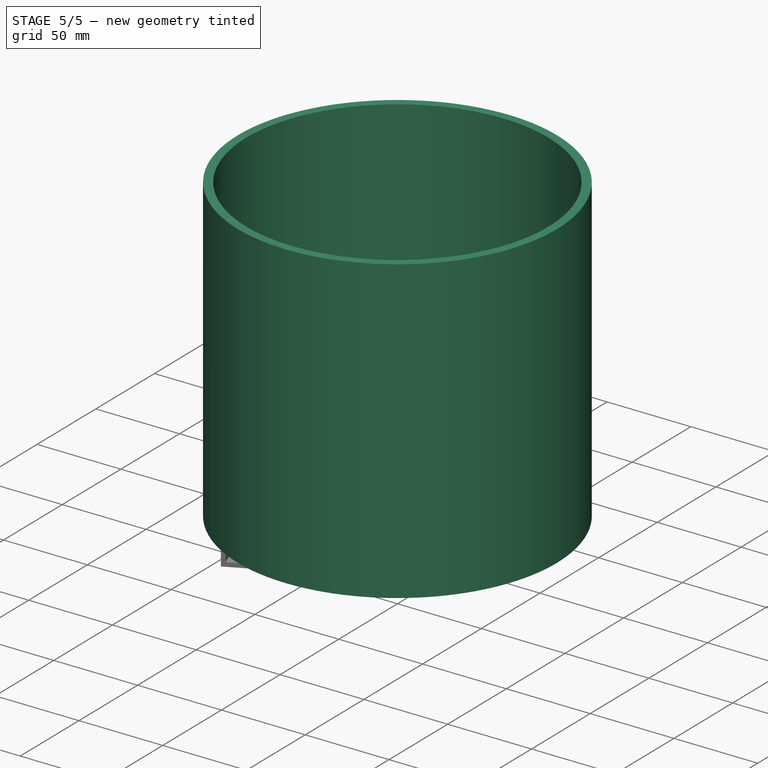
[diagram: stage 5 of 5 — iso view after this stage's code; geometry added in this stage tinted green]
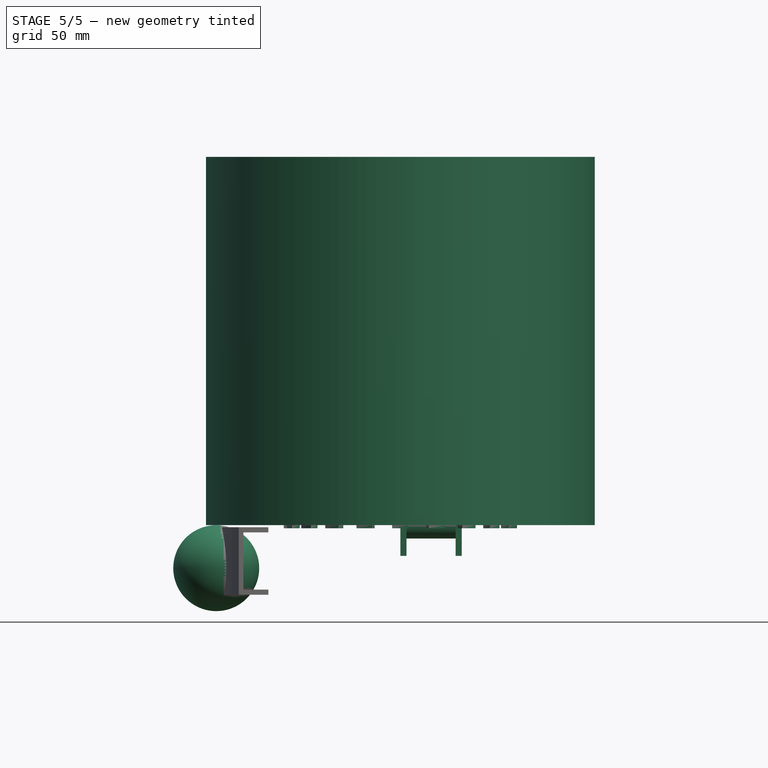
[diagram: stage 5 of 5 — front view after this stage's code; geometry added in this stage tinted green]
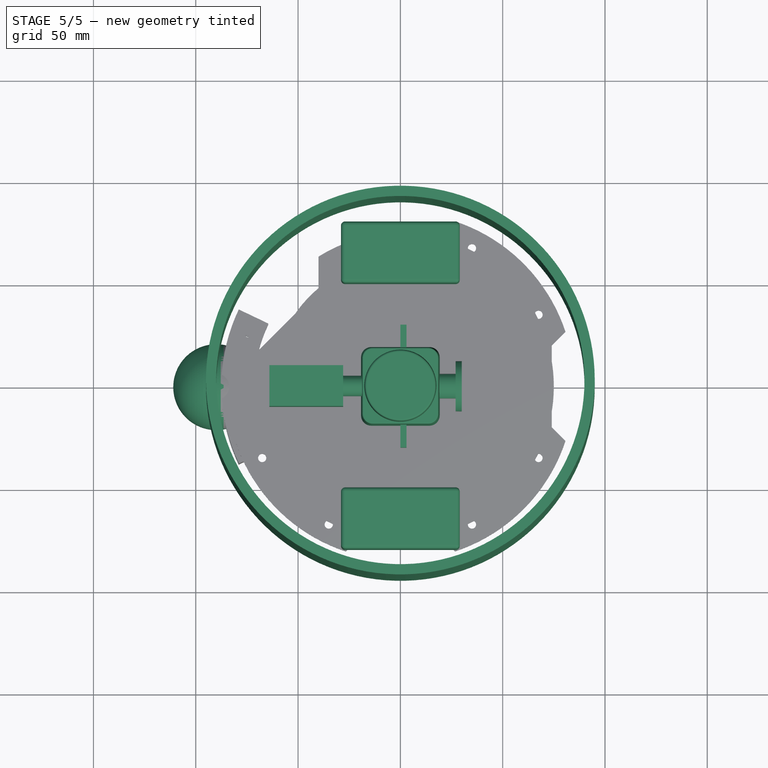
[diagram: stage 5 of 5 — top view after this stage's code; geometry added in this stage tinted green]
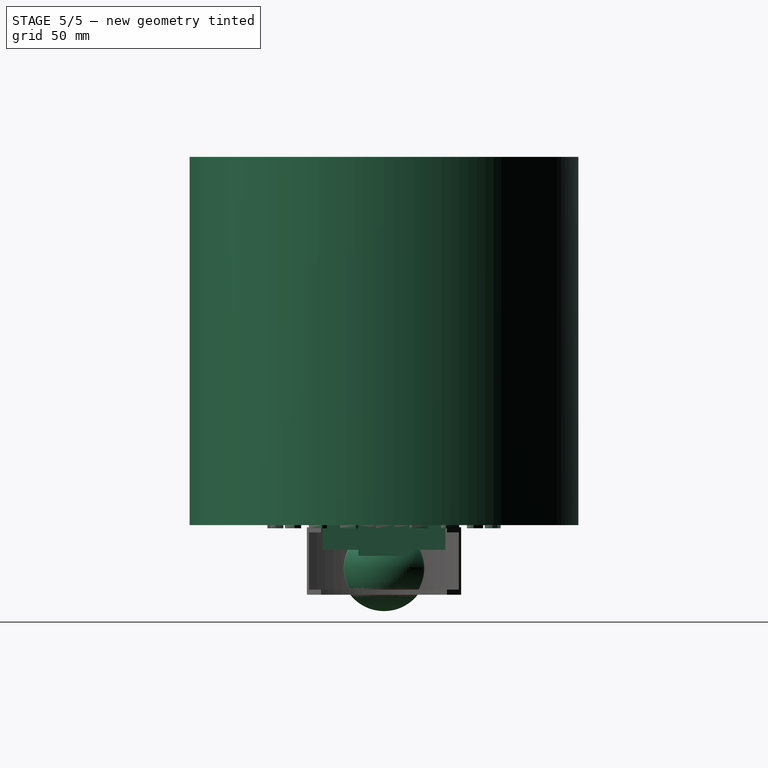
[diagram: stage 5 of 5 — right view after this stage's code; geometry added in this stage tinted green]
FEATURE [Sketcher::SketchObject] Sketch016
  FullyConstrained = true
  MapMode = 5
  Placement = pos=(0,0,0) rot=(1,0,0;1.5708rad)
  Support = -> [XZ_Plane016]
  sketch-geometry (8):
    g0: LineSegment StartX=-87.5 StartY=-1 StartZ=0 EndX=-71.5 EndY=-1 EndZ=0
    g1: LineSegment StartX=-71.5 StartY=-34 StartZ=0 EndX=-87.5 EndY=-34 EndZ=0
    g2: LineSegment StartX=-87.5 StartY=-34 StartZ=0 EndX=-87.5 EndY=-1 EndZ=0
    g3: LineSegment StartX=-71.5 StartY=-1 StartZ=0 EndX=-71.5 EndY=-3.5 EndZ=0
    g4: LineSegment StartX=-71.5 StartY=-3.5 StartZ=0 EndX=-85 EndY=-3.5 EndZ=0
    g5: LineSegment StartX=-85 StartY=-3.5 StartZ=0 EndX=-85 EndY=-31.5 EndZ=0
    g6: LineSegment StartX=-85 StartY=-31.5 StartZ=0 EndX=-71.5 EndY=-31.5 EndZ=0
    g7: LineSegment StartX=-71.5 StartY=-31.5 StartZ=0 EndX=-71.5 EndY=-34 EndZ=0
  constraints (24):
    c: Coincident(g1,g2)
    c: Coincident(g2,g0)
    c: Horizontal(g0)
    c: Horizontal(g1)
    c: Vertical(g2)
    c: DistanceY(g1,g0) = 33
    c: DistanceX(g1,g1) = 16
    c: DistanceX(g0,g-1) = 87.5
    c: DistanceY(g1,g-1) = 34
    c: Equal(g1,g0)
    c: Coincident(g3,g0)
    c: Vertical(g3)
    c: Coincident(g4,g3)
    c: Horizontal(g4)
    c: Coincident(g5,g4)
    c: Vertical(g5)
    c: Coincident(g6,g5)
    c: Horizontal(g6)
    c: Coincident(g7,g6)
    c: Coincident(g7,g1)
    c: Vertical(g7)
    c: Equal(g3,g7)
    c: DistanceY(g3,g3) = 2.5
    c: DistanceX(g0,g4) = 2.5
FEATURE [PartDesign::Revolution] Revolution001
  Angle = 51
  Axis = (1e-16,1e-16,1)
  Base = (0,0,0)
  Midplane = true
  Placement = pos=(0,0,0) rot=(1,0,0;1.5708rad)
  Profile = -> Sketch016
  ReferenceAxis = -> Z_Axis016
  Reversed = true
FEATURE [Sketcher::SketchObject] Sketch025
  FullyConstrained = true
  MapMode = 5
  Support = -> [XY_Plane026]
  sketch-geometry (2):
    g0: Circle CenterX=0 CenterY=0 CenterZ=0 NormalX=0 NormalY=0 NormalZ=1 AngleXU=0 Radius=90
    g1: Circle CenterX=0 CenterY=0 CenterZ=0 NormalX=0 NormalY=0 NormalZ=1 AngleXU=0 Radius=95
  constraints (4):
    c: Diameter(g0) = 180
    c: Coincident(g1,g-1)
    c: Diameter(g1) = 190
    c: Coincident(g0,g-1)
FEATURE [PartDesign::Pad] Pad008
  Direction = (0,0,1)
  Length = 180
  Length2 = 10
  Profile = -> Sketch025
  ReferenceAxis = -> Sketch025 [N_Axis]
  Type = 0
FEATURE [PartDesign::Body] Body008  label="Cylinder"
  Group = -> [Sketch025,Pad008]
  Origin = -> Origin026
  Placement = pos=(0,0,-42) rot=(0,0,1;0rad)
  Tip = -> Pad008
FEATURE [Sketcher::SketchObject] Sketch030
  FullyConstrained = true
  MapMode = 5
  Support = -> [XY_Plane032]
  sketch-geometry (4):
    g0: LineSegment StartX=-29 StartY=-50 StartZ=0 EndX=29 EndY=-50 EndZ=0
    g1: LineSegment StartX=29 StartY=-50 StartZ=0 EndX=29 EndY=-80 EndZ=0
    g2: LineSegment StartX=29 StartY=-80 StartZ=0 EndX=-29 EndY=-80 EndZ=0
    g3: LineSegment StartX=-29 StartY=-80 StartZ=0 EndX=-29 EndY=-50 EndZ=0
  constraints (11):
    c: Coincident(g0,g1)
    c: Coincident(g1,g2)
    c: Coincident(g2,g3)
    c: Coincident(g3,g0)
    c: Horizontal(g0)
    c: Vertical(g1)
    c: Vertical(g3)
    c: DistanceX(g0,g0) = 58
    c: DistanceY(g1,g1) = 30
    c: Symmetric(g2,g1,g-2)
    c: DistanceY(g0,g-1) = 50
FEATURE [PartDesign::Pad] Pad013
  Direction = (0,0,1)
  Length = 40
  Length2 = 10
  Profile = -> Sketch030
  ReferenceAxis = -> Sketch030 [N_Axis]
  Type = 0
FEATURE [PartDesign::Fillet] Fillet001
  Base = -> Pad013 [Edge4,Edge12,Edge10,Edge7,Edge2,Edge3,Edge1,Edge11,Edge8,Edge5,Edge6,Edge9]
  BaseFeature = -> Pad013
  Radius = 2
  SupportTransform = false
  UseAllEdges = false
FEATURE [PartDesign::Body] Body013  label="Battery 1"
  Group = -> [Sketch030,Pad013,Fillet001]
  Origin = -> Origin032
  Placement = pos=(0,2,-36) rot=(0,0,1;0rad)
  Tip = -> Fillet001
FEATURE [Sketcher::SketchObject] Sketch031
  FullyConstrained = true
  MapMode = 5
  Support = -> [XY_Plane033]
  sketch-geometry (4):
    g0: LineSegment StartX=-29 StartY=80 StartZ=0 EndX=29 EndY=80 EndZ=0
    g1: LineSegment StartX=29 StartY=80 StartZ=0 EndX=29 EndY=50 EndZ=0
    g2: LineSegment StartX=29 StartY=50 StartZ=0 EndX=-29 EndY=50 EndZ=0
    g3: LineSegment StartX=-29 StartY=50 StartZ=0 EndX=-29 EndY=80 EndZ=0
  constraints (11):
    c: Coincident(g0,g1)
    c: Coincident(g1,g2)
    c: Coincident(g2,g3)
    c: Coincident(g3,g0)
    c: Horizontal(g0)
    c: Vertical(g1)
    c: Vertical(g3)
    c: DistanceX(g0,g0) = 58
    c: DistanceY(g1,g1) = 30
    c: Symmetric(g2,g1,g-2)
    c: DistanceY(g-1,g1) = 50
FEATURE [PartDesign::Pad] Pad014
  Direction = (0,0,1)
  Length = 40
  Length2 = 10
  Profile = -> Sketch031
  ReferenceAxis = -> Sketch031 [N_Axis]
  Type = 0
FEATURE [PartDesign::Fillet] Fillet002
  Base = -> Pad014 [Edge4,Edge12,Edge10,Edge7,Edge2,Edge3,Edge1,Edge11,Edge8,Edge5,Edge6,Edge9]
  BaseFeature = -> Pad014
  Radius = 2
  SupportTransform = false
  UseAllEdges = false
FEATURE [PartDesign::Body] Body022  label="Motor side gear 4"
  Group = -> [InvoluteGear007,Pad038,Sketch056,Pad039,Sketch057,Pad040]
  Origin = -> Origin047
  Placement = pos=(-50,-43,0) rot=(0.678598,0.281085,-0.678598;2.59356rad)
  Tip = -> Pad040
FEATURE [Sketcher::SketchObject] Sketch058
  FullyConstrained = true
  MapMode = 5
  Support = -> [XY_Plane048]
  sketch-geometry (4):
    g0: LineSegment StartX=-19.295 StartY=19.295 StartZ=0 EndX=19.295 EndY=19.295 EndZ=0
    g1: LineSegment StartX=19.295 StartY=19.295 StartZ=0 EndX=19.295 EndY=-19.295 EndZ=0
    g2: LineSegment StartX=19.295 StartY=-19.295 StartZ=0 EndX=-19.295 EndY=-19.295 EndZ=0
    g3: LineSegment StartX=-19.295 StartY=-19.295 StartZ=0 EndX=-19.295 EndY=19.295 EndZ=0
  constraints (10):
    c: Coincident(g0,g1)
    c: Coincident(g1,g2)
    c: Coincident(g2,g3)
    c: Coincident(g3,g0)
    c: Horizontal(g2)
    c: Vertical(g1)
    c: Symmetric(g0,g0,g-2)
    c: Symmetric(g2,g0,g-1)
    c: DistanceX(g2,g2) = 38.59
    c: DistanceY(g1,g1) = 38.59
FEATURE [PartDesign::Pad] Pad041
  Direction = (0,0,1)
  Length = 20.7
  Length2 = 10
  Profile = -> Sketch058
  ReferenceAxis = -> Sketch058 [N_Axis]
  TaperAngle = -2
  Type = 0
FEATURE [Sketcher::SketchObject] Sketch059
  FullyConstrained = true
  MapMode = 5
  Placement = pos=(0,0,20.7) rot=(0,0,1;0rad)
  Support = -> [Pad041]
  sketch-geometry (1):
    g0: Circle CenterX=0 CenterY=0 CenterZ=0 NormalX=0 NormalY=0 NormalZ=1 AngleXU=0 Radius=17.645
  constraints (2):
    c: Coincident(g0,g-1)
    c: Diameter(g0) = 35.29
FEATURE [PartDesign::Pad] Pad042
  BaseFeature = -> Pad041
  Direction = (0,0,1)
  Length = 12.8
  Length2 = 10
  Profile = -> Sketch059
  ReferenceAxis = -> Sketch059 [N_Axis]
  TaperAngle = -1.5
  Type = 0
FEATURE [PartDesign::Fillet] Fillet
  Base = -> Pad042 [Edge15]
  BaseFeature = -> Pad042
  Radius = 1
  SupportTransform = false
  UseAllEdges = false
FEATURE [PartDesign::Fillet] Fillet003
  Base = -> Fillet [Edge16,Edge11,Edge12,Edge14]
  BaseFeature = -> Fillet
  Radius = 5
  SupportTransform = false
  UseAllEdges = false
FEATURE [PartDesign::Fillet] Fillet004
  Base = -> Fillet003 [Edge8,Edge6,Edge4,Edge5,Edge3,Edge1,Edge7,Edge2]
  BaseFeature = -> Fillet003
  Radius = 0.5
  SupportTransform = false
  UseAllEdges = false
FEATURE [Sketcher::SketchObject] Sketch062
  FullyConstrained = true
  MapMode = 5
  Support = -> [XY_Plane049]
  sketch-geometry (1):
    g0: Circle CenterX=0 CenterY=0 CenterZ=0 NormalX=0 NormalY=0 NormalZ=1 AngleXU=0 Radius=75
  constraints (2):
    c: Coincident(g0,g-1)
    c: Diameter(g0) = 150
FEATURE [PartDesign::Pad] Pad043
  Direction = (0,0,1)
  Length = 1.6
  Length2 = 10
  Profile = -> Sketch062
  ReferenceAxis = -> Sketch062 [N_Axis]
  Type = 0
FEATURE [Sketcher::SketchObject] Sketch063
  FullyConstrained = true
  MapMode = 5
  Placement = pos=(0,0,1.6) rot=(0,0,1;0rad)
  Support = -> [Pad043]
  sketch-geometry (4):
    g0: LineSegment StartX=-21 StartY=21 StartZ=0 EndX=21 EndY=21 EndZ=0
    g1: LineSegment StartX=21 StartY=21 StartZ=0 EndX=21 EndY=-21 EndZ=0
    g2: LineSegment StartX=21 StartY=-21 StartZ=0 EndX=-21 EndY=-21 EndZ=0
    g3: LineSegment StartX=-21 StartY=-21 StartZ=0 EndX=-21 EndY=21 EndZ=0
  constraints (10):
    c: Coincident(g0,g1)
    c: Coincident(g1,g2)
    c: Coincident(g2,g3)
    c: Coincident(g3,g0)
    c: Horizontal(g2)
    c: Vertical(g3)
    c: Symmetric(g0,g0,g-2)
    c: Symmetric(g0,g1,g-1)
    c: DistanceX(g0,g0) = 42
    c: DistanceY(g1,g1) = 42
FEATURE [PartDesign::Pocket] Pocket021
  BaseFeature = -> Pad043
  Direction = (0,0,-1)
  Length = 5
  Length2 = 5
  Profile = -> Sketch063
  ReferenceAxis = -> Sketch063 [N_Axis]
  Type = 1
FEATURE [Sketcher::SketchObject] Sketch064
  FullyConstrained = true
  MapMode = 5
  Placement = pos=(0,0,1.6) rot=(0,0,1;0rad)
  Support = -> [Pocket021]
  sketch-geometry (4):
    g0: LineSegment StartX=-80 StartY=65 StartZ=0 EndX=-40 EndY=65 EndZ=0
    g1: LineSegment StartX=-40 StartY=65 StartZ=0 EndX=-40 EndY=-65 EndZ=0
    g2: LineSegment StartX=-40 StartY=-65 StartZ=0 EndX=-80 EndY=-65 EndZ=0
    g3: LineSegment StartX=-80 StartY=-65 StartZ=0 EndX=-80 EndY=65 EndZ=0
  constraints (11):
    c: Coincident(g0,g1)
    c: Coincident(g1,g2)
    c: Coincident(g2,g3)
    c: Coincident(g3,g0)
    c: Horizontal(g0)
    c: Horizontal(g2)
    c: Vertical(g3)
    c: Symmetric(g0,g1,g-1)
    c: DistanceX(g0,g0) = 40
    c: DistanceY(g1,g1) = 130
    c: DistanceX(g0,g-1) = 40
FEATURE [PartDesign::Pocket] Pocket022
  BaseFeature = -> Pocket021
  Direction = (0,0,-1)
  Length = 5
  Length2 = 5
  Profile = -> Sketch064
  ReferenceAxis = -> Sketch064 [N_Axis]
  Type = 1
FEATURE [PartDesign::Body] Body024  label="PCB board"
  Group = -> [Sketch062,Pad043,Sketch063,Pocket021,Sketch064,Pocket022]
  Origin = -> Origin049
  Placement = pos=(0,0,16) rot=(0,0,1;0rad)
  Tip = -> Pocket022
FEATURE [Part::Feature] Part__Feature439  label="114-00841-68--3DModel-STEP-56544 v1"
  Placement = pos=(24.0935,-0.00012972,0.814608) rot=(0.57735,0.57735,0.57735;2.0944rad)
  shape: bbox 11.35 x 11.95 x 1.68 mm, 239 faces (baked)
FEATURE [Part::Feature] Part__Feature440  label="114-00841-68--3DModel-STEP-56544 v002"
  Placement = pos=(24.0935,-0.00012972,0.814608) rot=(0.57735,0.57735,0.57735;2.0944rad)
  shape: bbox 0.7165 x 3.441 x 0.555 mm, 26 faces (baked)
FEATURE [Part::Feature] Part__Feature441  label="114-00841-68--3DModel-STEP-56544 v003"
  Placement = pos=(24.0935,-0.00012972,0.814608) rot=(0.57735,0.57735,0.57735;2.0944rad)
  shape: bbox 1.24 x 4.945 x 0.625 mm, 28 faces (baked)
FEATURE [Part::Feature] Part__Feature442  label="114-00841-68--3DModel-STEP-56544 v004"
  Placement = pos=(24.0935,-0.00012972,0.814608) rot=(0.57735,0.57735,0.57735;2.0944rad)
  shape: bbox 10 x 11.95 x 1.48 mm, 267 faces (baked)
FEATURE [Part::Feature] Part__Feature443  label="114-00841-68--3DModel-STEP-56544 v005"
  Placement = pos=(24.0935,-0.00012972,0.814608) rot=(0.57735,0.57735,0.57735;2.0944rad)
  shape: bbox 1.25 x 0.5 x 0.6 mm, 14 faces (baked)
FEATURE [Part::Feature] Part__Feature444  label="114-00841-68--3DModel-STEP-56544 v006"
  Placement = pos=(24.0935,-0.00012972,0.814608) rot=(0.57735,0.57735,0.57735;2.0944rad)
  shape: bbox 0.5 x 0.55 x 0.6 mm, 14 faces (baked)
FEATURE [Part::Feature] Part__Feature445  label="114-00841-68--3DModel-STEP-56544 v007"
  Placement = pos=(24.0935,-0.00012972,0.814608) rot=(0.57735,0.57735,0.57735;2.0944rad)
  shape: bbox 8.245 x 0.8521 x 1.179 mm, 52 faces (baked)
FEATURE [Part::Feature] Part__Feature446  label="114-00841-68--3DModel-STEP-56544 v008"
  Placement = pos=(24.0935,-0.00012972,0.814608) rot=(0.57735,0.57735,0.57735;2.0944rad)
  shape: bbox 8.254 x 0.8613 x 1.188 mm, 52 faces (baked)
FEATURE [Part::Feature] Part__Feature447  label="114-00841-68--3DModel-STEP-56544 v009"
  Placement = pos=(24.0935,-0.00012972,0.814608) rot=(0.57735,0.57735,0.57735;2.0944rad)
  shape: bbox 8.245 x 0.8521 x 1.179 mm, 52 faces (baked)
FEATURE [Part::Feature] Part__Feature448  label="114-00841-68--3DModel-STEP-56544 v010"
  Placement = pos=(24.0935,-0.00012972,0.814608) rot=(0.57735,0.57735,0.57735;2.0944rad)
  shape: bbox 8.245 x 0.8521 x 1.179 mm, 52 faces (baked)
FEATURE [Part::Feature] Part__Feature449  label="114-00841-68--3DModel-STEP-56544 v011"
  Placement = pos=(24.0935,-0.00012972,0.814608) rot=(0.57735,0.57735,0.57735;2.0944rad)
  shape: bbox 8.245 x 0.8521 x 1.179 mm, 52 faces (baked)
FEATURE [Part::Feature] Part__Feature450  label="114-00841-68--3DModel-STEP-56544 v012"
  Placement = pos=(24.0935,-0.00012972,0.814608) rot=(0.57735,0.57735,0.57735;2.0944rad)
  shape: bbox 8.065 x 0.8522 x 1.179 mm, 52 faces (baked)
FEATURE [Part::Feature] Part__Feature451  label="114-00841-68--3DModel-STEP-56544 v013"
  Placement = pos=(24.0935,-0.00012972,0.814608) rot=(0.57735,0.57735,0.57735;2.0944rad)
  shape: bbox 8.065 x 0.8521 x 1.179 mm, 52 faces (baked)
FEATURE [Part::Feature] Part__Feature452  label="114-00841-68--3DModel-STEP-56544 v014"
  Placement = pos=(24.0935,-0.00012972,0.814608) rot=(0.57735,0.57735,0.57735;2.0944rad)
  shape: bbox 8.665 x 0.8521 x 1.179 mm, 52 faces (baked)
FEATURE [App::Part] _14_00841_68__3DModel_STEP_56544_v1  label="114-00841-68--3DModel-STEP-56544 v015"
  Group = -> [Part__Feature439,Part__Feature440,Part__Feature441,Part__Feature442,Part__Feature443,Part__Feature444,Part__Feature445,Part__Feature446,Part__Feature447,Part__Feature448,Part__Feature449,Part__Feature450,Part__Feature451,Part__Feature452]
  Origin = -> Origin052
FEATURE [Part::Feature] Part__Feature453  label="MIMXRT1052CVJ5B v1"
  Placement = pos=(1.30183,-0.0809243,0.815) rot=(0,0.707107,0.707107;3.14159rad)
  shape: bbox 12 x 12 x 1.27 mm, 6 faces (baked)
FEATURE [App::Part] MIMXRT1052CVJ5B_v1  label="MIMXRT1052CVJ5B v198"
  Group = -> [Part__Feature453]
  Origin = -> Origin053
FEATURE [Part::Feature] Part__Feature589  label="MicroUSB Molex 473460001 v1"
  Placement = pos=(-28.9499,0.13174,2.07033) rot=(0.57735,-0.57735,-0.57735;2.0944rad)
  shape: bbox 5.43 x 7.98 x 2.94 mm, 406 faces (baked)
FEATURE [Part::Feature] Part__Feature590  label="COMPOUND"
  shape: bbox 2.54 x 2.54 x 2.799 mm, 22 faces, 0 solids (baked)
FEATURE [Part::Feature] Part__Feature591  label="COMPOUND001"
  shape: bbox 2.54 x 2.54 x 2.799 mm, 22 faces, 0 solids (baked)
FEATURE [Part::Feature] Part__Feature592  label="COMPOUND002"
  shape: bbox 2.54 x 2.54 x 2.799 mm, 23 faces, 0 solids (baked)
FEATURE [Part::Feature] Part__Feature593  label="COMPOUND003"
  shape: bbox 2.54 x 2.54 x 2.799 mm, 22 faces, 0 solids (baked)
FEATURE [Part::Feature] Part__Feature594  label="COMPOUND004"
  shape: bbox 2.54 x 2.54 x 2.799 mm, 22 faces, 0 solids (baked)
FEATURE [Part::Feature] Part__Feature595  label="COMPOUND005"
  shape: bbox 2.54 x 2.54 x 2.799 mm, 23 faces, 0 solids (baked)
FEATURE [App::Part] COMPOUND  label="COMPOUND006"
  Group = -> [Part__Feature590,Part__Feature591,Part__Feature592,Part__Feature593,Part__Feature594,Part__Feature595]
  Origin = -> Origin055
FEATURE [Part::Feature] Part__Feature596  label="COMPOUND007"
  shape: bbox 0.6304 x 0.63 x 12.7 mm, 14 faces (baked)
FEATURE [Part::Feature] Part__Feature597  label="COMPOUND008"
  shape: bbox 0.6304 x 0.63 x 12.7 mm, 14 faces (baked)
FEATURE [Part::Feature] Part__Feature598  label="COMPOUND009"
  shape: bbox 0.6304 x 0.63 x 12.7 mm, 14 faces (baked)
FEATURE [Part::Feature] Part__Feature599  label="COMPOUND010"
  shape: bbox 0.6304 x 0.63 x 12.7 mm, 14 faces (baked)
FEATURE [Part::Feature] Part__Feature600  label="COMPOUND011"
  shape: bbox 0.6304 x 0.63 x 12.7 mm, 14 faces (baked)
FEATURE [Part::Feature] Part__Feature601  label="COMPOUND012"
  shape: bbox 0.6304 x 0.63 x 12.7 mm, 14 faces (baked)
FEATURE [App::Part] COMPOUND001  label="COMPOUND013"
  Group = -> [Part__Feature596,Part__Feature597,Part__Feature598,Part__Feature599,Part__Feature600,Part__Feature601]
  Origin = -> Origin056
FEATURE [App::Part] Pin_Header_1x6_TH_Pitch_2_54mm_v1  label="Pin Header 1x6 TH Pitch 2.54mm v1"
  Group = -> [COMPOUND,COMPOUND001]
  Origin = -> Origin054
  Placement = pos=(-16.51,-7.62,-0.814) rot=(0,1,0;3.14159rad)
FEATURE [Part::Feature] Part__Feature602  label="COMPOUND014"
  shape: bbox 2.54 x 2.54 x 2.799 mm, 22 faces, 0 solids (baked)
FEATURE [Part::Feature] Part__Feature603  label="COMPOUND015"
  shape: bbox 2.54 x 2.54 x 2.799 mm, 22 faces, 0 solids (baked)
FEATURE [Part::Feature] Part__Feature604  label="COMPOUND016"
  shape: bbox 2.54 x 2.54 x 2.799 mm, 23 faces, 0 solids (baked)
FEATURE [Part::Feature] Part__Feature605  label="COMPOUND017"
  shape: bbox 2.54 x 2.54 x 2.799 mm, 22 faces, 0 solids (baked)
FEATURE [Part::Feature] Part__Feature606  label="COMPOUND018"
  shape: bbox 2.54 x 2.54 x 2.799 mm, 22 faces, 0 solids (baked)
FEATURE [Part::Feature] Part__Feature607  label="COMPOUND019"
  shape: bbox 2.54 x 2.54 x 2.799 mm, 23 faces, 0 solids (baked)
FEATURE [App::Part] COMPOUND002  label="COMPOUND020"
  Group = -> [Part__Feature602,Part__Feature603,Part__Feature604,Part__Feature605,Part__Feature606,Part__Feature607]
  Origin = -> Origin058
FEATURE [Part::Feature] Part__Feature608  label="COMPOUND021"
  shape: bbox 0.6304 x 0.63 x 12.7 mm, 14 faces (baked)
FEATURE [Part::Feature] Part__Feature609  label="COMPOUND022"
  shape: bbox 0.6304 x 0.63 x 12.7 mm, 14 faces (baked)
FEATURE [Part::Feature] Part__Feature610  label="COMPOUND023"
  shape: bbox 0.6304 x 0.63 x 12.7 mm, 14 faces (baked)
FEATURE [Part::Feature] Part__Feature611  label="COMPOUND024"
  shape: bbox 0.6304 x 0.63 x 12.7 mm, 14 faces (baked)
FEATURE [Part::Feature] Part__Feature612  label="COMPOUND025"
  shape: bbox 0.6304 x 0.63 x 12.7 mm, 14 faces (baked)
FEATURE [Part::Feature] Part__Feature613  label="COMPOUND026"
  shape: bbox 0.6304 x 0.63 x 12.7 mm, 14 faces (baked)
FEATURE [App::Part] COMPOUND003  label="COMPOUND027"
  Group = -> [Part__Feature608,Part__Feature609,Part__Feature610,Part__Feature611,Part__Feature612,Part__Feature613]
  Origin = -> Origin059
FEATURE [App::Part] Pin_Header_1x6_TH_Pitch_2_54mm_v002  label="Pin Header 1x6 TH Pitch 2.54mm v002"
  Group = -> [COMPOUND002,COMPOUND003]
  Origin = -> Origin057
  Placement = pos=(-1.27,-7.62,-0.814) rot=(0,1,0;3.14159rad)
FEATURE [Part::Feature] Part__Feature614  label="COMPOUND028"
  shape: bbox 2.54 x 2.54 x 2.799 mm, 22 faces, 0 solids (baked)
FEATURE [Part::Feature] Part__Feature615  label="COMPOUND029"
  shape: bbox 2.54 x 2.54 x 2.799 mm, 22 faces, 0 solids (baked)
FEATURE [Part::Feature] Part__Feature616  label="COMPOUND030"
  shape: bbox 2.54 x 2.54 x 2.799 mm, 23 faces, 0 solids (baked)
FEATURE [Part::Feature] Part__Feature617  label="COMPOUND031"
  shape: bbox 2.54 x 2.54 x 2.799 mm, 22 faces, 0 solids (baked)
FEATURE [Part::Feature] Part__Feature618  label="COMPOUND032"
  shape: bbox 2.54 x 2.54 x 2.799 mm, 22 faces, 0 solids (baked)
FEATURE [Part::Feature] Part__Feature619  label="COMPOUND033"
  shape: bbox 2.54 x 2.54 x 2.799 mm, 23 faces, 0 solids (baked)
FEATURE [App::Part] COMPOUND004  label="COMPOUND034"
  Group = -> [Part__Feature614,Part__Feature615,Part__Feature616,Part__Feature617,Part__Feature618,Part__Feature619]
  Origin = -> Origin060
FEATURE [Part::Feature] Part__Feature620  label="COMPOUND035"
  shape: bbox 0.6304 x 0.63 x 12.7 mm, 14 faces (baked)
FEATURE [Part::Feature] Part__Feature621  label="COMPOUND036"
  shape: bbox 0.6304 x 0.63 x 12.7 mm, 14 faces (baked)
FEATURE [Part::Feature] Part__Feature622  label="COMPOUND037"
  shape: bbox 0.6304 x 0.63 x 12.7 mm, 14 faces (baked)
FEATURE [Part::Feature] Part__Feature623  label="COMPOUND038"
  shape: bbox 0.6304 x 0.63 x 12.7 mm, 14 faces (baked)
FEATURE [Part::Feature] Part__Feature624  label="COMPOUND039"
  shape: bbox 0.6304 x 0.63 x 12.7 mm, 14 faces (baked)
FEATURE [Part::Feature] Part__Feature625  label="COMPOUND040"
  shape: bbox 0.6304 x 0.63 x 12.7 mm, 14 faces (baked)
FEATURE [App::Part] COMPOUND005  label="COMPOUND041"
  Group = -> [Part__Feature620,Part__Feature621,Part__Feature622,Part__Feature623,Part__Feature624,Part__Feature625]
  Origin = -> Origin010
FEATURE [App::Part] Pin_Header_1x6_TH_Pitch_2_54mm_v003  label="Pin Header 1x6 TH Pitch 2.54mm v003"
  Group = -> [COMPOUND004,COMPOUND005]
  Origin = -> Origin011
  Placement = pos=(13.97,-7.62,-0.814) rot=(0,1,0;3.14159rad)
FEATURE [Part::Feature] Part__Feature626  label="COMPOUND042"
  shape: bbox 2.54 x 2.54 x 2.799 mm, 22 faces, 0 solids (baked)
FEATURE [Part::Feature] Part__Feature627  label="COMPOUND043"
  shape: bbox 2.54 x 2.54 x 2.799 mm, 22 faces, 0 solids (baked)
FEATURE [Part::Feature] Part__Feature628  label="COMPOUND044"
  shape: bbox 2.54 x 2.54 x 2.799 mm, 23 faces, 0 solids (baked)
FEATURE [Part::Feature] Part__Feature629  label="COMPOUND045"
  shape: bbox 2.54 x 2.54 x 2.799 mm, 22 faces, 0 solids (baked)
FEATURE [Part::Feature] Part__Feature630  label="COMPOUND046"
  shape: bbox 2.54 x 2.54 x 2.799 mm, 22 faces, 0 solids (baked)
FEATURE [Part::Feature] Part__Feature631  label="COMPOUND047"
  shape: bbox 2.54 x 2.54 x 2.799 mm, 23 faces, 0 solids (baked)
FEATURE [App::Part] COMPOUND006  label="COMPOUND048"
  Group = -> [Part__Feature626,Part__Feature627,Part__Feature628,Part__Feature629,Part__Feature630,Part__Feature631]
  Origin = -> Origin012
FEATURE [Part::Feature] Part__Feature632  label="COMPOUND049"
  shape: bbox 0.6304 x 0.63 x 12.7 mm, 14 faces (baked)
FEATURE [Part::Feature] Part__Feature633  label="COMPOUND050"
  shape: bbox 0.6304 x 0.63 x 12.7 mm, 14 faces (baked)
FEATURE [Part::Feature] Part__Feature634  label="COMPOUND051"
  shape: bbox 0.6304 x 0.63 x 12.7 mm, 14 faces (baked)
FEATURE [Part::Feature] Part__Feature635  label="COMPOUND052"
  shape: bbox 0.6304 x 0.63 x 12.7 mm, 14 faces (baked)
FEATURE [Part::Feature] Part__Feature636  label="COMPOUND053"
  shape: bbox 0.6304 x 0.63 x 12.7 mm, 14 faces (baked)
FEATURE [Part::Feature] Part__Feature637  label="COMPOUND054"
  shape: bbox 0.6304 x 0.63 x 12.7 mm, 14 faces (baked)
FEATURE [App::Part] COMPOUND007  label="COMPOUND055"
  Group = -> [Part__Feature632,Part__Feature633,Part__Feature634,Part__Feature635,Part__Feature636,Part__Feature637]
  Origin = -> Origin013
FEATURE [App::Part] Pin_Header_1x6_TH_Pitch_2_54mm_v004  label="Pin Header 1x6 TH Pitch 2.54mm v004"
  Group = -> [COMPOUND006,COMPOUND007]
  Origin = -> Origin014
  Placement = pos=(29.21,-7.62,-0.814) rot=(0,1,0;3.14159rad)
FEATURE [Part::Feature] Part__Feature638  label="COMPOUND056"
  shape: bbox 2.54 x 2.54 x 2.799 mm, 22 faces, 0 solids (baked)
FEATURE [Part::Feature] Part__Feature639  label="COMPOUND057"
  shape: bbox 2.54 x 2.54 x 2.799 mm, 22 faces, 0 solids (baked)
FEATURE [Part::Feature] Part__Feature640  label="COMPOUND058"
  shape: bbox 2.54 x 2.54 x 2.799 mm, 23 faces, 0 solids (baked)
FEATURE [Part::Feature] Part__Feature641  label="COMPOUND059"
  shape: bbox 2.54 x 2.54 x 2.799 mm, 22 faces, 0 solids (baked)
FEATURE [Part::Feature] Part__Feature642  label="COMPOUND060"
  shape: bbox 2.54 x 2.54 x 2.799 mm, 22 faces, 0 solids (baked)
FEATURE [Part::Feature] Part__Feature643  label="COMPOUND061"
  shape: bbox 2.54 x 2.54 x 2.799 mm, 23 faces, 0 solids (baked)
FEATURE [App::Part] COMPOUND008  label="COMPOUND062"
  Group = -> [Part__Feature638,Part__Feature639,Part__Feature640,Part__Feature641,Part__Feature642,Part__Feature643]
  Origin = -> Origin061
FEATURE [Part::Feature] Part__Feature644  label="COMPOUND063"
  shape: bbox 0.6304 x 0.63 x 12.7 mm, 14 faces (baked)
FEATURE [Part::Feature] Part__Feature645  label="COMPOUND064"
  shape: bbox 0.6304 x 0.63 x 12.7 mm, 14 faces (baked)
FEATURE [Part::Feature] Part__Feature646  label="COMPOUND065"
  shape: bbox 0.6304 x 0.63 x 12.7 mm, 14 faces (baked)
FEATURE [Part::Feature] Part__Feature647  label="COMPOUND066"
  shape: bbox 0.6304 x 0.63 x 12.7 mm, 14 faces (baked)
FEATURE [Part::Feature] Part__Feature648  label="COMPOUND067"
  shape: bbox 0.6304 x 0.63 x 12.7 mm, 14 faces (baked)
FEATURE [Part::Feature] Part__Feature649  label="COMPOUND068"
  shape: bbox 0.6304 x 0.63 x 12.7 mm, 14 faces (baked)
FEATURE [App::Part] COMPOUND009  label="COMPOUND069"
  Group = -> [Part__Feature644,Part__Feature645,Part__Feature646,Part__Feature647,Part__Feature648,Part__Feature649]
  Origin = -> Origin062
FEATURE [App::Part] Pin_Header_1x6_TH_Pitch_2_54mm_v1_Mirror_  label="Pin Header 1x6 TH Pitch 2.54mm v1(Mirror)"
  Group = -> [COMPOUND008,COMPOUND009]
  Origin = -> Origin017
  Placement = pos=(-16.51,7.62,-0.814) rot=(0,0,1;3.14159rad)
FEATURE [Part::Feature] Part__Feature650  label="COMPOUND070"
  shape: bbox 2.54 x 2.54 x 2.799 mm, 22 faces, 0 solids (baked)
FEATURE [Part::Feature] Part__Feature651  label="COMPOUND071"
  shape: bbox 2.54 x 2.54 x 2.799 mm, 22 faces, 0 solids (baked)
FEATURE [Part::Feature] Part__Feature652  label="COMPOUND072"
  shape: bbox 2.54 x 2.54 x 2.799 mm, 23 faces, 0 solids (baked)
FEATURE [Part::Feature] Part__Feature653  label="COMPOUND073"
  shape: bbox 2.54 x 2.54 x 2.799 mm, 22 faces, 0 solids (baked)
FEATURE [Part::Feature] Part__Feature654  label="COMPOUND074"
  shape: bbox 2.54 x 2.54 x 2.799 mm, 22 faces, 0 solids (baked)
FEATURE [Part::Feature] Part__Feature655  label="COMPOUND075"
  shape: bbox 2.54 x 2.54 x 2.799 mm, 23 faces, 0 solids (baked)
FEATURE [App::Part] COMPOUND010  label="COMPOUND076"
  Group = -> [Part__Feature650,Part__Feature651,Part__Feature652,Part__Feature653,Part__Feature654,Part__Feature655]
  Origin = -> Origin064
FEATURE [Part::Feature] Part__Feature656  label="COMPOUND077"
  shape: bbox 0.6304 x 0.63 x 12.7 mm, 14 faces (baked)
FEATURE [Part::Feature] Part__Feature657  label="COMPOUND078"
  shape: bbox 0.6304 x 0.63 x 12.7 mm, 14 faces (baked)
FEATURE [Part::Feature] Part__Feature658  label="COMPOUND079"
  shape: bbox 0.6304 x 0.63 x 12.7 mm, 14 faces (baked)
FEATURE [Part::Feature] Part__Feature659  label="COMPOUND080"
  shape: bbox 0.6304 x 0.63 x 12.7 mm, 14 faces (baked)
FEATURE [Part::Feature] Part__Feature660  label="COMPOUND081"
  shape: bbox 0.6304 x 0.63 x 12.7 mm, 14 faces (baked)
FEATURE [Part::Feature] Part__Feature661  label="COMPOUND082"
  shape: bbox 0.6304 x 0.63 x 12.7 mm, 14 faces (baked)
FEATURE [App::Part] COMPOUND011  label="COMPOUND083"
  Group = -> [Part__Feature656,Part__Feature657,Part__Feature658,Part__Feature659,Part__Feature660,Part__Feature661]
  Origin = -> Origin065
FEATURE [App::Part] Pin_Header_1x6_TH_Pitch_2_54mm_v1_Mirror_001  label="Pin Header 1x6 TH Pitch 2.54mm v1(Mirror)001"
  Group = -> [COMPOUND010,COMPOUND011]
  Origin = -> Origin063
  Placement = pos=(-1.27,7.62,-0.814) rot=(0,0,1;3.14159rad)
FEATURE [Part::Feature] Part__Feature662  label="COMPOUND084"
  shape: bbox 2.54 x 2.54 x 2.799 mm, 22 faces, 0 solids (baked)
FEATURE [Part::Feature] Part__Feature663  label="COMPOUND085"
  shape: bbox 2.54 x 2.54 x 2.799 mm, 22 faces, 0 solids (baked)
FEATURE [Part::Feature] Part__Feature664  label="COMPOUND086"
  shape: bbox 2.54 x 2.54 x 2.799 mm, 23 faces, 0 solids (baked)
FEATURE [Part::Feature] Part__Feature665  label="COMPOUND087"
  shape: bbox 2.54 x 2.54 x 2.799 mm, 22 faces, 0 solids (baked)
FEATURE [Part::Feature] Part__Feature666  label="COMPOUND088"
  shape: bbox 2.54 x 2.54 x 2.799 mm, 22 faces, 0 solids (baked)
FEATURE [Part::Feature] Part__Feature667  label="COMPOUND089"
  shape: bbox 2.54 x 2.54 x 2.799 mm, 23 faces, 0 solids (baked)
FEATURE [App::Part] COMPOUND012  label="COMPOUND090"
  Group = -> [Part__Feature662,Part__Feature663,Part__Feature664,Part__Feature665,Part__Feature666,Part__Feature667]
  Origin = -> Origin067
FEATURE [Part::Feature] Part__Feature668  label="COMPOUND091"
  shape: bbox 0.6304 x 0.63 x 12.7 mm, 14 faces (baked)
FEATURE [Part::Feature] Part__Feature669  label="COMPOUND092"
  shape: bbox 0.6304 x 0.63 x 12.7 mm, 14 faces (baked)
FEATURE [Part::Feature] Part__Feature670  label="COMPOUND093"
  shape: bbox 0.6304 x 0.63 x 12.7 mm, 14 faces (baked)
FEATURE [Part::Feature] Part__Feature671  label="COMPOUND094"
  shape: bbox 0.6304 x 0.63 x 12.7 mm, 14 faces (baked)
FEATURE [Part::Feature] Part__Feature672  label="COMPOUND095"
  shape: bbox 0.6304 x 0.63 x 12.7 mm, 14 faces (baked)
FEATURE [Part::Feature] Part__Feature673  label="COMPOUND096"
  shape: bbox 0.6304 x 0.63 x 12.7 mm, 14 faces (baked)
FEATURE [App::Part] COMPOUND013  label="COMPOUND097"
  Group = -> [Part__Feature668,Part__Feature669,Part__Feature670,Part__Feature671,Part__Feature672,Part__Feature673]
  Origin = -> Origin022
FEATURE [App::Part] Pin_Header_1x6_TH_Pitch_2_54mm_v1_Mirror_002  label="Pin Header 1x6 TH Pitch 2.54mm v1(Mirror)002"
  Group = -> [COMPOUND012,COMPOUND013]
  Origin = -> Origin066
  Placement = pos=(13.97,7.62,-0.814) rot=(0,0,1;3.14159rad)
FEATURE [Part::Feature] Part__Feature674  label="COMPOUND098"
  shape: bbox 2.54 x 2.54 x 2.799 mm, 22 faces, 0 solids (baked)
FEATURE [Part::Feature] Part__Feature675  label="COMPOUND099"
  shape: bbox 2.54 x 2.54 x 2.799 mm, 22 faces, 0 solids (baked)
FEATURE [Part::Feature] Part__Feature676  label="COMPOUND100"
  shape: bbox 2.54 x 2.54 x 2.799 mm, 23 faces, 0 solids (baked)
FEATURE [Part::Feature] Part__Feature677  label="COMPOUND101"
  shape: bbox 2.54 x 2.54 x 2.799 mm, 22 faces, 0 solids (baked)
FEATURE [Part::Feature] Part__Feature678  label="COMPOUND102"
  shape: bbox 2.54 x 2.54 x 2.799 mm, 22 faces, 0 solids (baked)
FEATURE [Part::Feature] Part__Feature679  label="COMPOUND103"
  shape: bbox 2.54 x 2.54 x 2.799 mm, 23 faces, 0 solids (baked)
FEATURE [App::Part] COMPOUND014  label="COMPOUND104"
  Group = -> [Part__Feature674,Part__Feature675,Part__Feature676,Part__Feature677,Part__Feature678,Part__Feature679]
  Origin = -> Origin069
FEATURE [Part::Feature] Part__Feature680  label="COMPOUND105"
  shape: bbox 0.6304 x 0.63 x 12.7 mm, 14 faces (baked)
FEATURE [Part::Feature] Part__Feature681  label="COMPOUND106"
  shape: bbox 0.6304 x 0.63 x 12.7 mm, 14 faces (baked)
FEATURE [Part::Feature] Part__Feature682  label="COMPOUND107"
  shape: bbox 0.6304 x 0.63 x 12.7 mm, 14 faces (baked)
FEATURE [Part::Feature] Part__Feature683  label="COMPOUND108"
  shape: bbox 0.6304 x 0.63 x 12.7 mm, 14 faces (baked)
FEATURE [Part::Feature] Part__Feature684  label="COMPOUND109"
  shape: bbox 0.6304 x 0.63 x 12.7 mm, 14 faces (baked)
FEATURE [Part::Feature] Part__Feature685  label="COMPOUND110"
  shape: bbox 0.6304 x 0.63 x 12.7 mm, 14 faces (baked)
FEATURE [App::Part] COMPOUND015  label="COMPOUND111"
  Group = -> [Part__Feature680,Part__Feature681,Part__Feature682,Part__Feature683,Part__Feature684,Part__Feature685]
  Origin = -> Origin070
FEATURE [App::Part] Pin_Header_1x6_TH_Pitch_2_54mm_v1_Mirror_003  label="Pin Header 1x6 TH Pitch 2.54mm v1(Mirror)003"
  Group = -> [COMPOUND014,COMPOUND015]
  Origin = -> Origin068
  Placement = pos=(29.21,7.62,-0.814) rot=(0,0,1;3.14159rad)
FEATURE [Part::Feature] Part__Feature686  label="COMPOUND112"
  shape: bbox 2.54 x 2.54 x 2.799 mm, 22 faces, 0 solids (baked)
FEATURE [Part::Feature] Part__Feature687  label="COMPOUND113"
  shape: bbox 2.54 x 2.54 x 2.799 mm, 22 faces, 0 solids (baked)
FEATURE [Part::Feature] Part__Feature688  label="COMPOUND114"
  shape: bbox 2.54 x 2.54 x 2.799 mm, 23 faces, 0 solids (baked)
FEATURE [Part::Feature] Part__Feature689  label="COMPOUND115"
  shape: bbox 2.54 x 2.54 x 2.799 mm, 22 faces, 0 solids (baked)
FEATURE [Part::Feature] Part__Feature690  label="COMPOUND116"
  shape: bbox 2.54 x 2.54 x 2.799 mm, 23 faces, 0 solids (baked)
FEATURE [App::Part] COMPOUND016  label="COMPOUND117"
  Group = -> [Part__Feature686,Part__Feature687,Part__Feature688,Part__Feature689,Part__Feature690]
  Origin = -> Origin027
FEATURE [Part::Feature] Part__Feature691  label="COMPOUND118"
  shape: bbox 0.6304 x 0.63 x 12.7 mm, 14 faces (baked)
FEATURE [Part::Feature] Part__Feature692  label="COMPOUND119"
  shape: bbox 0.6304 x 0.63 x 12.7 mm, 14 faces (baked)
FEATURE [Part::Feature] Part__Feature693  label="COMPOUND120"
  shape: bbox 0.6304 x 0.63 x 12.7 mm, 14 faces (baked)
FEATURE [Part::Feature] Part__Feature694  label="COMPOUND121"
  shape: bbox 0.6304 x 0.63 x 12.7 mm, 14 faces (baked)
FEATURE [Part::Feature] Part__Feature695  label="COMPOUND122"
  shape: bbox 0.6304 x 0.63 x 12.7 mm, 14 faces (baked)
FEATURE [App::Part] COMPOUND017  label="COMPOUND123"
  Group = -> [Part__Feature691,Part__Feature692,Part__Feature693,Part__Feature694,Part__Feature695]
  Origin = -> Origin028
FEATURE [App::Part] Pin_Header_1x5_TH_Pitch_2_54mm_v1  label="Pin Header 1x5 TH Pitch 2.54mm v1"
  Group = -> [COMPOUND016,COMPOUND017]
  Origin = -> Origin029
  Placement = pos=(-22.86,-4.7,-0.814) rot=(1,0,0;3.14159rad)
FEATURE [Part::Feature] Part__Feature696  label="COMPOUND124"
  shape: bbox 2.54 x 2.54 x 2.799 mm, 22 faces, 0 solids (baked)
FEATURE [Part::Feature] Part__Feature697  label="COMPOUND125"
  shape: bbox 2.54 x 2.54 x 2.799 mm, 22 faces, 0 solids (baked)
FEATURE [Part::Feature] Part__Feature698  label="COMPOUND126"
  shape: bbox 2.54 x 2.54 x 2.799 mm, 23 faces, 0 solids (baked)
FEATURE [Part::Feature] Part__Feature699  label="COMPOUND127"
  shape: bbox 2.54 x 2.54 x 2.799 mm, 22 faces, 0 solids (baked)
FEATURE [Part::Feature] Part__Feature700  label="COMPOUND128"
  shape: bbox 2.54 x 2.54 x 2.799 mm, 23 faces, 0 solids (baked)
FEATURE [App::Part] COMPOUND018  label="COMPOUND129"
  Group = -> [Part__Feature696,Part__Feature697,Part__Feature698,Part__Feature699,Part__Feature700]
  Origin = -> Origin030
FEATURE [Part::Feature] Part__Feature701  label="COMPOUND130"
  shape: bbox 0.6304 x 0.63 x 12.7 mm, 14 faces (baked)
FEATURE [Part::Feature] Part__Feature702  label="COMPOUND131"
  shape: bbox 0.6304 x 0.63 x 12.7 mm, 14 faces (baked)
FEATURE [Part::Feature] Part__Feature703  label="COMPOUND132"
  shape: bbox 0.6304 x 0.63 x 12.7 mm, 14 faces (baked)
FEATURE [Part::Feature] Part__Feature704  label="COMPOUND133"
  shape: bbox 0.6304 x 0.63 x 12.7 mm, 14 faces (baked)
FEATURE [Part::Feature] Part__Feature705  label="COMPOUND134"
  shape: bbox 0.6304 x 0.63 x 12.7 mm, 14 faces (baked)
FEATURE [App::Part] COMPOUND019  label="COMPOUND135"
  Group = -> [Part__Feature701,Part__Feature702,Part__Feature703,Part__Feature704,Part__Feature705]
  Origin = -> Origin031
FEATURE [App::Part] Pin_Header_1x5_TH_Pitch_2_54mm_v002  label="Pin Header 1x5 TH Pitch 2.54mm v002"
  Group = -> [COMPOUND018,COMPOUND019]
  Origin = -> Origin071
  Placement = pos=(16.51,-5.08,-0.814) rot=(0.707107,0.707107,0;3.14159rad)
FEATURE [Part::Feature] Part__Feature706  label="Pin Header 1x1 TH Pitch 2.54mm v1"
  Placement = pos=(-26.67,5.08,-0.814) rot=(0,1,0;3.14159rad)
  shape: bbox 2.54 x 2.54 x 2.799 mm, 24 faces (baked)
FEATURE [Part::Feature] Part__Feature707  label="Pin Header 1x1 TH Pitch 2.54mm v002"
  Placement = pos=(-26.67,5.08,-0.814) rot=(0,1,0;3.14159rad)
  shape: bbox 0.6304 x 0.63 x 12.7 mm, 14 faces (baked)
FEATURE [App::Part] Pin_Header_1x1_TH_Pitch_2_54mm_v1  label="Pin Header 1x1 TH Pitch 2.54mm v003"
  Group = -> [Part__Feature706,Part__Feature707]
  Origin = -> Origin072
FEATURE [Part::Feature] Part__Feature708  label="pin header 1x3 pitch 2mm heigth 5mm v1"
  Placement = pos=(128.76,5.04,-0.805) rot=(0.707107,-0.707107,0;3.14159rad)
  shape: bbox 0.5 x 0.5 x 8.7 mm, 14 faces (baked)
FEATURE [Part::Feature] Part__Feature709  label="pin header 1x3 pitch 2mm heigth 5mm v002"
  Placement = pos=(128.76,5.04,-0.805) rot=(0.707107,-0.707107,0;3.14159rad)
  shape: bbox 0.5 x 0.5 x 8.7 mm, 14 faces (baked)
FEATURE [Part::Feature] Part__Feature710  label="pin header 1x3 pitch 2mm heigth 5mm v003"
  Placement = pos=(128.76,5.04,-0.805) rot=(0.707107,-0.707107,0;3.14159rad)
  shape: bbox 0.5 x 0.5 x 8.7 mm, 14 faces (baked)
FEATURE [Part::Feature] Part__Feature711  label="pin header 1x3 pitch 2mm heigth 5mm v004"
  Placement = pos=(128.76,5.04,-0.805) rot=(0.707107,-0.707107,0;3.14159rad)
  shape: bbox 2 x 6 x 2 mm, 44 faces (baked)
FEATURE [App::Part] pin_header_1x3_pitch_2mm_heigth_5mm_v1  label="pin header 1x3 pitch 2mm heigth 5mm v005"
  Group = -> [Part__Feature708,Part__Feature709,Part__Feature710,Part__Feature711]
  Origin = -> Origin073
FEATURE [Part::Feature] Part__Feature712  label="pin header 1x3 pitch 2mm heigth 5mm v006"
  Placement = pos=(130.76,5.04,-0.805) rot=(0.707107,-0.707107,0;3.14159rad)
  shape: bbox 0.5 x 0.5 x 8.7 mm, 14 faces (baked)
FEATURE [Part::Feature] Part__Feature713  label="pin header 1x3 pitch 2mm heigth 5mm v007"
  Placement = pos=(130.76,5.04,-0.805) rot=(0.707107,-0.707107,0;3.14159rad)
  shape: bbox 0.5 x 0.5 x 8.7 mm, 14 faces (baked)
FEATURE [Part::Feature] Part__Feature714  label="pin header 1x3 pitch 2mm heigth 5mm v008"
  Placement = pos=(130.76,5.04,-0.805) rot=(0.707107,-0.707107,0;3.14159rad)
  shape: bbox 0.5 x 0.5 x 8.7 mm, 14 faces (baked)
FEATURE [Part::Feature] Part__Feature715  label="pin header 1x3 pitch 2mm heigth 5mm v009"
  Placement = pos=(130.76,5.04,-0.805) rot=(0.707107,-0.707107,0;3.14159rad)
  shape: bbox 2 x 6 x 2 mm, 44 faces (baked)
FEATURE [App::Part] pin_header_1x3_pitch_2mm_heigth_5mm_v002  label="pin header 1x3 pitch 2mm heigth 5mm v010"
  Group = -> [Part__Feature712,Part__Feature713,Part__Feature714,Part__Feature715]
  Origin = -> Origin074
FEATURE [Part::Feature] Part__Feature716  label="PTS810 SJK 250 SMTR LFS v1"
  Placement = pos=(12.85,-0.068585,1.06859) rot=(1,0,0;1.5708rad)
  shape: bbox 4.2 x 3.2 x 2 mm, 27 faces (baked)
FEATURE [Part::Feature] Part__Feature717  label="PTS810 SJK 250 SMTR LFS v002"
  Placement = pos=(12.85,-0.068585,1.06859) rot=(1,0,0;1.5708rad)
  shape: bbox 3.181 x 2.381 x 1.2 mm, 10 faces (baked)
FEATURE [Part::Feature] Part__Feature718  label="PTS810 SJK 250 SMTR LFS v003"
  Placement = pos=(12.85,-0.068585,1.06859) rot=(1,0,0;1.5708rad)
  shape: bbox 0.2 x 0.55 x 0.5 mm, 7 faces (baked)
FEATURE [Part::Feature] Part__Feature719  label="PTS810 SJK 250 SMTR LFS v004"
  Placement = pos=(12.85,-0.068585,1.06859) rot=(1,0,0;1.5708rad)
  shape: bbox 0.2 x 0.55 x 0.5 mm, 7 faces (baked)
FEATURE [Part::Feature] Part__Feature720  label="PTS810 SJK 250 SMTR LFS v005"
  Placement = pos=(12.85,-0.068585,1.06859) rot=(1,0,0;1.5708rad)
  shape: bbox 0.2 x 0.55 x 0.5 mm, 7 faces (baked)
FEATURE [Part::Feature] Part__Feature721  label="PTS810 SJK 250 SMTR LFS v006"
  Placement = pos=(12.85,-0.068585,1.06859) rot=(1,0,0;1.5708rad)
  shape: bbox 0.2 x 0.55 x 0.5 mm, 7 faces (baked)
FEATURE [App::Part] PTS810_SJK_250_SMTR_LFS_v1  label="PTS810 SJK 250 SMTR LFS v007"
  Group = -> [Part__Feature716,Part__Feature717,Part__Feature718,Part__Feature719,Part__Feature720,Part__Feature721]
  Origin = -> Origin075
FEATURE [Part::Feature] Part__Feature722  label="COMPOUND136"
  shape: bbox 60.96 x 17.78 x 1.63 mm, 71 faces (baked)
FEATURE [Part::Feature] Part__Feature723  label="COMPOUND137"
  shape: bbox 1.31 x 1.31 x 0.035 mm, 4 faces (baked)
FEATURE [Part::Feature] Part__Feature724  label="COMPOUND138"
  shape: bbox 1.31 x 1.31 x 0.035 mm, 4 faces (baked)
FEATURE [Part::Feature] Part__Feature725  label="COMPOUND139"
  shape: bbox 1.31 x 1.31 x 0.035 mm, 4 faces (baked)
FEATURE [Part::Feature] Part__Feature726  label="COMPOUND140"
  shape: bbox 1.31 x 1.31 x 0.035 mm, 4 faces (baked)
FEATURE [Part::Feature] Part__Feature727  label="COMPOUND141"
  shape: bbox 1.31 x 1.31 x 0.035 mm, 4 faces (baked)
FEATURE [Part::Feature] Part__Feature728  label="COMPOUND142"
  shape: bbox 1.31 x 1.31 x 0.035 mm, 4 faces (baked)
FEATURE [Part::Feature] Part__Feature729  label="COMPOUND143"
  shape: bbox 1.31 x 1.31 x 0.035 mm, 4 faces (baked)
FEATURE [Part::Feature] Part__Feature730  label="COMPOUND144"
  shape: bbox 1.31 x 1.31 x 0.035 mm, 4 faces (baked)
FEATURE [Part::Feature] Part__Feature731  label="COMPOUND145"
  shape: bbox 1.31 x 1.31 x 0.035 mm, 4 faces (baked)
FEATURE [Part::Feature] Part__Feature732  label="COMPOUND146"
  shape: bbox 1.31 x 1.31 x 0.035 mm, 4 faces (baked)
FEATURE [Part::Feature] Part__Feature733  label="COMPOUND147"
  shape: bbox 1.21 x 1.21 x 0.035 mm, 4 faces (baked)
FEATURE [Part::Feature] Part__Feature734  label="COMPOUND148"
  shape: bbox 1.21 x 1.21 x 0.035 mm, 4 faces (baked)
FEATURE [Part::Feature] Part__Feature735  label="COMPOUND149"
  shape: bbox 1.21 x 1.21 x 0.035 mm, 4 faces (baked)
FEATURE [Part::Feature] Part__Feature736  label="COMPOUND150"
  shape: bbox 1.21 x 1.21 x 0.035 mm, 4 faces (baked)
FEATURE [Part::Feature] Part__Feature737  label="COMPOUND151"
  shape: bbox 1.21 x 1.21 x 0.035 mm, 4 faces (baked)
FEATURE [Part::Feature] Part__Feature738  label="COMPOUND152"
  shape: bbox 1.21 x 1.21 x 0.035 mm, 4 faces (baked)
FEATURE [Part::Feature] Part__Feature739  label="COMPOUND153"
  shape: bbox 1.21 x 1.21 x 0.035 mm, 4 faces (baked)
FEATURE [Part::Feature] Part__Feature740  label="COMPOUND154"
  shape: bbox 1.21 x 1.21 x 0.035 mm, 4 faces (baked)
FEATURE [Part::Feature] Part__Feature741  label="COMPOUND155"
  shape: bbox 1.21 x 1.21 x 0.035 mm, 4 faces (baked)
FEATURE [Part::Feature] Part__Feature742  label="COMPOUND156"
  shape: bbox 1.21 x 1.21 x 0.035 mm, 4 faces (baked)
FEATURE [Part::Feature] Part__Feature743  label="COMPOUND157"
  shape: bbox 1.21 x 1.21 x 0.035 mm, 4 faces (baked)
FEATURE [Part::Feature] Part__Feature744  label="COMPOUND158"
  shape: bbox 1.21 x 1.21 x 0.035 mm, 4 faces (baked)
FEATURE [App::Part] COMPOUND020  label="COMPOUND159"
  Group = -> [Part__Feature722,Part__Feature723,Part__Feature724,Part__Feature725,Part__Feature726,Part__Feature727,Part__Feature728,Part__Feature729,Part__Feature730,Part__Feature731,Part__Feature732,Part__Feature733,Part__Feature734,Part__Feature735,Part__Feature736,Part__Feature737,Part__Feature738,Part__Feature739,Part__Feature740,Part__Feature741,Part__Feature742,Part__Feature743,Part__Feature744]
  Origin = -> Origin076
FEATURE [App::Part] Teensy4_1_v22  label="Teensy 4.1 "
  Group = -> [_14_00841_68__3DModel_STEP_56544_v1,MIMXRT1052CVJ5B_v1,Part__Feature589,Pin_Header_1x6_TH_Pitch_2_54mm_v1,Pin_Header_1x6_TH_Pitch_2_54mm_v002,Pin_Header_1x6_TH_Pitch_2_54mm_v003,Pin_Header_1x6_TH_Pitch_2_54mm_v004,Pin_Header_1x6_TH_Pitch_2_54mm_v1_Mirror_,Pin_Header_1x6_TH_Pitch_2_54mm_v1_Mirror_001,Pin_Header_1x6_TH_Pitch_2_54mm_v1_Mirror_002,Pin_Header_1x6_TH_Pitch_2_54mm_v1_Mirror_003,+7 more]
  Origin = -> Origin050
  Placement = pos=(50,3.7e-15,31) rot=(0,0,1;1.5708rad)
FEATURE [Part::Feature] Part__Feature1256  label="DEC_24-2_MODULE_PCB"
  shape: bbox 20.38 x 1.7 x 24.2 mm, 146 faces (baked)
FEATURE [Part::Feature] Part__Feature001  label="CAP_C3225"
  Placement = pos=(4.7,-2.05,-15) rot=(0,0,1;3.14159rad)
  shape: bbox 2.741 x 2.541 x 3.4 mm, 66 faces (baked)
FEATURE [Part::Feature] Part__Feature002  label="IC_5X10X2"
  Placement = pos=(10,-0.8,-7.3) rot=(0.707107,0,0.707107;3.14159rad)
  shape: bbox 5 x 2 x 10 mm, 6 faces (baked)
FEATURE [Part::Feature] Part__Feature003  label="IC_4X4X1"
  Placement = pos=(6.8,-0.8,-20.2) rot=(1,0,0;3.14159rad)
  shape: bbox 4 x 1 x 4 mm, 6 faces (baked)
FEATURE [Part::Feature] Part__Feature004  label="DEC_24-2_MODULE_PCB_SI-T"
  Placement = pos=(0,0.825,0) rot=(0,0,1;0rad)
  shape: bbox 20.38 x 0.05 x 24.2 mm, 901 faces (baked)
FEATURE [Part::Feature] Part__Feature005  label="DEC_24-2_MODULE_PCB_SI-T001"
  Placement = pos=(0,0.825,0) rot=(0,0,1;0rad)
  shape: bbox 0.331 x 0.05 x 0.2766 mm, 15 faces (baked)
FEATURE [Part::Feature] Part__Feature006  label="DEC_24-2_MODULE_PCB_SI-T002"
  Placement = pos=(0,0.825,0) rot=(0,0,1;0rad)
  shape: bbox 0.3641 x 0.05 x 0.5106 mm, 22 faces (baked)
FEATURE [Part::Feature] Part__Feature007  label="DEC_24-2_MODULE_PCB_SI-T003"
  Placement = pos=(0,0.825,0) rot=(0,0,1;0rad)
  shape: bbox 0.3641 x 0.05 x 0.5106 mm, 22 faces (baked)
FEATURE [Part::Feature] Part__Feature008  label="DEC_24-2_MODULE_PCB_SI-T004"
  Placement = pos=(0,0.825,0) rot=(0,0,1;0rad)
  shape: bbox 0.3641 x 0.05 x 0.5106 mm, 22 faces (baked)
FEATURE [Part::Feature] Part__Feature009  label="DEC_24-2_MODULE_PCB_SI-T005"
  Placement = pos=(0,0.825,0) rot=(0,0,1;0rad)
  shape: bbox 0.3641 x 0.05 x 0.5106 mm, 22 faces (baked)
FEATURE [Part::Feature] Part__Feature010  label="DEC_24-2_MODULE_PCB_SI-T006"
  Placement = pos=(0,0.825,0) rot=(0,0,1;0rad)
  shape: bbox 0.3641 x 0.05 x 0.5106 mm, 22 faces (baked)
FEATURE [Part::Feature] Part__Feature011  label="DEC_24-2_MODULE_PCB_SI-T007"
  Placement = pos=(0,0.825,0) rot=(0,0,1;0rad)
  shape: bbox 0.4667 x 0.05 x 0.7447 mm, 14 faces (baked)
FEATURE [Part::Feature] Part__Feature012  label="DEC_24-2_MODULE_PCB_SI-T008"
  Placement = pos=(0,0.825,0) rot=(0,0,1;0rad)
  shape: bbox 0.3667 x 0.05 x 0.5106 mm, 22 faces (baked)
FEATURE [Part::Feature] Part__Feature013  label="DEC_24-2_MODULE_PCB_SI-T009"
  Placement = pos=(0,0.825,0) rot=(0,0,1;0rad)
  shape: bbox 0.3667 x 0.05 x 0.4681 mm, 18 faces (baked)
FEATURE [Part::Feature] Part__Feature014  label="DEC_24-2_MODULE_PCB_SI-T010"
  Placement = pos=(0,0.825,0) rot=(0,0,1;0rad)
  shape: bbox 0.35 x 0.05 x 0.1702 mm, 12 faces (baked)
FEATURE [Part::Feature] Part__Feature015  label="DEC_24-2_MODULE_PCB_SI-T011"
  Placement = pos=(0,0.825,0) rot=(0,0,1;0rad)
  shape: bbox 0.2833 x 0.05 x 0.4043 mm, 5 faces (baked)
FEATURE [Part::Feature] Part__Feature016  label="DEC_24-2_MODULE_PCB_SI-T012"
  Placement = pos=(0,0.825,0) rot=(0,0,1;0rad)
  shape: bbox 0.4167 x 0.05 x 0.4255 mm, 22 faces (baked)
FEATURE [Part::Feature] Part__Feature017  label="DEC_24-2_MODULE_PCB_SI-T013"
  Placement = pos=(0,0.825,0) rot=(0,0,1;0rad)
  shape: bbox 0.4167 x 0.05 x 0.4255 mm, 22 faces (baked)
FEATURE [Part::Feature] Part__Feature018  label="DEC_24-2_MODULE_PCB_SI-T014"
  Placement = pos=(0,0.825,0) rot=(0,0,1;0rad)
  shape: bbox 0.4167 x 0.05 x 0.4255 mm, 22 faces (baked)
FEATURE [App::Part] DEC_24_2_MODULE_PCB_SI_T  label="DEC_24-2_MODULE_PCB_SI-T015"
  Group = -> [Part__Feature004,Part__Feature005,Part__Feature006,Part__Feature007,Part__Feature008,Part__Feature009,Part__Feature010,Part__Feature011,Part__Feature012,Part__Feature013,Part__Feature014,Part__Feature015,Part__Feature016,Part__Feature017,Part__Feature018]
  Origin = -> Origin150
FEATURE [Part::Feature] Part__Feature019  label="DEC_24-2_MODULE_PCB_SI-B"
  Placement = pos=(0,-0.825,0) rot=(0,0,1;0rad)
  shape: bbox 20.38 x 0.05 x 24.2 mm, 42 faces (baked)
FEATURE [Part::Feature] Part__Feature020  label="STIFTLEISTE_1X1_K"
  shape: bbox 2.54 x 2.54 x 2.54 mm, 18 faces (baked)
FEATURE [Part::Feature] Part__Feature021  label="STIFTLEISTE_STIFT"
  Placement = pos=(0,-3,0) rot=(0,0,1;0rad)
  shape: bbox 0.64 x 11.54 x 0.64 mm, 14 faces (baked)
FEATURE [App::Part] STIFTLEISTE_1X1_ASM
  Group = -> [Part__Feature020,Part__Feature021]
  Origin = -> Origin151
  Placement = pos=(1.3,-0.85,-1.94) rot=(0,0,1;3.14159rad)
FEATURE [Part::Feature] Part__Feature1257  label="STIFTLEISTE_1X1_K001"
  shape: bbox 2.54 x 2.54 x 2.54 mm, 18 faces (baked)
FEATURE [Part::Feature] Part__Feature1258  label="STIFTLEISTE_STIFT001"
  Placement = pos=(0,-3,0) rot=(0,0,1;0rad)
  shape: bbox 0.64 x 11.54 x 0.64 mm, 14 faces (baked)
FEATURE [App::Part] STIFTLEISTE_1X1_ASM001
  Group = -> [Part__Feature1257,Part__Feature1258]
  Origin = -> Origin152
  Placement = pos=(1.3,-0.85,-4.48) rot=(0,0,1;3.14159rad)
FEATURE [Part::Feature] Part__Feature1259  label="STIFTLEISTE_1X1_K002"
  shape: bbox 2.54 x 2.54 x 2.54 mm, 18 faces (baked)
FEATURE [Part::Feature] Part__Feature1260  label="STIFTLEISTE_STIFT002"
  Placement = pos=(0,-3,0) rot=(0,0,1;0rad)
  shape: bbox 0.64 x 11.54 x 0.64 mm, 14 faces (baked)
FEATURE [App::Part] STIFTLEISTE_1X1_ASM002
  Group = -> [Part__Feature1259,Part__Feature1260]
  Origin = -> Origin153
  Placement = pos=(1.3,-0.85,-7.02) rot=(0,0,1;3.14159rad)
FEATURE [Part::Feature] Part__Feature1261  label="STIFTLEISTE_1X1_K003"
  shape: bbox 2.54 x 2.54 x 2.54 mm, 18 faces (baked)
FEATURE [Part::Feature] Part__Feature1262  label="STIFTLEISTE_STIFT003"
  Placement = pos=(0,-3,0) rot=(0,0,1;0rad)
  shape: bbox 0.64 x 11.54 x 0.64 mm, 14 faces (baked)
FEATURE [App::Part] STIFTLEISTE_1X1_ASM003
  Group = -> [Part__Feature1261,Part__Feature1262]
  Origin = -> Origin154
  Placement = pos=(1.3,-0.85,-9.56) rot=(0,0,1;3.14159rad)
FEATURE [Part::Feature] Part__Feature1263  label="STIFTLEISTE_1X1_K004"
  shape: bbox 2.54 x 2.54 x 2.54 mm, 18 faces (baked)
FEATURE [Part::Feature] Part__Feature1264  label="STIFTLEISTE_STIFT004"
  Placement = pos=(0,-3,0) rot=(0,0,1;0rad)
  shape: bbox 0.64 x 11.54 x 0.64 mm, 14 faces (baked)
FEATURE [App::Part] STIFTLEISTE_1X1_ASM004
  Group = -> [Part__Feature1263,Part__Feature1264]
  Origin = -> Origin155
  Placement = pos=(1.3,-0.85,-12.1) rot=(0,0,1;3.14159rad)
FEATURE [Part::Feature] Part__Feature1265  label="STIFTLEISTE_1X1_K005"
  shape: bbox 2.54 x 2.54 x 2.54 mm, 18 faces (baked)
FEATURE [Part::Feature] Part__Feature1266  label="STIFTLEISTE_STIFT005"
  Placement = pos=(0,-3,0) rot=(0,0,1;0rad)
  shape: bbox 0.64 x 11.54 x 0.64 mm, 14 faces (baked)
FEATURE [App::Part] STIFTLEISTE_1X1_ASM005
  Group = -> [Part__Feature1265,Part__Feature1266]
  Origin = -> Origin156
  Placement = pos=(1.3,-0.85,-14.64) rot=(0,0,1;3.14159rad)
FEATURE [Part::Feature] Part__Feature1267  label="STIFTLEISTE_1X1_K006"
  shape: bbox 2.54 x 2.54 x 2.54 mm, 18 faces (baked)
FEATURE [Part::Feature] Part__Feature1268  label="STIFTLEISTE_STIFT006"
  Placement = pos=(0,-3,0) rot=(0,0,1;0rad)
  shape: bbox 0.64 x 11.54 x 0.64 mm, 14 faces (baked)
FEATURE [App::Part] STIFTLEISTE_1X1_ASM006
  Group = -> [Part__Feature1267,Part__Feature1268]
  Origin = -> Origin157
  Placement = pos=(1.3,-0.85,-17.18) rot=(0,0,1;3.14159rad)
FEATURE [Part::Feature] Part__Feature1269  label="STIFTLEISTE_1X1_K007"
  shape: bbox 2.54 x 2.54 x 2.54 mm, 18 faces (baked)
FEATURE [Part::Feature] Part__Feature1270  label="STIFTLEISTE_STIFT007"
  Placement = pos=(0,-3,0) rot=(0,0,1;0rad)
  shape: bbox 0.64 x 11.54 x 0.64 mm, 14 faces (baked)
FEATURE [App::Part] STIFTLEISTE_1X1_ASM007
  Group = -> [Part__Feature1269,Part__Feature1270]
  Origin = -> Origin158
  Placement = pos=(1.3,-0.85,-19.72) rot=(0,0,1;3.14159rad)
FEATURE [Part::Feature] Part__Feature1271  label="STIFTLEISTE_1X1_K008"
  shape: bbox 2.54 x 2.54 x 2.54 mm, 18 faces (baked)
FEATURE [Part::Feature] Part__Feature1272  label="STIFTLEISTE_STIFT008"
  Placement = pos=(0,-3,0) rot=(0,0,1;0rad)
  shape: bbox 0.64 x 11.54 x 0.64 mm, 14 faces (baked)
FEATURE [App::Part] STIFTLEISTE_1X1_ASM008
  Group = -> [Part__Feature1271,Part__Feature1272]
  Origin = -> Origin159
  Placement = pos=(1.3,-0.85,-22.26) rot=(0,0,1;3.14159rad)
FEATURE [Part::Feature] Part__Feature1273  label="STIFTLEISTE_1X1_K009"
  shape: bbox 2.54 x 2.54 x 2.54 mm, 18 faces (baked)
FEATURE [Part::Feature] Part__Feature1274  label="STIFTLEISTE_STIFT009"
  Placement = pos=(0,-3,0) rot=(0,0,1;0rad)
  shape: bbox 0.64 x 11.54 x 0.64 mm, 14 faces (baked)
FEATURE [App::Part] STIFTLEISTE_1X1_ASM009
  Group = -> [Part__Feature1273,Part__Feature1274]
  Origin = -> Origin160
  Placement = pos=(19.08,-0.85,-3.21) rot=(0.707107,0,-0.707107;3.14159rad)
FEATURE [Part::Feature] Part__Feature1275  label="STIFTLEISTE_1X1_K010"
  shape: bbox 2.54 x 2.54 x 2.54 mm, 18 faces (baked)
FEATURE [Part::Feature] Part__Feature1276  label="STIFTLEISTE_STIFT010"
  Placement = pos=(0,-3,0) rot=(0,0,1;0rad)
  shape: bbox 0.64 x 11.54 x 0.64 mm, 14 faces (baked)
FEATURE [App::Part] STIFTLEISTE_1X1_ASM010
  Group = -> [Part__Feature1275,Part__Feature1276]
  Origin = -> Origin161
  Placement = pos=(19.08,-0.85,-5.75) rot=(0.707107,0,-0.707107;3.14159rad)
FEATURE [Part::Feature] Part__Feature1277  label="STIFTLEISTE_1X1_K011"
  shape: bbox 2.54 x 2.54 x 2.54 mm, 18 faces (baked)
FEATURE [Part::Feature] Part__Feature1278  label="STIFTLEISTE_STIFT011"
  Placement = pos=(0,-3,0) rot=(0,0,1;0rad)
  shape: bbox 0.64 x 11.54 x 0.64 mm, 14 faces (baked)
FEATURE [App::Part] STIFTLEISTE_1X1_ASM011
  Group = -> [Part__Feature1277,Part__Feature1278]
  Origin = -> Origin162
  Placement = pos=(19.08,-0.85,-8.29) rot=(0.707107,0,-0.707107;3.14159rad)
FEATURE [Part::Feature] Part__Feature1279  label="STIFTLEISTE_1X1_K012"
  shape: bbox 2.54 x 2.54 x 2.54 mm, 18 faces (baked)
FEATURE [Part::Feature] Part__Feature1280  label="STIFTLEISTE_STIFT012"
  Placement = pos=(0,-3,0) rot=(0,0,1;0rad)
  shape: bbox 0.64 x 11.54 x 0.64 mm, 14 faces (baked)
FEATURE [App::Part] STIFTLEISTE_1X1_ASM012
  Group = -> [Part__Feature1279,Part__Feature1280]
  Origin = -> Origin163
  Placement = pos=(19.08,-0.85,-10.83) rot=(0.707107,0,-0.707107;3.14159rad)
FEATURE [Part::Feature] Part__Feature1281  label="STIFTLEISTE_1X1_K013"
  shape: bbox 2.54 x 2.54 x 2.54 mm, 18 faces (baked)
FEATURE [Part::Feature] Part__Feature047  label="STIFTLEISTE_STIFT013"
  Placement = pos=(0,-3,0) rot=(0,0,1;0rad)
  shape: bbox 0.64 x 11.54 x 0.64 mm, 14 faces (baked)
FEATURE [App::Part] STIFTLEISTE_1X1_ASM013
  Group = -> [Part__Feature1281,Part__Feature047]
  Origin = -> Origin164
  Placement = pos=(19.08,-0.85,-13.37) rot=(0.707107,0,-0.707107;3.14159rad)
FEATURE [Part::Feature] Part__Feature048  label="STIFTLEISTE_1X1_K014"
  shape: bbox 2.54 x 2.54 x 2.54 mm, 18 faces (baked)
FEATURE [Part::Feature] Part__Feature049  label="STIFTLEISTE_STIFT014"
  Placement = pos=(0,-3,0) rot=(0,0,1;0rad)
  shape: bbox 0.64 x 11.54 x 0.64 mm, 14 faces (baked)
FEATURE [App::Part] STIFTLEISTE_1X1_ASM014
  Group = -> [Part__Feature048,Part__Feature049]
  Origin = -> Origin165
  Placement = pos=(19.08,-0.85,-15.91) rot=(0.707107,0,-0.707107;3.14159rad)
FEATURE [Part::Feature] Part__Feature1282  label="STIFTLEISTE_1X1_K015"
  shape: bbox 2.54 x 2.54 x 2.54 mm, 18 faces (baked)
FEATURE [Part::Feature] Part__Feature1283  label="STIFTLEISTE_STIFT015"
  Placement = pos=(0,-3,0) rot=(0,0,1;0rad)
  shape: bbox 0.64 x 11.54 x 0.64 mm, 14 faces (baked)
FEATURE [App::Part] STIFTLEISTE_1X1_ASM015
  Group = -> [Part__Feature1282,Part__Feature1283]
  Origin = -> Origin166
  Placement = pos=(19.08,-0.85,-18.45) rot=(0.707107,0,-0.707107;3.14159rad)
FEATURE [Part::Feature] Part__Feature1284  label="STIFTLEISTE_1X1_K016"
  shape: bbox 2.54 x 2.54 x 2.54 mm, 18 faces (baked)
FEATURE [Part::Feature] Part__Feature1285  label="STIFTLEISTE_STIFT016"
  Placement = pos=(0,-3,0) rot=(0,0,1;0rad)
  shape: bbox 0.64 x 11.54 x 0.64 mm, 14 faces (baked)
FEATURE [App::Part] STIFTLEISTE_1X1_ASM016
  Group = -> [Part__Feature1284,Part__Feature1285]
  Origin = -> Origin167
  Placement = pos=(19.08,-0.85,-20.99) rot=(0.707107,0,-0.707107;3.14159rad)
FEATURE [Part::Feature] Part__Feature1286  label="IC_SO-08"
  Placement = pos=(7.9,2.45,-21) rot=(0.707107,0,0.707107;3.14159rad)
  shape: bbox 4 x 1.6 x 5 mm, 6 faces (baked)
FEATURE [Part::Feature] Part__Feature055  label="IC_SO-009"
  Placement = pos=(7.9,0.85,-15.3) rot=(0,1,0;1.5708rad)
  shape: bbox 4 x 1.6 x 5 mm, 6 faces (baked)
FEATURE [Part::Feature] Part__Feature056  label="IC_SO-010"
  Placement = pos=(7.9,0.85,-7.8) rot=(0,-1,0;1.5708rad)
  shape: bbox 4 x 1.6 x 5 mm, 6 faces (baked)
FEATURE [Part::Feature] Part__Feature057  label="DROSSEL_3X3X1-5"
  Placement = pos=(13.6,-0.8,-22) rot=(0,0,1;3.14159rad)
  shape: bbox 3 x 1.5 x 3 mm, 18 faces (baked)
FEATURE [Part::Feature] Part__Feature058  label="CAP_C3216"
  Placement = pos=(12.2,-1.75,-17.2) rot=(0,0,1;0rad)
  shape: bbox 1.841 x 1.841 x 3.2 mm, 66 faces (baked)
FEATURE [App::Part] DEC_24_2_MODULE_ASM  label="EC motor controller 1"
  Group = -> [Part__Feature1256,Part__Feature001,Part__Feature002,Part__Feature003,DEC_24_2_MODULE_PCB_SI_T,Part__Feature019,STIFTLEISTE_1X1_ASM,STIFTLEISTE_1X1_ASM001,STIFTLEISTE_1X1_ASM002,STIFTLEISTE_1X1_ASM003,STIFTLEISTE_1X1_ASM004,STIFTLEISTE_1X1_ASM005,STIFTLEISTE_1X1_ASM006,STIFTLEISTE_1X1_ASM007,STIFTLEISTE_1X1_ASM008,STIFTLEISTE_1X1_ASM009,STIFTLEISTE_1X1_ASM010,STIFTLEISTE_1X1_ASM011,+10 more]
  Origin = -> Origin149
  Placement = pos=(-7,-44,30) rot=(0,0.707107,0.707107;3.14159rad)
FEATURE [Part::Feature] Part__Feature1287  label="CAP_C3226"
  Placement = pos=(4.7,-2.05,-15) rot=(0,0,1;3.14159rad)
  shape: bbox 2.741 x 2.541 x 3.4 mm, 66 faces (baked)
FEATURE [Part::Feature] Part__Feature1288  label="IC_5X10X003"
  Placement = pos=(10,-0.8,-7.3) rot=(0.707107,0,0.707107;3.14159rad)
  shape: bbox 5 x 2 x 10 mm, 6 faces (baked)
FEATURE [Part::Feature] Part__Feature1289  label="IC_4X4X002"
  Placement = pos=(6.8,-0.8,-20.2) rot=(1,0,0;3.14159rad)
  shape: bbox 4 x 1 x 4 mm, 6 faces (baked)
FEATURE [Part::Feature] Part__Feature1290  label="DEC_24-2_MODULE_PCB_SI-T017"
  Placement = pos=(0,0.825,0) rot=(0,0,1;0rad)
  shape: bbox 20.38 x 0.05 x 24.2 mm, 901 faces (baked)
FEATURE [Part::Feature] Part__Feature1291  label="DEC_24-2_MODULE_PCB_SI-T018"
  Placement = pos=(0,0.825,0) rot=(0,0,1;0rad)
  shape: bbox 0.331 x 0.05 x 0.2766 mm, 15 faces (baked)
FEATURE [Part::Feature] Part__Feature1292  label="DEC_24-2_MODULE_PCB_SI-T019"
  Placement = pos=(0,0.825,0) rot=(0,0,1;0rad)
  shape: bbox 0.3641 x 0.05 x 0.5106 mm, 22 faces (baked)
FEATURE [Part::Feature] Part__Feature1293  label="DEC_24-2_MODULE_PCB_SI-T020"
  Placement = pos=(0,0.825,0) rot=(0,0,1;0rad)
  shape: bbox 0.3641 x 0.05 x 0.5106 mm, 22 faces (baked)
FEATURE [Part::Feature] Part__Feature1294  label="DEC_24-2_MODULE_PCB_SI-T021"
  Placement = pos=(0,0.825,0) rot=(0,0,1;0rad)
  shape: bbox 0.3641 x 0.05 x 0.5106 mm, 22 faces (baked)
FEATURE [Part::Feature] Part__Feature1295  label="DEC_24-2_MODULE_PCB_SI-T022"
  Placement = pos=(0,0.825,0) rot=(0,0,1;0rad)
  shape: bbox 0.3641 x 0.05 x 0.5106 mm, 22 faces (baked)
FEATURE [Part::Feature] Part__Feature1296  label="DEC_24-2_MODULE_PCB_SI-T023"
  Placement = pos=(0,0.825,0) rot=(0,0,1;0rad)
  shape: bbox 0.3641 x 0.05 x 0.5106 mm, 22 faces (baked)
FEATURE [Part::Feature] Part__Feature1297  label="DEC_24-2_MODULE_PCB_SI-T024"
  Placement = pos=(0,0.825,0) rot=(0,0,1;0rad)
  shape: bbox 0.4667 x 0.05 x 0.7447 mm, 14 faces (baked)
FEATURE [Part::Feature] Part__Feature1298  label="DEC_24-2_MODULE_PCB_SI-T025"
  Placement = pos=(0,0.825,0) rot=(0,0,1;0rad)
  shape: bbox 0.3667 x 0.05 x 0.5106 mm, 22 faces (baked)
FEATURE [Part::Feature] Part__Feature1299  label="DEC_24-2_MODULE_PCB_SI-T026"
  Placement = pos=(0,0.825,0) rot=(0,0,1;0rad)
  shape: bbox 0.3667 x 0.05 x 0.4681 mm, 18 faces (baked)
FEATURE [Part::Feature] Part__Feature1300  label="DEC_24-2_MODULE_PCB_SI-T027"
  Placement = pos=(0,0.825,0) rot=(0,0,1;0rad)
  shape: bbox 0.35 x 0.05 x 0.1702 mm, 12 faces (baked)
FEATURE [Part::Feature] Part__Feature1301  label="DEC_24-2_MODULE_PCB_SI-T028"
  Placement = pos=(0,0.825,0) rot=(0,0,1;0rad)
  shape: bbox 0.2833 x 0.05 x 0.4043 mm, 5 faces (baked)
FEATURE [Part::Feature] Part__Feature1302  label="DEC_24-2_MODULE_PCB_SI-T029"
  Placement = pos=(0,0.825,0) rot=(0,0,1;0rad)
  shape: bbox 0.4167 x 0.05 x 0.4255 mm, 22 faces (baked)
FEATURE [Part::Feature] Part__Feature1303  label="DEC_24-2_MODULE_PCB_SI-T030"
  Placement = pos=(0,0.825,0) rot=(0,0,1;0rad)
  shape: bbox 0.4167 x 0.05 x 0.4255 mm, 22 faces (baked)
FEATURE [Part::Feature] Part__Feature1304  label="DEC_24-2_MODULE_PCB_SI-T031"
  Placement = pos=(0,0.825,0) rot=(0,0,1;0rad)
  shape: bbox 0.4167 x 0.05 x 0.4255 mm, 22 faces (baked)
FEATURE [App::Part] DEC_24_2_MODULE_PCB_SI_T001  label="DEC_24-2_MODULE_PCB_SI-T016"
  Group = -> [Part__Feature1290,Part__Feature1291,Part__Feature1292,Part__Feature1293,Part__Feature1294,Part__Feature1295,Part__Feature1296,Part__Feature1297,Part__Feature1298,Part__Feature1299,Part__Feature1300,Part__Feature1301,Part__Feature1302,Part__Feature1303,Part__Feature1304]
  Origin = -> Origin170
FEATURE [Part::Feature] Part__Feature1305  label="DEC_24-2_MODULE_PCB_SI-B001"
  Placement = pos=(0,-0.825,0) rot=(0,0,1;0rad)
  shape: bbox 20.38 x 0.05 x 24.2 mm, 42 faces (baked)
FEATURE [Part::Feature] Part__Feature1306  label="STIFTLEISTE_1X1_K017"
  shape: bbox 2.54 x 2.54 x 2.54 mm, 18 faces (baked)
FEATURE [Part::Feature] Part__Feature1307  label="STIFTLEISTE_STIFT017"
  Placement = pos=(0,-3,0) rot=(0,0,1;0rad)
  shape: bbox 0.64 x 11.54 x 0.64 mm, 14 faces (baked)
FEATURE [Part::Feature] Part__Feature1308  label="STIFTLEISTE_STIFT018"
  Placement = pos=(0,-3,0) rot=(0,0,1;0rad)
  shape: bbox 0.64 x 11.54 x 0.64 mm, 14 faces (baked)
FEATURE [Part::Feature] Part__Feature1309  label="STIFTLEISTE_1X1_K018"
  shape: bbox 2.54 x 2.54 x 2.54 mm, 18 faces (baked)
FEATURE [Part::Feature] Part__Feature1310  label="STIFTLEISTE_STIFT019"
  Placement = pos=(0,-3,0) rot=(0,0,1;0rad)
  shape: bbox 0.64 x 11.54 x 0.64 mm, 14 faces (baked)
FEATURE [Part::Feature] Part__Feature1311  label="IC_SO-011"
  Placement = pos=(7.9,0.85,-15.3) rot=(0,1,0;1.5708rad)
  shape: bbox 4 x 1.6 x 5 mm, 6 faces (baked)
FEATURE [Part::Feature] Part__Feature1312  label="IC_SO-012"
  Placement = pos=(7.9,0.85,-7.8) rot=(0,-1,0;1.5708rad)
  shape: bbox 4 x 1.6 x 5 mm, 6 faces (baked)
FEATURE [Part::Feature] Part__Feature1313  label="DROSSEL_3X3X1-006"
  Placement = pos=(13.6,-0.8,-22) rot=(0,0,1;3.14159rad)
  shape: bbox 3 x 1.5 x 3 mm, 18 faces (baked)
FEATURE [Part::Feature] Part__Feature1314  label="CAP_C3227"
  Placement = pos=(12.2,-1.75,-17.2) rot=(0,0,1;0rad)
  shape: bbox 1.841 x 1.841 x 3.2 mm, 66 faces (baked)
FEATURE [Part::Feature] Part__Feature1315  label="DEC_24-2_MODULE_PCB001"
  shape: bbox 20.38 x 1.7 x 24.2 mm, 146 faces (baked)
FEATURE [Part::Feature] Part__Feature1316  label="STIFTLEISTE_1X1_K019"
  shape: bbox 2.54 x 2.54 x 2.54 mm, 18 faces (baked)
FEATURE [Part::Feature] Part__Feature1317  label="STIFTLEISTE_STIFT020"
  Placement = pos=(0,-3,0) rot=(0,0,1;0rad)
  shape: bbox 0.64 x 11.54 x 0.64 mm, 14 faces (baked)
FEATURE [Part::Feature] Part__Feature1318  label="STIFTLEISTE_1X1_K020"
  shape: bbox 2.54 x 2.54 x 2.54 mm, 18 faces (baked)
FEATURE [Part::Feature] Part__Feature1319  label="STIFTLEISTE_STIFT021"
  Placement = pos=(0,-3,0) rot=(0,0,1;0rad)
  shape: bbox 0.64 x 11.54 x 0.64 mm, 14 faces (baked)
FEATURE [Part::Feature] Part__Feature1320  label="STIFTLEISTE_1X1_K021"
  shape: bbox 2.54 x 2.54 x 2.54 mm, 18 faces (baked)
FEATURE [Part::Feature] Part__Feature1321  label="STIFTLEISTE_STIFT022"
  Placement = pos=(0,-3,0) rot=(0,0,1;0rad)
  shape: bbox 0.64 x 11.54 x 0.64 mm, 14 faces (baked)
FEATURE [Part::Feature] Part__Feature1322  label="STIFTLEISTE_1X1_K022"
  shape: bbox 2.54 x 2.54 x 2.54 mm, 18 faces (baked)
FEATURE [Part::Feature] Part__Feature1323  label="STIFTLEISTE_STIFT023"
  Placement = pos=(0,-3,0) rot=(0,0,1;0rad)
  shape: bbox 0.64 x 11.54 x 0.64 mm, 14 faces (baked)
FEATURE [Part::Feature] Part__Feature1324  label="STIFTLEISTE_1X1_K023"
  shape: bbox 2.54 x 2.54 x 2.54 mm, 18 faces (baked)
FEATURE [Part::Feature] Part__Feature1325  label="STIFTLEISTE_STIFT024"
  Placement = pos=(0,-3,0) rot=(0,0,1;0rad)
  shape: bbox 0.64 x 11.54 x 0.64 mm, 14 faces (baked)
FEATURE [Part::Feature] Part__Feature1326  label="STIFTLEISTE_1X1_K024"
  shape: bbox 2.54 x 2.54 x 2.54 mm, 18 faces (baked)
FEATURE [Part::Feature] Part__Feature1327  label="STIFTLEISTE_STIFT025"
  Placement = pos=(0,-3,0) rot=(0,0,1;0rad)
  shape: bbox 0.64 x 11.54 x 0.64 mm, 14 faces (baked)
FEATURE [Part::Feature] Part__Feature1328  label="STIFTLEISTE_1X1_K025"
  shape: bbox 2.54 x 2.54 x 2.54 mm, 18 faces (baked)
FEATURE [Part::Feature] Part__Feature1329  label="STIFTLEISTE_STIFT026"
  Placement = pos=(0,-3,0) rot=(0,0,1;0rad)
  shape: bbox 0.64 x 11.54 x 0.64 mm, 14 faces (baked)
FEATURE [Part::Feature] Part__Feature1330  label="STIFTLEISTE_1X1_K026"
  shape: bbox 2.54 x 2.54 x 2.54 mm, 18 faces (baked)
FEATURE [Part::Feature] Part__Feature1331  label="STIFTLEISTE_STIFT027"
  Placement = pos=(0,-3,0) rot=(0,0,1;0rad)
  shape: bbox 0.64 x 11.54 x 0.64 mm, 14 faces (baked)
FEATURE [Part::Feature] Part__Feature1332  label="STIFTLEISTE_1X1_K027"
  shape: bbox 2.54 x 2.54 x 2.54 mm, 18 faces (baked)
FEATURE [Part::Feature] Part__Feature1333  label="STIFTLEISTE_STIFT028"
  Placement = pos=(0,-3,0) rot=(0,0,1;0rad)
  shape: bbox 0.64 x 11.54 x 0.64 mm, 14 faces (baked)
FEATURE [Part::Feature] Part__Feature1334  label="STIFTLEISTE_1X1_K028"
  shape: bbox 2.54 x 2.54 x 2.54 mm, 18 faces (baked)
FEATURE [Part::Feature] Part__Feature1335  label="STIFTLEISTE_STIFT029"
  Placement = pos=(0,-3,0) rot=(0,0,1;0rad)
  shape: bbox 0.64 x 11.54 x 0.64 mm, 14 faces (baked)
FEATURE [Part::Feature] Part__Feature1336  label="STIFTLEISTE_1X1_K029"
  shape: bbox 2.54 x 2.54 x 2.54 mm, 18 faces (baked)
FEATURE [Part::Feature] Part__Feature1337  label="STIFTLEISTE_STIFT030"
  Placement = pos=(0,-3,0) rot=(0,0,1;0rad)
  shape: bbox 0.64 x 11.54 x 0.64 mm, 14 faces (baked)
FEATURE [Part::Feature] Part__Feature1338  label="STIFTLEISTE_1X1_K030"
  shape: bbox 2.54 x 2.54 x 2.54 mm, 18 faces (baked)
FEATURE [Part::Feature] Part__Feature1339  label="STIFTLEISTE_STIFT031"
  Placement = pos=(0,-3,0) rot=(0,0,1;0rad)
  shape: bbox 0.64 x 11.54 x 0.64 mm, 14 faces (baked)
FEATURE [Part::Feature] Part__Feature1340  label="STIFTLEISTE_1X1_K031"
  shape: bbox 2.54 x 2.54 x 2.54 mm, 18 faces (baked)
FEATURE [Part::Feature] Part__Feature1341  label="STIFTLEISTE_1X1_K032"
  shape: bbox 2.54 x 2.54 x 2.54 mm, 18 faces (baked)
FEATURE [Part::Feature] Part__Feature1342  label="STIFTLEISTE_STIFT032"
  Placement = pos=(0,-3,0) rot=(0,0,1;0rad)
  shape: bbox 0.64 x 11.54 x 0.64 mm, 14 faces (baked)
FEATURE [Part::Feature] Part__Feature1343  label="STIFTLEISTE_1X1_K033"
  shape: bbox 2.54 x 2.54 x 2.54 mm, 18 faces (baked)
FEATURE [Part::Feature] Part__Feature1344  label="STIFTLEISTE_STIFT033"
  Placement = pos=(0,-3,0) rot=(0,0,1;0rad)
  shape: bbox 0.64 x 11.54 x 0.64 mm, 14 faces (baked)
FEATURE [Part::Feature] Part__Feature1345  label="IC_SO-013"
  Placement = pos=(7.9,2.45,-21) rot=(0.707107,0,0.707107;3.14159rad)
  shape: bbox 4 x 1.6 x 5 mm, 6 faces (baked)
FEATURE [App::Part] STIFTLEISTE_1X1_ASM017
  Group = -> [Part__Feature1306,Part__Feature1307]
  Origin = -> Origin171
  Placement = pos=(1.3,-0.85,-1.94) rot=(0,0,1;3.14159rad)
FEATURE [App::Part] STIFTLEISTE_1X1_ASM018
  Group = -> [Part__Feature1316,Part__Feature1317]
  Origin = -> Origin172
  Placement = pos=(1.3,-0.85,-4.48) rot=(0,0,1;3.14159rad)
FEATURE [App::Part] STIFTLEISTE_1X1_ASM019
  Group = -> [Part__Feature1318,Part__Feature1319]
  Origin = -> Origin173
  Placement = pos=(1.3,-0.85,-7.02) rot=(0,0,1;3.14159rad)
FEATURE [App::Part] STIFTLEISTE_1X1_ASM020
  Group = -> [Part__Feature1320,Part__Feature1321]
  Origin = -> Origin174
  Placement = pos=(1.3,-0.85,-9.56) rot=(0,0,1;3.14159rad)
FEATURE [App::Part] STIFTLEISTE_1X1_ASM021
  Group = -> [Part__Feature1322,Part__Feature1323]
  Origin = -> Origin175
  Placement = pos=(1.3,-0.85,-12.1) rot=(0,0,1;3.14159rad)
FEATURE [App::Part] STIFTLEISTE_1X1_ASM022
  Group = -> [Part__Feature1324,Part__Feature1325]
  Origin = -> Origin176
  Placement = pos=(1.3,-0.85,-14.64) rot=(0,0,1;3.14159rad)
FEATURE [App::Part] STIFTLEISTE_1X1_ASM023
  Group = -> [Part__Feature1326,Part__Feature1327]
  Origin = -> Origin177
  Placement = pos=(1.3,-0.85,-17.18) rot=(0,0,1;3.14159rad)
FEATURE [App::Part] STIFTLEISTE_1X1_ASM024
  Group = -> [Part__Feature1328,Part__Feature1329]
  Origin = -> Origin178
  Placement = pos=(1.3,-0.85,-19.72) rot=(0,0,1;3.14159rad)
FEATURE [App::Part] STIFTLEISTE_1X1_ASM025
  Group = -> [Part__Feature1330,Part__Feature1331]
  Origin = -> Origin179
  Placement = pos=(1.3,-0.85,-22.26) rot=(0,0,1;3.14159rad)
FEATURE [App::Part] STIFTLEISTE_1X1_ASM026
  Group = -> [Part__Feature1332,Part__Feature1333]
  Origin = -> Origin180
  Placement = pos=(19.08,-0.85,-3.21) rot=(0.707107,0,-0.707107;3.14159rad)
FEATURE [App::Part] STIFTLEISTE_1X1_ASM027
  Group = -> [Part__Feature1334,Part__Feature1335]
  Origin = -> Origin181
  Placement = pos=(19.08,-0.85,-5.75) rot=(0.707107,0,-0.707107;3.14159rad)
FEATURE [App::Part] STIFTLEISTE_1X1_ASM028
  Group = -> [Part__Feature1336,Part__Feature1337]
  Origin = -> Origin182
  Placement = pos=(19.08,-0.85,-8.29) rot=(0.707107,0,-0.707107;3.14159rad)
FEATURE [App::Part] STIFTLEISTE_1X1_ASM029
  Group = -> [Part__Feature1338,Part__Feature1339]
  Origin = -> Origin183
  Placement = pos=(19.08,-0.85,-10.83) rot=(0.707107,0,-0.707107;3.14159rad)
FEATURE [App::Part] STIFTLEISTE_1X1_ASM030
  Group = -> [Part__Feature1340,Part__Feature1308]
  Origin = -> Origin184
  Placement = pos=(19.08,-0.85,-13.37) rot=(0.707107,0,-0.707107;3.14159rad)
FEATURE [App::Part] STIFTLEISTE_1X1_ASM031
  Group = -> [Part__Feature1309,Part__Feature1310]
  Origin = -> Origin185
  Placement = pos=(19.08,-0.85,-15.91) rot=(0.707107,0,-0.707107;3.14159rad)
FEATURE [App::Part] STIFTLEISTE_1X1_ASM032
  Group = -> [Part__Feature1341,Part__Feature1342]
  Origin = -> Origin186
  Placement = pos=(19.08,-0.85,-18.45) rot=(0.707107,0,-0.707107;3.14159rad)
FEATURE [App::Part] STIFTLEISTE_1X1_ASM033
  Group = -> [Part__Feature1343,Part__Feature1344]
  Origin = -> Origin187
  Placement = pos=(19.08,-0.85,-20.99) rot=(0.707107,0,-0.707107;3.14159rad)
FEATURE [App::Part] DEC_24_2_MODULE_ASM001  label="EC motor controller 2"
  Group = -> [Part__Feature1315,Part__Feature1287,Part__Feature1288,Part__Feature1289,DEC_24_2_MODULE_PCB_SI_T001,Part__Feature1305,STIFTLEISTE_1X1_ASM017,STIFTLEISTE_1X1_ASM018,STIFTLEISTE_1X1_ASM019,STIFTLEISTE_1X1_ASM020,STIFTLEISTE_1X1_ASM021,STIFTLEISTE_1X1_ASM022,STIFTLEISTE_1X1_ASM023,STIFTLEISTE_1X1_ASM024,STIFTLEISTE_1X1_ASM025,STIFTLEISTE_1X1_ASM026,STIFTLEISTE_1X1_ASM027,STIFTLEISTE_1X1_ASM028,+10 more]
  Origin = -> Origin169
  Placement = pos=(27,-44,30) rot=(0,0.707107,0.707107;3.14159rad)
FEATURE [Part::Feature] Part__Feature1346  label="CAP_C3228"
  Placement = pos=(4.7,-2.05,-15) rot=(0,0,1;3.14159rad)
  shape: bbox 2.741 x 2.541 x 3.4 mm, 66 faces (baked)
FEATURE [Part::Feature] Part__Feature1347  label="IC_5X10X004"
  Placement = pos=(10,-0.8,-7.3) rot=(0.707107,0,0.707107;3.14159rad)
  shape: bbox 5 x 2 x 10 mm, 6 faces (baked)
FEATURE [Part::Feature] Part__Feature1348  label="IC_4X4X003"
  Placement = pos=(6.8,-0.8,-20.2) rot=(1,0,0;3.14159rad)
  shape: bbox 4 x 1 x 4 mm, 6 faces (baked)
FEATURE [Part::Feature] Part__Feature1349  label="DEC_24-2_MODULE_PCB_SI-T033"
  Placement = pos=(0,0.825,0) rot=(0,0,1;0rad)
  shape: bbox 20.38 x 0.05 x 24.2 mm, 901 faces (baked)
FEATURE [Part::Feature] Part__Feature1350  label="DEC_24-2_MODULE_PCB_SI-T034"
  Placement = pos=(0,0.825,0) rot=(0,0,1;0rad)
  shape: bbox 0.331 x 0.05 x 0.2766 mm, 15 faces (baked)
FEATURE [Part::Feature] Part__Feature1351  label="DEC_24-2_MODULE_PCB_SI-T035"
  Placement = pos=(0,0.825,0) rot=(0,0,1;0rad)
  shape: bbox 0.3641 x 0.05 x 0.5106 mm, 22 faces (baked)
FEATURE [Part::Feature] Part__Feature1352  label="DEC_24-2_MODULE_PCB_SI-T036"
  Placement = pos=(0,0.825,0) rot=(0,0,1;0rad)
  shape: bbox 0.3641 x 0.05 x 0.5106 mm, 22 faces (baked)
FEATURE [Part::Feature] Part__Feature1353  label="DEC_24-2_MODULE_PCB_SI-T037"
  Placement = pos=(0,0.825,0) rot=(0,0,1;0rad)
  shape: bbox 0.3641 x 0.05 x 0.5106 mm, 22 faces (baked)
FEATURE [Part::Feature] Part__Feature1354  label="DEC_24-2_MODULE_PCB_SI-T038"
  Placement = pos=(0,0.825,0) rot=(0,0,1;0rad)
  shape: bbox 0.3641 x 0.05 x 0.5106 mm, 22 faces (baked)
FEATURE [Part::Feature] Part__Feature1355  label="DEC_24-2_MODULE_PCB_SI-T039"
  Placement = pos=(0,0.825,0) rot=(0,0,1;0rad)
  shape: bbox 0.3641 x 0.05 x 0.5106 mm, 22 faces (baked)
FEATURE [Part::Feature] Part__Feature1356  label="DEC_24-2_MODULE_PCB_SI-T040"
  Placement = pos=(0,0.825,0) rot=(0,0,1;0rad)
  shape: bbox 0.4667 x 0.05 x 0.7447 mm, 14 faces (baked)
FEATURE [Part::Feature] Part__Feature1357  label="DEC_24-2_MODULE_PCB_SI-T041"
  Placement = pos=(0,0.825,0) rot=(0,0,1;0rad)
  shape: bbox 0.3667 x 0.05 x 0.5106 mm, 22 faces (baked)
FEATURE [Part::Feature] Part__Feature1358  label="DEC_24-2_MODULE_PCB_SI-T042"
  Placement = pos=(0,0.825,0) rot=(0,0,1;0rad)
  shape: bbox 0.3667 x 0.05 x 0.4681 mm, 18 faces (baked)
FEATURE [Part::Feature] Part__Feature1359  label="DEC_24-2_MODULE_PCB_SI-T043"
  Placement = pos=(0,0.825,0) rot=(0,0,1;0rad)
  shape: bbox 0.35 x 0.05 x 0.1702 mm, 12 faces (baked)
FEATURE [Part::Feature] Part__Feature1360  label="DEC_24-2_MODULE_PCB_SI-T044"
  Placement = pos=(0,0.825,0) rot=(0,0,1;0rad)
  shape: bbox 0.2833 x 0.05 x 0.4043 mm, 5 faces (baked)
FEATURE [Part::Feature] Part__Feature1361  label="DEC_24-2_MODULE_PCB_SI-T045"
  Placement = pos=(0,0.825,0) rot=(0,0,1;0rad)
  shape: bbox 0.4167 x 0.05 x 0.4255 mm, 22 faces (baked)
FEATURE [Part::Feature] Part__Feature1362  label="DEC_24-2_MODULE_PCB_SI-T046"
  Placement = pos=(0,0.825,0) rot=(0,0,1;0rad)
  shape: bbox 0.4167 x 0.05 x 0.4255 mm, 22 faces (baked)
FEATURE [Part::Feature] Part__Feature1363  label="DEC_24-2_MODULE_PCB_SI-T047"
  Placement = pos=(0,0.825,0) rot=(0,0,1;0rad)
  shape: bbox 0.4167 x 0.05 x 0.4255 mm, 22 faces (baked)
FEATURE [App::Part] DEC_24_2_MODULE_PCB_SI_T002  label="DEC_24-2_MODULE_PCB_SI-T032"
  Group = -> [Part__Feature1349,Part__Feature1350,Part__Feature1351,Part__Feature1352,Part__Feature1353,Part__Feature1354,Part__Feature1355,Part__Feature1356,Part__Feature1357,Part__Feature1358,Part__Feature1359,Part__Feature1360,Part__Feature1361,Part__Feature1362,Part__Feature1363]
  Origin = -> Origin189
FEATURE [Part::Feature] Part__Feature1364  label="DEC_24-2_MODULE_PCB_SI-B002"
  Placement = pos=(0,-0.825,0) rot=(0,0,1;0rad)
  shape: bbox 20.38 x 0.05 x 24.2 mm, 42 faces (baked)
FEATURE [Part::Feature] Part__Feature1365  label="STIFTLEISTE_1X1_K034"
  shape: bbox 2.54 x 2.54 x 2.54 mm, 18 faces (baked)
FEATURE [Part::Feature] Part__Feature1366  label="STIFTLEISTE_STIFT034"
  Placement = pos=(0,-3,0) rot=(0,0,1;0rad)
  shape: bbox 0.64 x 11.54 x 0.64 mm, 14 faces (baked)
FEATURE [Part::Feature] Part__Feature1367  label="STIFTLEISTE_STIFT035"
  Placement = pos=(0,-3,0) rot=(0,0,1;0rad)
  shape: bbox 0.64 x 11.54 x 0.64 mm, 14 faces (baked)
FEATURE [Part::Feature] Part__Feature1368  label="STIFTLEISTE_1X1_K035"
  shape: bbox 2.54 x 2.54 x 2.54 mm, 18 faces (baked)
FEATURE [Part::Feature] Part__Feature1369  label="STIFTLEISTE_STIFT036"
  Placement = pos=(0,-3,0) rot=(0,0,1;0rad)
  shape: bbox 0.64 x 11.54 x 0.64 mm, 14 faces (baked)
FEATURE [Part::Feature] Part__Feature1370  label="IC_SO-014"
  Placement = pos=(7.9,0.85,-15.3) rot=(0,1,0;1.5708rad)
  shape: bbox 4 x 1.6 x 5 mm, 6 faces (baked)
FEATURE [Part::Feature] Part__Feature1371  label="IC_SO-015"
  Placement = pos=(7.9,0.85,-7.8) rot=(0,-1,0;1.5708rad)
  shape: bbox 4 x 1.6 x 5 mm, 6 faces (baked)
FEATURE [Part::Feature] Part__Feature1372  label="DROSSEL_3X3X1-007"
  Placement = pos=(13.6,-0.8,-22) rot=(0,0,1;3.14159rad)
  shape: bbox 3 x 1.5 x 3 mm, 18 faces (baked)
FEATURE [Part::Feature] Part__Feature1373  label="CAP_C3229"
  Placement = pos=(12.2,-1.75,-17.2) rot=(0,0,1;0rad)
  shape: bbox 1.841 x 1.841 x 3.2 mm, 66 faces (baked)
FEATURE [Part::Feature] Part__Feature1374  label="DEC_24-2_MODULE_PCB002"
  shape: bbox 20.38 x 1.7 x 24.2 mm, 146 faces (baked)
FEATURE [Part::Feature] Part__Feature1375  label="STIFTLEISTE_1X1_K036"
  shape: bbox 2.54 x 2.54 x 2.54 mm, 18 faces (baked)
FEATURE [Part::Feature] Part__Feature1376  label="STIFTLEISTE_STIFT037"
  Placement = pos=(0,-3,0) rot=(0,0,1;0rad)
  shape: bbox 0.64 x 11.54 x 0.64 mm, 14 faces (baked)
FEATURE [Part::Feature] Part__Feature1377  label="STIFTLEISTE_1X1_K037"
  shape: bbox 2.54 x 2.54 x 2.54 mm, 18 faces (baked)
FEATURE [Part::Feature] Part__Feature1378  label="STIFTLEISTE_STIFT038"
  Placement = pos=(0,-3,0) rot=(0,0,1;0rad)
  shape: bbox 0.64 x 11.54 x 0.64 mm, 14 faces (baked)
FEATURE [Part::Feature] Part__Feature1379  label="STIFTLEISTE_1X1_K038"
  shape: bbox 2.54 x 2.54 x 2.54 mm, 18 faces (baked)
FEATURE [Part::Feature] Part__Feature1380  label="STIFTLEISTE_STIFT039"
  Placement = pos=(0,-3,0) rot=(0,0,1;0rad)
  shape: bbox 0.64 x 11.54 x 0.64 mm, 14 faces (baked)
FEATURE [Part::Feature] Part__Feature1381  label="STIFTLEISTE_1X1_K039"
  shape: bbox 2.54 x 2.54 x 2.54 mm, 18 faces (baked)
FEATURE [Part::Feature] Part__Feature1382  label="STIFTLEISTE_STIFT040"
  Placement = pos=(0,-3,0) rot=(0,0,1;0rad)
  shape: bbox 0.64 x 11.54 x 0.64 mm, 14 faces (baked)
FEATURE [Part::Feature] Part__Feature1383  label="STIFTLEISTE_1X1_K040"
  shape: bbox 2.54 x 2.54 x 2.54 mm, 18 faces (baked)
FEATURE [Part::Feature] Part__Feature1384  label="STIFTLEISTE_STIFT041"
  Placement = pos=(0,-3,0) rot=(0,0,1;0rad)
  shape: bbox 0.64 x 11.54 x 0.64 mm, 14 faces (baked)
FEATURE [Part::Feature] Part__Feature1385  label="STIFTLEISTE_1X1_K041"
  shape: bbox 2.54 x 2.54 x 2.54 mm, 18 faces (baked)
FEATURE [Part::Feature] Part__Feature1386  label="STIFTLEISTE_STIFT042"
  Placement = pos=(0,-3,0) rot=(0,0,1;0rad)
  shape: bbox 0.64 x 11.54 x 0.64 mm, 14 faces (baked)
FEATURE [Part::Feature] Part__Feature1387  label="STIFTLEISTE_1X1_K042"
  shape: bbox 2.54 x 2.54 x 2.54 mm, 18 faces (baked)
FEATURE [Part::Feature] Part__Feature1388  label="STIFTLEISTE_STIFT043"
  Placement = pos=(0,-3,0) rot=(0,0,1;0rad)
  shape: bbox 0.64 x 11.54 x 0.64 mm, 14 faces (baked)
FEATURE [Part::Feature] Part__Feature1389  label="STIFTLEISTE_1X1_K043"
  shape: bbox 2.54 x 2.54 x 2.54 mm, 18 faces (baked)
FEATURE [Part::Feature] Part__Feature1390  label="STIFTLEISTE_STIFT044"
  Placement = pos=(0,-3,0) rot=(0,0,1;0rad)
  shape: bbox 0.64 x 11.54 x 0.64 mm, 14 faces (baked)
FEATURE [Part::Feature] Part__Feature1391  label="STIFTLEISTE_1X1_K044"
  shape: bbox 2.54 x 2.54 x 2.54 mm, 18 faces (baked)
FEATURE [Part::Feature] Part__Feature1392  label="STIFTLEISTE_STIFT045"
  Placement = pos=(0,-3,0) rot=(0,0,1;0rad)
  shape: bbox 0.64 x 11.54 x 0.64 mm, 14 faces (baked)
FEATURE [Part::Feature] Part__Feature1393  label="STIFTLEISTE_1X1_K045"
  shape: bbox 2.54 x 2.54 x 2.54 mm, 18 faces (baked)
FEATURE [Part::Feature] Part__Feature1394  label="STIFTLEISTE_STIFT046"
  Placement = pos=(0,-3,0) rot=(0,0,1;0rad)
  shape: bbox 0.64 x 11.54 x 0.64 mm, 14 faces (baked)
FEATURE [Part::Feature] Part__Feature1395  label="STIFTLEISTE_1X1_K046"
  shape: bbox 2.54 x 2.54 x 2.54 mm, 18 faces (baked)
FEATURE [Part::Feature] Part__Feature1396  label="STIFTLEISTE_STIFT047"
  Placement = pos=(0,-3,0) rot=(0,0,1;0rad)
  shape: bbox 0.64 x 11.54 x 0.64 mm, 14 faces (baked)
FEATURE [Part::Feature] Part__Feature1397  label="STIFTLEISTE_1X1_K047"
  shape: bbox 2.54 x 2.54 x 2.54 mm, 18 faces (baked)
FEATURE [Part::Feature] Part__Feature1398  label="STIFTLEISTE_STIFT048"
  Placement = pos=(0,-3,0) rot=(0,0,1;0rad)
  shape: bbox 0.64 x 11.54 x 0.64 mm, 14 faces (baked)
FEATURE [Part::Feature] Part__Feature1399  label="STIFTLEISTE_1X1_K048"
  shape: bbox 2.54 x 2.54 x 2.54 mm, 18 faces (baked)
FEATURE [Part::Feature] Part__Feature1400  label="STIFTLEISTE_1X1_K049"
  shape: bbox 2.54 x 2.54 x 2.54 mm, 18 faces (baked)
FEATURE [Part::Feature] Part__Feature1401  label="STIFTLEISTE_STIFT049"
  Placement = pos=(0,-3,0) rot=(0,0,1;0rad)
  shape: bbox 0.64 x 11.54 x 0.64 mm, 14 faces (baked)
FEATURE [Part::Feature] Part__Feature1402  label="STIFTLEISTE_1X1_K050"
  shape: bbox 2.54 x 2.54 x 2.54 mm, 18 faces (baked)
FEATURE [Part::Feature] Part__Feature1403  label="STIFTLEISTE_STIFT050"
  Placement = pos=(0,-3,0) rot=(0,0,1;0rad)
  shape: bbox 0.64 x 11.54 x 0.64 mm, 14 faces (baked)
FEATURE [Part::Feature] Part__Feature1404  label="IC_SO-016"
  Placement = pos=(7.9,2.45,-21) rot=(0.707107,0,0.707107;3.14159rad)
  shape: bbox 4 x 1.6 x 5 mm, 6 faces (baked)
FEATURE [App::Part] STIFTLEISTE_1X1_ASM034
  Group = -> [Part__Feature1365,Part__Feature1366]
  Origin = -> Origin190
  Placement = pos=(1.3,-0.85,-1.94) rot=(0,0,1;3.14159rad)
FEATURE [App::Part] STIFTLEISTE_1X1_ASM035
  Group = -> [Part__Feature1375,Part__Feature1376]
  Origin = -> Origin191
  Placement = pos=(1.3,-0.85,-4.48) rot=(0,0,1;3.14159rad)
FEATURE [App::Part] STIFTLEISTE_1X1_ASM036
  Group = -> [Part__Feature1377,Part__Feature1378]
  Origin = -> Origin192
  Placement = pos=(1.3,-0.85,-7.02) rot=(0,0,1;3.14159rad)
FEATURE [App::Part] STIFTLEISTE_1X1_ASM037
  Group = -> [Part__Feature1379,Part__Feature1380]
  Origin = -> Origin193
  Placement = pos=(1.3,-0.85,-9.56) rot=(0,0,1;3.14159rad)
FEATURE [App::Part] STIFTLEISTE_1X1_ASM038
  Group = -> [Part__Feature1381,Part__Feature1382]
  Origin = -> Origin194
  Placement = pos=(1.3,-0.85,-12.1) rot=(0,0,1;3.14159rad)
FEATURE [App::Part] STIFTLEISTE_1X1_ASM039
  Group = -> [Part__Feature1383,Part__Feature1384]
  Origin = -> Origin195
  Placement = pos=(1.3,-0.85,-14.64) rot=(0,0,1;3.14159rad)
FEATURE [App::Part] STIFTLEISTE_1X1_ASM040
  Group = -> [Part__Feature1385,Part__Feature1386]
  Origin = -> Origin196
  Placement = pos=(1.3,-0.85,-17.18) rot=(0,0,1;3.14159rad)
FEATURE [App::Part] STIFTLEISTE_1X1_ASM041
  Group = -> [Part__Feature1387,Part__Feature1388]
  Origin = -> Origin197
  Placement = pos=(1.3,-0.85,-19.72) rot=(0,0,1;3.14159rad)
FEATURE [App::Part] STIFTLEISTE_1X1_ASM042
  Group = -> [Part__Feature1389,Part__Feature1390]
  Origin = -> Origin198
  Placement = pos=(1.3,-0.85,-22.26) rot=(0,0,1;3.14159rad)
FEATURE [App::Part] STIFTLEISTE_1X1_ASM043
  Group = -> [Part__Feature1391,Part__Feature1392]
  Origin = -> Origin199
  Placement = pos=(19.08,-0.85,-3.21) rot=(0.707107,0,-0.707107;3.14159rad)
FEATURE [App::Part] STIFTLEISTE_1X1_ASM044
  Group = -> [Part__Feature1393,Part__Feature1394]
  Origin = -> Origin200
  Placement = pos=(19.08,-0.85,-5.75) rot=(0.707107,0,-0.707107;3.14159rad)
FEATURE [App::Part] STIFTLEISTE_1X1_ASM045
  Group = -> [Part__Feature1395,Part__Feature1396]
  Origin = -> Origin201
  Placement = pos=(19.08,-0.85,-8.29) rot=(0.707107,0,-0.707107;3.14159rad)
FEATURE [App::Part] STIFTLEISTE_1X1_ASM046
  Group = -> [Part__Feature1397,Part__Feature1398]
  Origin = -> Origin202
  Placement = pos=(19.08,-0.85,-10.83) rot=(0.707107,0,-0.707107;3.14159rad)
FEATURE [App::Part] STIFTLEISTE_1X1_ASM047
  Group = -> [Part__Feature1399,Part__Feature1367]
  Origin = -> Origin203
  Placement = pos=(19.08,-0.85,-13.37) rot=(0.707107,0,-0.707107;3.14159rad)
FEATURE [App::Part] STIFTLEISTE_1X1_ASM048
  Group = -> [Part__Feature1368,Part__Feature1369]
  Origin = -> Origin204
  Placement = pos=(19.08,-0.85,-15.91) rot=(0.707107,0,-0.707107;3.14159rad)
FEATURE [App::Part] STIFTLEISTE_1X1_ASM049
  Group = -> [Part__Feature1400,Part__Feature1401]
  Origin = -> Origin205
  Placement = pos=(19.08,-0.85,-18.45) rot=(0.707107,0,-0.707107;3.14159rad)
FEATURE [App::Part] STIFTLEISTE_1X1_ASM050
  Group = -> [Part__Feature1402,Part__Feature1403]
  Origin = -> Origin206
  Placement = pos=(19.08,-0.85,-20.99) rot=(0.707107,0,-0.707107;3.14159rad)
FEATURE [App::Part] DEC_24_2_MODULE_ASM002  label="EC motor controller 3"
  Group = -> [Part__Feature1374,Part__Feature1346,Part__Feature1347,Part__Feature1348,DEC_24_2_MODULE_PCB_SI_T002,Part__Feature1364,STIFTLEISTE_1X1_ASM034,STIFTLEISTE_1X1_ASM035,STIFTLEISTE_1X1_ASM036,STIFTLEISTE_1X1_ASM037,STIFTLEISTE_1X1_ASM038,STIFTLEISTE_1X1_ASM039,STIFTLEISTE_1X1_ASM040,STIFTLEISTE_1X1_ASM041,STIFTLEISTE_1X1_ASM042,STIFTLEISTE_1X1_ASM043,STIFTLEISTE_1X1_ASM044,STIFTLEISTE_1X1_ASM045,+10 more]
  Origin = -> Origin188
  Placement = pos=(-1,48,30) rot=(0.57735,0.57735,0.57735;2.0944rad)
FEATURE [Part::Feature] Part__Feature1405  label="CAP_C3230"
  Placement = pos=(4.7,-2.05,-15) rot=(0,0,1;3.14159rad)
  shape: bbox 2.741 x 2.541 x 3.4 mm, 66 faces (baked)
FEATURE [Part::Feature] Part__Feature1406  label="IC_5X10X005"
  Placement = pos=(10,-0.8,-7.3) rot=(0.707107,0,0.707107;3.14159rad)
  shape: bbox 5 x 2 x 10 mm, 6 faces (baked)
FEATURE [Part::Feature] Part__Feature1407  label="IC_4X4X004"
  Placement = pos=(6.8,-0.8,-20.2) rot=(1,0,0;3.14159rad)
  shape: bbox 4 x 1 x 4 mm, 6 faces (baked)
FEATURE [Part::Feature] Part__Feature1408  label="DEC_24-2_MODULE_PCB_SI-T049"
  Placement = pos=(0,0.825,0) rot=(0,0,1;0rad)
  shape: bbox 20.38 x 0.05 x 24.2 mm, 901 faces (baked)
FEATURE [Part::Feature] Part__Feature1409  label="DEC_24-2_MODULE_PCB_SI-T050"
  Placement = pos=(0,0.825,0) rot=(0,0,1;0rad)
  shape: bbox 0.331 x 0.05 x 0.2766 mm, 15 faces (baked)
FEATURE [Part::Feature] Part__Feature1410  label="DEC_24-2_MODULE_PCB_SI-T051"
  Placement = pos=(0,0.825,0) rot=(0,0,1;0rad)
  shape: bbox 0.3641 x 0.05 x 0.5106 mm, 22 faces (baked)
FEATURE [Part::Feature] Part__Feature1411  label="DEC_24-2_MODULE_PCB_SI-T052"
  Placement = pos=(0,0.825,0) rot=(0,0,1;0rad)
  shape: bbox 0.3641 x 0.05 x 0.5106 mm, 22 faces (baked)
FEATURE [Part::Feature] Part__Feature1412  label="DEC_24-2_MODULE_PCB_SI-T053"
  Placement = pos=(0,0.825,0) rot=(0,0,1;0rad)
  shape: bbox 0.3641 x 0.05 x 0.5106 mm, 22 faces (baked)
FEATURE [Part::Feature] Part__Feature1413  label="DEC_24-2_MODULE_PCB_SI-T054"
  Placement = pos=(0,0.825,0) rot=(0,0,1;0rad)
  shape: bbox 0.3641 x 0.05 x 0.5106 mm, 22 faces (baked)
FEATURE [Part::Feature] Part__Feature1414  label="DEC_24-2_MODULE_PCB_SI-T055"
  Placement = pos=(0,0.825,0) rot=(0,0,1;0rad)
  shape: bbox 0.3641 x 0.05 x 0.5106 mm, 22 faces (baked)
FEATURE [Part::Feature] Part__Feature1415  label="DEC_24-2_MODULE_PCB_SI-T056"
  Placement = pos=(0,0.825,0) rot=(0,0,1;0rad)
  shape: bbox 0.4667 x 0.05 x 0.7447 mm, 14 faces (baked)
FEATURE [Part::Feature] Part__Feature1416  label="DEC_24-2_MODULE_PCB_SI-T057"
  Placement = pos=(0,0.825,0) rot=(0,0,1;0rad)
  shape: bbox 0.3667 x 0.05 x 0.5106 mm, 22 faces (baked)
FEATURE [Part::Feature] Part__Feature1417  label="DEC_24-2_MODULE_PCB_SI-T058"
  Placement = pos=(0,0.825,0) rot=(0,0,1;0rad)
  shape: bbox 0.3667 x 0.05 x 0.4681 mm, 18 faces (baked)
FEATURE [Part::Feature] Part__Feature1418  label="DEC_24-2_MODULE_PCB_SI-T059"
  Placement = pos=(0,0.825,0) rot=(0,0,1;0rad)
  shape: bbox 0.35 x 0.05 x 0.1702 mm, 12 faces (baked)
FEATURE [Part::Feature] Part__Feature1419  label="DEC_24-2_MODULE_PCB_SI-T060"
  Placement = pos=(0,0.825,0) rot=(0,0,1;0rad)
  shape: bbox 0.2833 x 0.05 x 0.4043 mm, 5 faces (baked)
FEATURE [Part::Feature] Part__Feature1420  label="DEC_24-2_MODULE_PCB_SI-T061"
  Placement = pos=(0,0.825,0) rot=(0,0,1;0rad)
  shape: bbox 0.4167 x 0.05 x 0.4255 mm, 22 faces (baked)
FEATURE [Part::Feature] Part__Feature1421  label="DEC_24-2_MODULE_PCB_SI-T062"
  Placement = pos=(0,0.825,0) rot=(0,0,1;0rad)
  shape: bbox 0.4167 x 0.05 x 0.4255 mm, 22 faces (baked)
FEATURE [Part::Feature] Part__Feature1422  label="DEC_24-2_MODULE_PCB_SI-T063"
  Placement = pos=(0,0.825,0) rot=(0,0,1;0rad)
  shape: bbox 0.4167 x 0.05 x 0.4255 mm, 22 faces (baked)
FEATURE [App::Part] DEC_24_2_MODULE_PCB_SI_T003  label="DEC_24-2_MODULE_PCB_SI-T048"
  Group = -> [Part__Feature1408,Part__Feature1409,Part__Feature1410,Part__Feature1411,Part__Feature1412,Part__Feature1413,Part__Feature1414,Part__Feature1415,Part__Feature1416,Part__Feature1417,Part__Feature1418,Part__Feature1419,Part__Feature1420,Part__Feature1421,Part__Feature1422]
  Origin = -> Origin208
FEATURE [Part::Feature] Part__Feature1423  label="DEC_24-2_MODULE_PCB_SI-B003"
  Placement = pos=(0,-0.825,0) rot=(0,0,1;0rad)
  shape: bbox 20.38 x 0.05 x 24.2 mm, 42 faces (baked)
FEATURE [Part::Feature] Part__Feature1424  label="STIFTLEISTE_1X1_K051"
  shape: bbox 2.54 x 2.54 x 2.54 mm, 18 faces (baked)
FEATURE [Part::Feature] Part__Feature1425  label="STIFTLEISTE_STIFT051"
  Placement = pos=(0,-3,0) rot=(0,0,1;0rad)
  shape: bbox 0.64 x 11.54 x 0.64 mm, 14 faces (baked)
FEATURE [Part::Feature] Part__Feature1426  label="STIFTLEISTE_STIFT052"
  Placement = pos=(0,-3,0) rot=(0,0,1;0rad)
  shape: bbox 0.64 x 11.54 x 0.64 mm, 14 faces (baked)
FEATURE [Part::Feature] Part__Feature1427  label="STIFTLEISTE_1X1_K052"
  shape: bbox 2.54 x 2.54 x 2.54 mm, 18 faces (baked)
FEATURE [Part::Feature] Part__Feature1428  label="STIFTLEISTE_STIFT053"
  Placement = pos=(0,-3,0) rot=(0,0,1;0rad)
  shape: bbox 0.64 x 11.54 x 0.64 mm, 14 faces (baked)
FEATURE [Part::Feature] Part__Feature1429  label="IC_SO-017"
  Placement = pos=(7.9,0.85,-15.3) rot=(0,1,0;1.5708rad)
  shape: bbox 4 x 1.6 x 5 mm, 6 faces (baked)
FEATURE [Part::Feature] Part__Feature1430  label="IC_SO-018"
  Placement = pos=(7.9,0.85,-7.8) rot=(0,-1,0;1.5708rad)
  shape: bbox 4 x 1.6 x 5 mm, 6 faces (baked)
FEATURE [Part::Feature] Part__Feature1431  label="DROSSEL_3X3X1-008"
  Placement = pos=(13.6,-0.8,-22) rot=(0,0,1;3.14159rad)
  shape: bbox 3 x 1.5 x 3 mm, 18 faces (baked)
FEATURE [Part::Feature] Part__Feature1432  label="CAP_C3231"
  Placement = pos=(12.2,-1.75,-17.2) rot=(0,0,1;0rad)
  shape: bbox 1.841 x 1.841 x 3.2 mm, 66 faces (baked)
FEATURE [Part::Feature] Part__Feature1433  label="DEC_24-2_MODULE_PCB003"
  shape: bbox 20.38 x 1.7 x 24.2 mm, 146 faces (baked)
FEATURE [Part::Feature] Part__Feature1434  label="STIFTLEISTE_1X1_K053"
  shape: bbox 2.54 x 2.54 x 2.54 mm, 18 faces (baked)
FEATURE [Part::Feature] Part__Feature1435  label="STIFTLEISTE_STIFT054"
  Placement = pos=(0,-3,0) rot=(0,0,1;0rad)
  shape: bbox 0.64 x 11.54 x 0.64 mm, 14 faces (baked)
FEATURE [Part::Feature] Part__Feature1436  label="STIFTLEISTE_1X1_K054"
  shape: bbox 2.54 x 2.54 x 2.54 mm, 18 faces (baked)
FEATURE [Part::Feature] Part__Feature1437  label="STIFTLEISTE_STIFT055"
  Placement = pos=(0,-3,0) rot=(0,0,1;0rad)
  shape: bbox 0.64 x 11.54 x 0.64 mm, 14 faces (baked)
FEATURE [Part::Feature] Part__Feature1438  label="STIFTLEISTE_1X1_K055"
  shape: bbox 2.54 x 2.54 x 2.54 mm, 18 faces (baked)
FEATURE [Part::Feature] Part__Feature1439  label="STIFTLEISTE_STIFT056"
  Placement = pos=(0,-3,0) rot=(0,0,1;0rad)
  shape: bbox 0.64 x 11.54 x 0.64 mm, 14 faces (baked)
FEATURE [Part::Feature] Part__Feature1440  label="STIFTLEISTE_1X1_K056"
  shape: bbox 2.54 x 2.54 x 2.54 mm, 18 faces (baked)
FEATURE [Part::Feature] Part__Feature1441  label="STIFTLEISTE_STIFT057"
  Placement = pos=(0,-3,0) rot=(0,0,1;0rad)
  shape: bbox 0.64 x 11.54 x 0.64 mm, 14 faces (baked)
FEATURE [Part::Feature] Part__Feature1442  label="STIFTLEISTE_1X1_K057"
  shape: bbox 2.54 x 2.54 x 2.54 mm, 18 faces (baked)
FEATURE [Part::Feature] Part__Feature1443  label="STIFTLEISTE_STIFT058"
  Placement = pos=(0,-3,0) rot=(0,0,1;0rad)
  shape: bbox 0.64 x 11.54 x 0.64 mm, 14 faces (baked)
FEATURE [Part::Feature] Part__Feature1444  label="STIFTLEISTE_1X1_K058"
  shape: bbox 2.54 x 2.54 x 2.54 mm, 18 faces (baked)
FEATURE [Part::Feature] Part__Feature1445  label="STIFTLEISTE_STIFT059"
  Placement = pos=(0,-3,0) rot=(0,0,1;0rad)
  shape: bbox 0.64 x 11.54 x 0.64 mm, 14 faces (baked)
FEATURE [Part::Feature] Part__Feature1446  label="STIFTLEISTE_1X1_K059"
  shape: bbox 2.54 x 2.54 x 2.54 mm, 18 faces (baked)
FEATURE [Part::Feature] Part__Feature1447  label="STIFTLEISTE_STIFT060"
  Placement = pos=(0,-3,0) rot=(0,0,1;0rad)
  shape: bbox 0.64 x 11.54 x 0.64 mm, 14 faces (baked)
FEATURE [Part::Feature] Part__Feature1448  label="STIFTLEISTE_1X1_K060"
  shape: bbox 2.54 x 2.54 x 2.54 mm, 18 faces (baked)
FEATURE [Part::Feature] Part__Feature1449  label="STIFTLEISTE_STIFT061"
  Placement = pos=(0,-3,0) rot=(0,0,1;0rad)
  shape: bbox 0.64 x 11.54 x 0.64 mm, 14 faces (baked)
FEATURE [Part::Feature] Part__Feature1450  label="STIFTLEISTE_1X1_K061"
  shape: bbox 2.54 x 2.54 x 2.54 mm, 18 faces (baked)
FEATURE [Part::Feature] Part__Feature1451  label="STIFTLEISTE_STIFT062"
  Placement = pos=(0,-3,0) rot=(0,0,1;0rad)
  shape: bbox 0.64 x 11.54 x 0.64 mm, 14 faces (baked)
FEATURE [Part::Feature] Part__Feature1452  label="STIFTLEISTE_1X1_K062"
  shape: bbox 2.54 x 2.54 x 2.54 mm, 18 faces (baked)
FEATURE [Part::Feature] Part__Feature1453  label="STIFTLEISTE_STIFT063"
  Placement = pos=(0,-3,0) rot=(0,0,1;0rad)
  shape: bbox 0.64 x 11.54 x 0.64 mm, 14 faces (baked)
FEATURE [Part::Feature] Part__Feature1454  label="STIFTLEISTE_1X1_K063"
  shape: bbox 2.54 x 2.54 x 2.54 mm, 18 faces (baked)
FEATURE [Part::Feature] Part__Feature1455  label="STIFTLEISTE_STIFT064"
  Placement = pos=(0,-3,0) rot=(0,0,1;0rad)
  shape: bbox 0.64 x 11.54 x 0.64 mm, 14 faces (baked)
FEATURE [Part::Feature] Part__Feature1456  label="STIFTLEISTE_1X1_K064"
  shape: bbox 2.54 x 2.54 x 2.54 mm, 18 faces (baked)
FEATURE [Part::Feature] Part__Feature1457  label="STIFTLEISTE_STIFT065"
  Placement = pos=(0,-3,0) rot=(0,0,1;0rad)
  shape: bbox 0.64 x 11.54 x 0.64 mm, 14 faces (baked)
FEATURE [Part::Feature] Part__Feature1458  label="STIFTLEISTE_1X1_K065"
  shape: bbox 2.54 x 2.54 x 2.54 mm, 18 faces (baked)
FEATURE [Part::Feature] Part__Feature1459  label="STIFTLEISTE_1X1_K066"
  shape: bbox 2.54 x 2.54 x 2.54 mm, 18 faces (baked)
FEATURE [Part::Feature] Part__Feature1460  label="STIFTLEISTE_STIFT066"
  Placement = pos=(0,-3,0) rot=(0,0,1;0rad)
  shape: bbox 0.64 x 11.54 x 0.64 mm, 14 faces (baked)
FEATURE [Part::Feature] Part__Feature1461  label="STIFTLEISTE_1X1_K067"
  shape: bbox 2.54 x 2.54 x 2.54 mm, 18 faces (baked)
FEATURE [Part::Feature] Part__Feature1462  label="STIFTLEISTE_STIFT067"
  Placement = pos=(0,-3,0) rot=(0,0,1;0rad)
  shape: bbox 0.64 x 11.54 x 0.64 mm, 14 faces (baked)
FEATURE [Part::Feature] Part__Feature1463  label="IC_SO-019"
  Placement = pos=(7.9,2.45,-21) rot=(0.707107,0,0.707107;3.14159rad)
  shape: bbox 4 x 1.6 x 5 mm, 6 faces (baked)
FEATURE [App::Part] STIFTLEISTE_1X1_ASM051
  Group = -> [Part__Feature1424,Part__Feature1425]
  Origin = -> Origin209
  Placement = pos=(1.3,-0.85,-1.94) rot=(0,0,1;3.14159rad)
FEATURE [App::Part] STIFTLEISTE_1X1_ASM052
  Group = -> [Part__Feature1434,Part__Feature1435]
  Origin = -> Origin210
  Placement = pos=(1.3,-0.85,-4.48) rot=(0,0,1;3.14159rad)
FEATURE [App::Part] STIFTLEISTE_1X1_ASM053
  Group = -> [Part__Feature1436,Part__Feature1437]
  Origin = -> Origin211
  Placement = pos=(1.3,-0.85,-7.02) rot=(0,0,1;3.14159rad)
FEATURE [App::Part] STIFTLEISTE_1X1_ASM054
  Group = -> [Part__Feature1438,Part__Feature1439]
  Origin = -> Origin212
  Placement = pos=(1.3,-0.85,-9.56) rot=(0,0,1;3.14159rad)
FEATURE [App::Part] STIFTLEISTE_1X1_ASM055
  Group = -> [Part__Feature1440,Part__Feature1441]
  Origin = -> Origin213
  Placement = pos=(1.3,-0.85,-12.1) rot=(0,0,1;3.14159rad)
FEATURE [App::Part] STIFTLEISTE_1X1_ASM056
  Group = -> [Part__Feature1442,Part__Feature1443]
  Origin = -> Origin214
  Placement = pos=(1.3,-0.85,-14.64) rot=(0,0,1;3.14159rad)
FEATURE [App::Part] STIFTLEISTE_1X1_ASM057
  Group = -> [Part__Feature1444,Part__Feature1445]
  Origin = -> Origin215
  Placement = pos=(1.3,-0.85,-17.18) rot=(0,0,1;3.14159rad)
FEATURE [App::Part] STIFTLEISTE_1X1_ASM058
  Group = -> [Part__Feature1446,Part__Feature1447]
  Origin = -> Origin216
  Placement = pos=(1.3,-0.85,-19.72) rot=(0,0,1;3.14159rad)
FEATURE [App::Part] STIFTLEISTE_1X1_ASM059
  Group = -> [Part__Feature1448,Part__Feature1449]
  Origin = -> Origin217
  Placement = pos=(1.3,-0.85,-22.26) rot=(0,0,1;3.14159rad)
FEATURE [App::Part] STIFTLEISTE_1X1_ASM060
  Group = -> [Part__Feature1450,Part__Feature1451]
  Origin = -> Origin218
  Placement = pos=(19.08,-0.85,-3.21) rot=(0.707107,0,-0.707107;3.14159rad)
FEATURE [App::Part] STIFTLEISTE_1X1_ASM061
  Group = -> [Part__Feature1452,Part__Feature1453]
  Origin = -> Origin219
  Placement = pos=(19.08,-0.85,-5.75) rot=(0.707107,0,-0.707107;3.14159rad)
FEATURE [App::Part] STIFTLEISTE_1X1_ASM062
  Group = -> [Part__Feature1454,Part__Feature1455]
  Origin = -> Origin220
  Placement = pos=(19.08,-0.85,-8.29) rot=(0.707107,0,-0.707107;3.14159rad)
FEATURE [App::Part] STIFTLEISTE_1X1_ASM063
  Group = -> [Part__Feature1456,Part__Feature1457]
  Origin = -> Origin221
  Placement = pos=(19.08,-0.85,-10.83) rot=(0.707107,0,-0.707107;3.14159rad)
FEATURE [App::Part] STIFTLEISTE_1X1_ASM064
  Group = -> [Part__Feature1458,Part__Feature1426]
  Origin = -> Origin222
  Placement = pos=(19.08,-0.85,-13.37) rot=(0.707107,0,-0.707107;3.14159rad)
FEATURE [App::Part] STIFTLEISTE_1X1_ASM065
  Group = -> [Part__Feature1427,Part__Feature1428]
  Origin = -> Origin223
  Placement = pos=(19.08,-0.85,-15.91) rot=(0.707107,0,-0.707107;3.14159rad)
FEATURE [App::Part] STIFTLEISTE_1X1_ASM066
  Group = -> [Part__Feature1459,Part__Feature1460]
  Origin = -> Origin224
  Placement = pos=(19.08,-0.85,-18.45) rot=(0.707107,0,-0.707107;3.14159rad)
FEATURE [App::Part] STIFTLEISTE_1X1_ASM067
  Group = -> [Part__Feature1461,Part__Feature1462]
  Origin = -> Origin225
  Placement = pos=(19.08,-0.85,-20.99) rot=(0.707107,0,-0.707107;3.14159rad)
FEATURE [App::Part] DEC_24_2_MODULE_ASM003  label="EC motor controller 4"
  Group = -> [Part__Feature1433,Part__Feature1405,Part__Feature1406,Part__Feature1407,DEC_24_2_MODULE_PCB_SI_T003,Part__Feature1423,STIFTLEISTE_1X1_ASM051,STIFTLEISTE_1X1_ASM052,STIFTLEISTE_1X1_ASM053,STIFTLEISTE_1X1_ASM054,STIFTLEISTE_1X1_ASM055,STIFTLEISTE_1X1_ASM056,STIFTLEISTE_1X1_ASM057,STIFTLEISTE_1X1_ASM058,STIFTLEISTE_1X1_ASM059,STIFTLEISTE_1X1_ASM060,STIFTLEISTE_1X1_ASM061,STIFTLEISTE_1X1_ASM062,+10 more]
  Origin = -> Origin207
  Placement = pos=(25,48,30) rot=(0.57735,0.57735,0.57735;2.0944rad)
FEATURE [App::Part] Part009  label="EC motor controllers"
  Group = -> [DEC_24_2_MODULE_ASM,DEC_24_2_MODULE_ASM001,DEC_24_2_MODULE_ASM002,DEC_24_2_MODULE_ASM003]
  Origin = -> Origin168
FEATURE [App::Part] Part  label="Main PCB"
  Group = -> [Body024,Teensy4_1_v22,Part009]
  Origin = -> Origin077
  Placement = pos=(0,0,-8) rot=(0,0,1;0rad)
FEATURE [Part::Sphere] Sphere  label="Ball"
  Angle1 = -90
  Angle2 = 90
  Angle3 = 360
  AttacherType = Attacher::AttachEngine3D
  Placement = pos=(-90,0,-21) rot=(0,1,0;1.5708rad)
  Radius = 21
FEATURE [PartDesign::Body] Body031  label="Moteur 2"
  Group = -> [Sketch077,Pad054]
  Origin = -> Origin232
  Placement = pos=(12.0208,12.0208,86) rot=(-0.357407,0.862856,0.357407;1.71777rad)
  Tip = -> Pad054
FEATURE [Sketcher::SketchObject] Sketch079
  FullyConstrained = true
  MapMode = 5
  Support = -> [XY_Plane234]
  sketch-geometry (2):
    g0: Circle CenterX=0 CenterY=0 CenterZ=0 NormalX=0 NormalY=0 NormalZ=1 AngleXU=0 Radius=62.5
    g1: Circle CenterX=0 CenterY=0 CenterZ=0 NormalX=0 NormalY=0 NormalZ=1 AngleXU=0 Radius=47.5
  constraints (4):
    c: Coincident(g0,g-1)
    c: Coincident(g1,g0)
    c: Diameter(g1) = 95
    c: Diameter(g0) = 125
FEATURE [PartDesign::Pad] Pad055
  Direction = (0,0,1)
  Length = 1.6
  Length2 = 10
  Profile = -> Sketch079
  ReferenceAxis = -> Sketch079 [N_Axis]
  Type = 0
FEATURE [Sketcher::SketchObject] Sketch080
  FullyConstrained = true
  MapMode = 5
  Placement = pos=(0,0,0) rot=(1,0,0;3.14159rad)
  Support = -> [Pad055]
  sketch-geometry (4):
    g0: LineSegment StartX=-57 StartY=4 StartZ=0 EndX=-53 EndY=4 EndZ=0
    g1: LineSegment StartX=-53 StartY=4 StartZ=0 EndX=-53 EndY=-4 EndZ=0
    g2: LineSegment StartX=-53 StartY=-4 StartZ=0 EndX=-57 EndY=-4 EndZ=0
    g3: LineSegment StartX=-57 StartY=-4 StartZ=0 EndX=-57 EndY=4 EndZ=0
  constraints (11):
    c: Coincident(g0,g1)
    c: Coincident(g1,g2)
    c: Coincident(g2,g3)
    c: Coincident(g3,g0)
    c: Horizontal(g0)
    c: Horizontal(g2)
    c: Vertical(g3)
    c: DistanceX(g0,g0) = 4
    c: DistanceY(g3,g3) = 8
    c: Symmetric(g1,g0,g-1)
    c: DistanceX(g1,g-1) = 53
FEATURE [PartDesign::Pad] Pad056
  BaseFeature = -> Pad055
  Direction = (0,0,-1)
  Length = 1.5
  Length2 = 10
  Profile = -> Sketch080
  ReferenceAxis = -> Sketch080 [N_Axis]
  Type = 0
FEATURE [PartDesign::PolarPattern] PolarPattern011
  Angle = 360
  Axis = -> Sketch080 [N_Axis]
  BaseFeature = -> Pad056
  Occurrences = 20
  Originals = -> [Pad056]
FEATURE [Sketcher::SketchObject] Sketch106
  FullyConstrained = true
  MapMode = 5
  Placement = pos=(0,0,0) rot=(0.57735,0.57735,0.57735;2.0944rad)
  Support = -> [YZ_Plane250]
  sketch-geometry (2):
    g0: Circle CenterX=0 CenterY=0 CenterZ=0 NormalX=0 NormalY=0 NormalZ=1 AngleXU=0 Radius=5
    g1: Circle CenterX=0 CenterY=0 CenterZ=0 NormalX=0 NormalY=0 NormalZ=1 AngleXU=0 Radius=6.5
  constraints (4):
    c: Coincident(g0,g-1)
    c: Diameter(g0) = 10
    c: Coincident(g1,g0)
    c: Diameter(g1) = 13
FEATURE [PartDesign::Pad] Pad071
  Direction = (1,-2e-16,3e-16)
  Length = 30
  Length2 = 10
  Placement = pos=(0,0,0) rot=(0.57735,0.57735,0.57735;2.0944rad)
  Profile = -> Sketch106
  ReferenceAxis = -> Sketch106 [N_Axis]
  Type = 0
FEATURE [Sketcher::SketchObject] Sketch107
  ExternalGeometry = -> [Pad071]
  FullyConstrained = true
  MapMode = 5
  Placement = pos=(0,0,0) rot=(0.57735,0.57735,-0.57735;4.18879rad)
  Support = -> [Pad071]
  sketch-geometry (5):
    g0: LineSegment StartX=-12.5 StartY=15 StartZ=0 EndX=12.5 EndY=15 EndZ=0
    g1: LineSegment StartX=-12.5 StartY=1.5e-15 StartZ=0 EndX=-12.5 EndY=15 EndZ=0
    g2: Circle CenterX=0 CenterY=0 CenterZ=0 NormalX=0 NormalY=0 NormalZ=1 AngleXU=0 Radius=6.5
    g3: LineSegment StartX=12.5 StartY=15 StartZ=0 EndX=12.5 EndY=-3.6e-15 EndZ=0
    g4: ArcOfCircle CenterX=0 CenterY=0 CenterZ=0 NormalX=0 NormalY=0 NormalZ=1 AngleXU=0 Radius=12.5 StartAngle=3.14159 EndAngle=6.28319
  constraints (14):
    c: Coincident(g1,g0)
    c: Horizontal(g0)
    c: Coincident(g2,g-3)
    c: Tangent(g2,g-3)
    c: PointOnObject(g1,g-1)
    c: DistanceX(g0,g0) = 25
    c: Vertical(g1)
    c: DistanceY(g1,g1) = 15
    c: Coincident(g3,g0)
    c: Vertical(g3)
    c: Coincident(g4,g2)
    c: Coincident(g4,g1)
    c: Coincident(g4,g3)
    c: PointOnObject(g3,g-1)
FEATURE [PartDesign::Pad] Pad074
  BaseFeature = -> Pad071
  Direction = (-1,4e-16,-4e-16)
  Length = 3
  Length2 = 10
  Placement = pos=(0,0,0) rot=(0.57735,0.57735,0.57735;2.0944rad)
  Profile = -> Sketch107
  ReferenceAxis = -> Sketch107 [N_Axis]
  Reversed = true
  Type = 0
FEATURE [Sketcher::SketchObject] Sketch108
  ExternalGeometry = -> [Pad074]
  FullyConstrained = true
  MapMode = 5
  Placement = pos=(30,-6.6e-15,6.6e-15) rot=(0.57735,0.57735,0.57735;2.0944rad)
  Support = -> [Pad074]
  sketch-geometry (5):
    g0: Circle CenterX=-5.6e-15 CenterY=1.4e-15 CenterZ=0 NormalX=0 NormalY=0 NormalZ=1 AngleXU=0 Radius=6.5
    g1: LineSegment StartX=-12.5 StartY=-15 StartZ=0 EndX=-12.5 EndY=3.6e-15 EndZ=0
    g2: LineSegment StartX=12.5 StartY=1.4e-15 StartZ=0 EndX=12.5 EndY=-15 EndZ=0
    g3: LineSegment StartX=12.5 StartY=-15 StartZ=0 EndX=-12.5 EndY=-15 EndZ=0
    g4: ArcOfCircle CenterX=-5.6e-15 CenterY=1.4e-15 CenterZ=0 NormalX=0 NormalY=0 NormalZ=1 AngleXU=0 Radius=12.5 StartAngle=0 EndAngle=3.14159
  constraints (11):
    c: Coincident(g0,g-6)
    c: Tangent(g0,g-6)
    c: Coincident(g1,g-7)
    c: Coincident(g1,g-4)
    c: Coincident(g2,g-5)
    c: Coincident(g2,g-7)
    c: Coincident(g3,g2)
    c: Coincident(g3,g1)
    c: Coincident(g4,g0)
    c: Coincident(g4,g1)
    c: Coincident(g4,g2)
FEATURE [PartDesign::Pad] Pad075
  BaseFeature = -> Pad074
  Direction = (1,-9e-16,6e-16)
  Length = 3
  Length2 = 10
  Placement = pos=(0,0,0) rot=(0.57735,0.57735,0.57735;2.0944rad)
  Profile = -> Sketch108
  ReferenceAxis = -> Sketch108 [N_Axis]
  Reversed = true
  Type = 0
FEATURE [PartDesign::Body] Body045  label="Kicker body"
  Group = -> [Sketch106,Pad071,Sketch107,Pad074,Sketch108,Pad075]
  Origin = -> Origin250
  Placement = pos=(-62,0,0) rot=(0,0,1;0rad)
  Tip = -> Pad075
FEATURE [Sketcher::SketchObject] Sketch109
  FullyConstrained = true
  MapMode = 5
  Placement = pos=(0,0,0) rot=(0.57735,0.57735,0.57735;2.0944rad)
  Support = -> [YZ_Plane251]
  sketch-geometry (4):
    g0: LineSegment StartX=-30 StartY=12 StartZ=0 EndX=30 EndY=12 EndZ=0
    g1: LineSegment StartX=30 StartY=12 StartZ=0 EndX=30 EndY=-12 EndZ=0
    g2: LineSegment StartX=30 StartY=-12 StartZ=0 EndX=-30 EndY=-12 EndZ=0
    g3: LineSegment StartX=-30 StartY=-12 StartZ=0 EndX=-30 EndY=12 EndZ=0
  constraints (10):
    c: Coincident(g0,g1)
    c: Coincident(g1,g2)
    c: Coincident(g2,g3)
    c: Coincident(g3,g0)
    c: Horizontal(g2)
    c: Vertical(g1)
    c: Symmetric(g2,g0,g-1)
    c: Symmetric(g0,g0,g-2)
    c: DistanceX(g0,g0) = 60
    c: DistanceY(g1,g1) = 24
FEATURE [PartDesign::Pad] Pad076
  Direction = (1,-2e-16,3e-16)
  Length = 3
  Length2 = 10
  Placement = pos=(0,0,0) rot=(0.57735,0.57735,0.57735;2.0944rad)
  Profile = -> Sketch109
  ReferenceAxis = -> Sketch109 [N_Axis]
  Type = 0
FEATURE [Sketcher::SketchObject] Sketch119
  FullyConstrained = true
  MapMode = 5
  Support = -> [XY_Plane254]
  sketch-geometry (4):
    g0: LineSegment StartX=-64 StartY=10 StartZ=0 EndX=-28 EndY=10 EndZ=0
    g1: LineSegment StartX=-28 StartY=10 StartZ=0 EndX=-28 EndY=-10 EndZ=0
    g2: LineSegment StartX=-28 StartY=-10 StartZ=0 EndX=-64 EndY=-10 EndZ=0
    g3: LineSegment StartX=-64 StartY=-10 StartZ=0 EndX=-64 EndY=10 EndZ=0
  constraints (11):
    c: Coincident(g0,g1)
    c: Coincident(g1,g2)
    c: Coincident(g2,g3)
    c: Coincident(g3,g0)
    c: Horizontal(g0)
    c: Horizontal(g2)
    c: Vertical(g1)
    c: DistanceY(g1,g1) = 20
    c: DistanceX(g0,g0) = 36
    c: DistanceX(g1,g-1) = 28
    c: Symmetric(g2,g0,g-1)
FEATURE [PartDesign::Pad] Pad083
  Direction = (0,0,1)
  Length = 26
  Length2 = 10
  Profile = -> Sketch119
  ReferenceAxis = -> Sketch119 [N_Axis]
  Type = 0
FEATURE [Sketcher::SketchObject] Sketch120
  ExternalGeometry = -> [Pad083]
  FullyConstrained = true
  MapMode = 5
  Placement = pos=(-28,0,0) rot=(0.57735,0.57735,0.57735;2.0944rad)
  Support = -> [Pad083]
  sketch-geometry (1):
    g0: Circle CenterX=0 CenterY=13 CenterZ=0 NormalX=0 NormalY=0 NormalZ=1 AngleXU=0 Radius=5
  constraints (3):
    c: PointOnObject(g0,g-2)
    c: Diameter(g0) = 10
    c: DistanceY(g0,g-3) = 13
FEATURE [PartDesign::Pad] Pad084
  BaseFeature = -> Pad083
  Direction = (1,0,0)
  Length = 20
  Length2 = 10
  Profile = -> Sketch120
  ReferenceAxis = -> Sketch120 [N_Axis]
  Type = 0
FEATURE [PartDesign::Body] Body  label="Main plate"
  Group = -> [Sketch,Pad,Sketch001,Pocket,PolarPattern,Sketch015,Pocket004,Sketch061,Pocket019,Binder,Pocket031,Binder005,Pocket038,Binder006,Pocket039,Binder007,Pocket040,Binder008,Pocket050,Binder009,Pocket051,Sketch126,Pocket055,PolarPattern019]
  Origin = -> Origin008
  Placement = pos=(0,0,-1) rot=(0,0,1;0.785398rad)
  Tip = -> PolarPattern019
FEATURE [PartDesign::SubShapeBinder] Binder012
  BindCopyOnChange = 0
  BindMode = 0
  ClaimChildren = false
  Context = -> Part012 [Body003.Binder012.]
  Fuse = false
  MakeFace = true
  OffsetFill = false
  OffsetIntersection = false
  OffsetJoinType = 0
  OffsetOpenResult = false
  PartialLoad = false
  Relative = true
  Support = -> [Body[Pocket055.Sketch126.]]
  _Version = 2
FEATURE [PartDesign::Pocket] Pocket056
  BaseFeature = -> Revolution001
  Direction = (0,0,-1)
  Length = 5
  Length2 = 5
  Placement = pos=(0,0,0) rot=(1,0,0;1.5708rad)
  Profile = -> Binder012
  Type = 1
FEATURE [PartDesign::Body] Body003  label="Outer shielding 1"
  Group = -> [Sketch016,Revolution001,Binder012,Pocket056]
  Origin = -> Origin016
  Placement = pos=(7e-16,3,0) rot=(0,0,1;1.5708rad)
  Tip = -> Pocket056
FEATURE [PartDesign::SubShapeBinder] Binder013
  BindCopyOnChange = 0
  BindMode = 0
  ClaimChildren = false
  Context = -> Body044 [Binder013.]
  Fuse = false
  MakeFace = true
  OffsetFill = false
  OffsetIntersection = false
  OffsetJoinType = 0
  OffsetOpenResult = false
  PartialLoad = false
  Relative = true
  Support = -> [Body[Pocket055.Sketch126.]]
  _Version = 2
FEATURE [PartDesign::SubShapeBinder] Binder025
  BindCopyOnChange = 0
  BindMode = 0
  ClaimChildren = false
  Context = -> Part012 [Body053.Binder025.]
  Fuse = false
  MakeFace = true
  OffsetFill = false
  OffsetIntersection = false
  OffsetJoinType = 0
  OffsetOpenResult = false
  PartialLoad = false
  Relative = true
  _Version = 2
FEATURE [Sketcher::SketchObject] Sketch133
  FullyConstrained = true
  MapMode = 5
  Placement = pos=(0,0,0) rot=(1,0,0;1.5708rad)
  Support = -> [XZ_Plane267]
  sketch-geometry (8):
    g0: LineSegment StartX=-87.5 StartY=-1 StartZ=0 EndX=-71.5 EndY=-1 EndZ=0
    g1: LineSegment StartX=-71.5 StartY=-34 StartZ=0 EndX=-87.5 EndY=-34 EndZ=0
    g2: LineSegment StartX=-87.5 StartY=-34 StartZ=0 EndX=-87.5 EndY=-1 EndZ=0
    g3: LineSegment StartX=-71.5 StartY=-1 StartZ=0 EndX=-71.5 EndY=-3.5 EndZ=0
    g4: LineSegment StartX=-71.5 StartY=-3.5 StartZ=0 EndX=-85 EndY=-3.5 EndZ=0
    g5: LineSegment StartX=-85 StartY=-3.5 StartZ=0 EndX=-85 EndY=-31.5 EndZ=0
    g6: LineSegment StartX=-85 StartY=-31.5 StartZ=0 EndX=-71.5 EndY=-31.5 EndZ=0
    g7: LineSegment StartX=-71.5 StartY=-31.5 StartZ=0 EndX=-71.5 EndY=-34 EndZ=0
  constraints (24):
    c: Coincident(g1,g2)
    c: Coincident(g2,g0)
    c: Horizontal(g0)
    c: Horizontal(g1)
    c: Vertical(g2)
    c: DistanceY(g1,g0) = 33
    c: DistanceX(g1,g1) = 16
    c: DistanceX(g0,g-1) = 87.5
    c: DistanceY(g1,g-1) = 34
    c: Equal(g1,g0)
    c: Coincident(g3,g0)
    c: Vertical(g3)
    c: Coincident(g4,g3)
    c: Horizontal(g4)
    c: Coincident(g5,g4)
    c: Vertical(g5)
    c: Coincident(g6,g5)
    c: Horizontal(g6)
    c: Coincident(g7,g6)
    c: Coincident(g7,g1)
    c: Vertical(g7)
    c: Equal(g3,g7)
    c: DistanceY(g3,g3) = 2.5
    c: DistanceX(g0,g4) = 2.5
FEATURE [PartDesign::Revolution] Revolution005
  Angle = 51
  Axis = (1e-16,1e-16,1)
  Base = (0,0,0)
  Midplane = true
  Placement = pos=(0,0,0) rot=(1,0,0;1.5708rad)
  Profile = -> Sketch133
  ReferenceAxis = -> Z_Axis267
  Reversed = true
FEATURE [PartDesign::Pocket] Pocket093
  BaseFeature = -> Revolution005
  Direction = (0,0,-1)
  Length = 5
  Length2 = 5
  Placement = pos=(0,0,0) rot=(1,0,0;1.5708rad)
  Profile = -> Binder025
  Type = 1
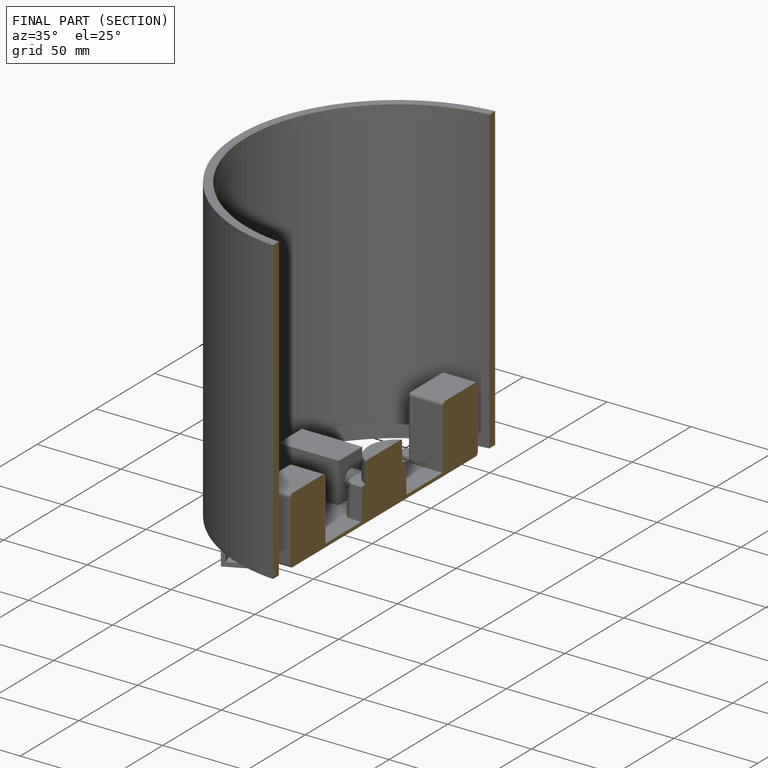
[diagram: finished part — half-section view (interior)]
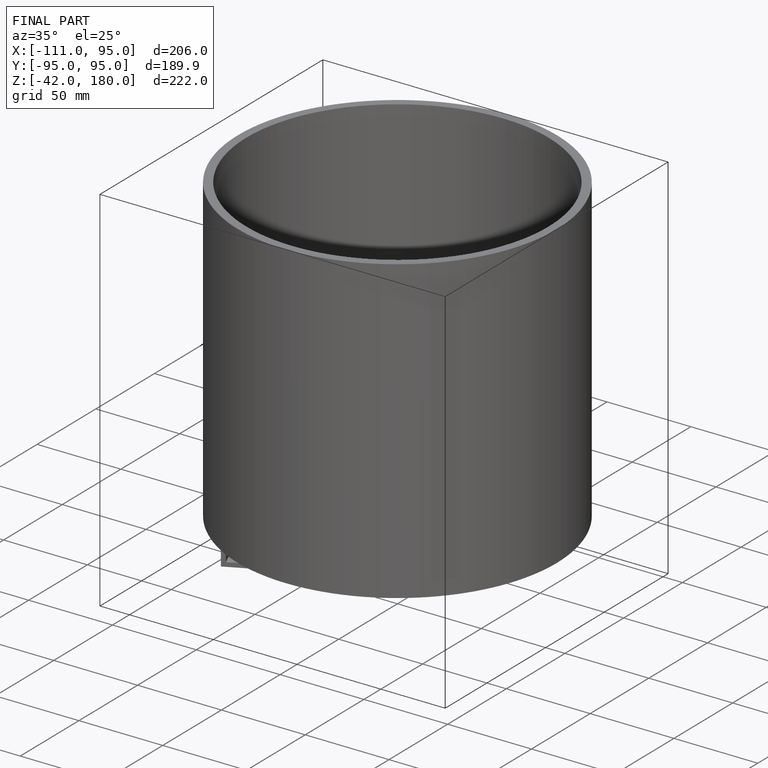
[diagram: finished part — iso view with bounding-box wireframe]
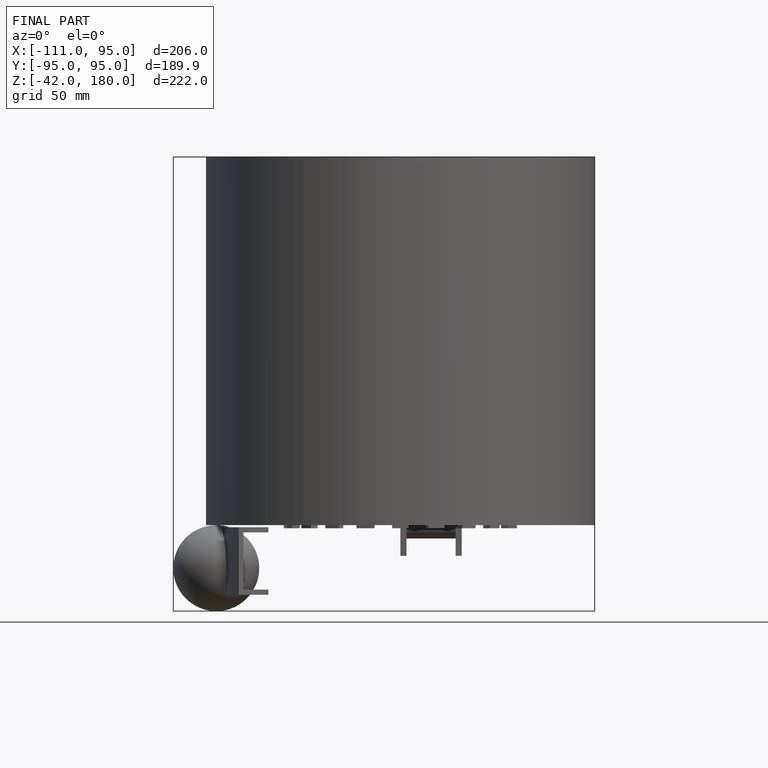
[diagram: finished part — front view with bounding-box wireframe]
